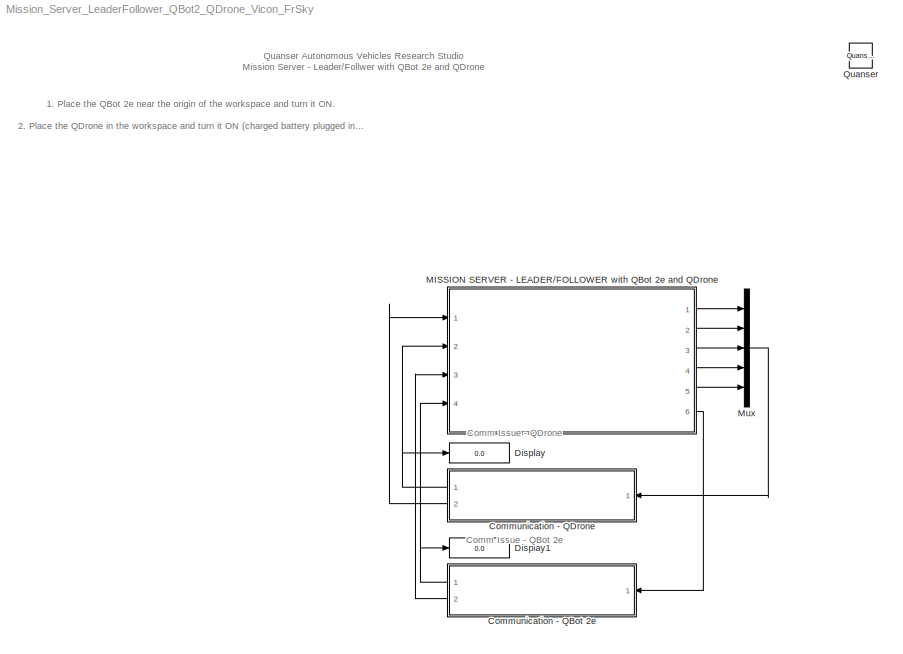
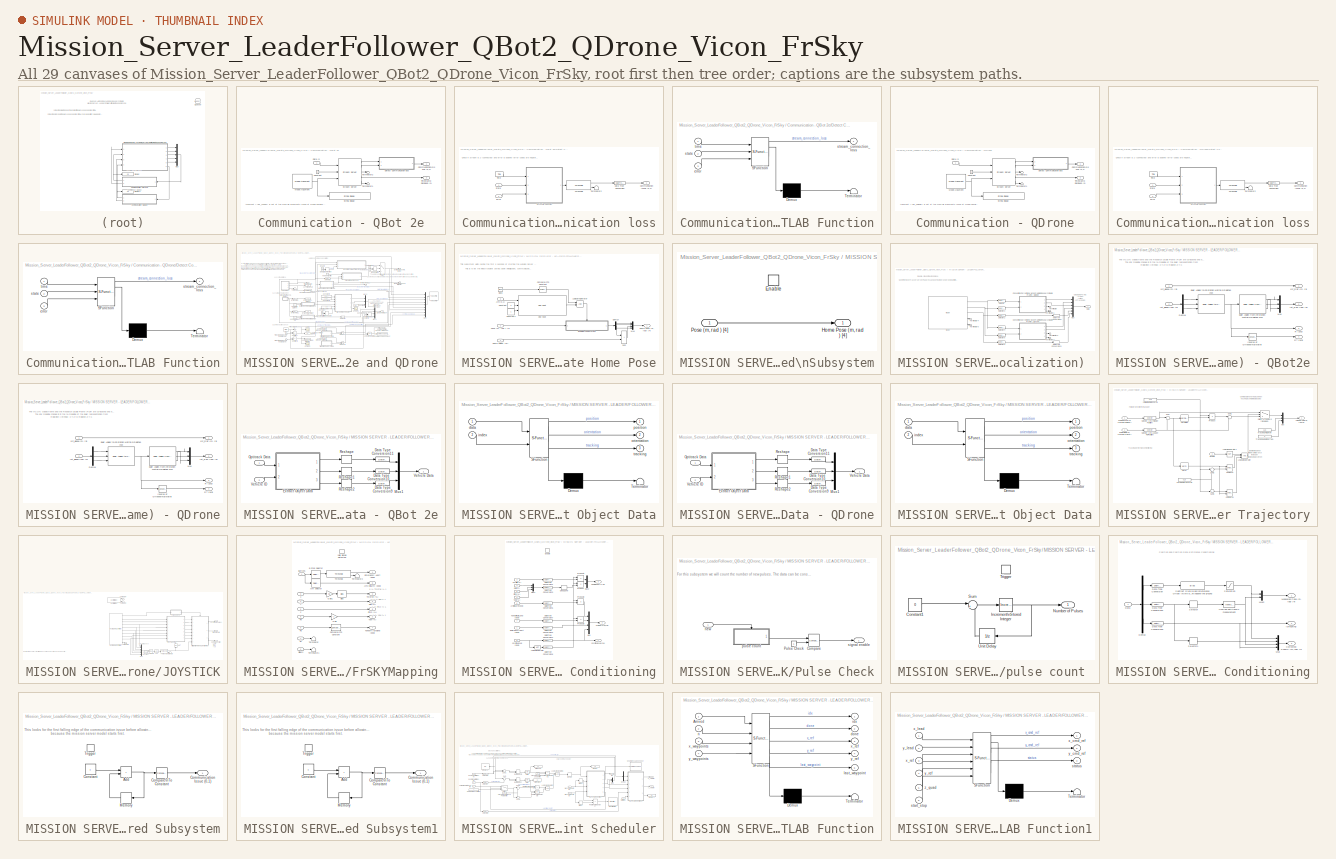
[diagram: thumbnail index - all 29 canvases of the model, root first then tree order]
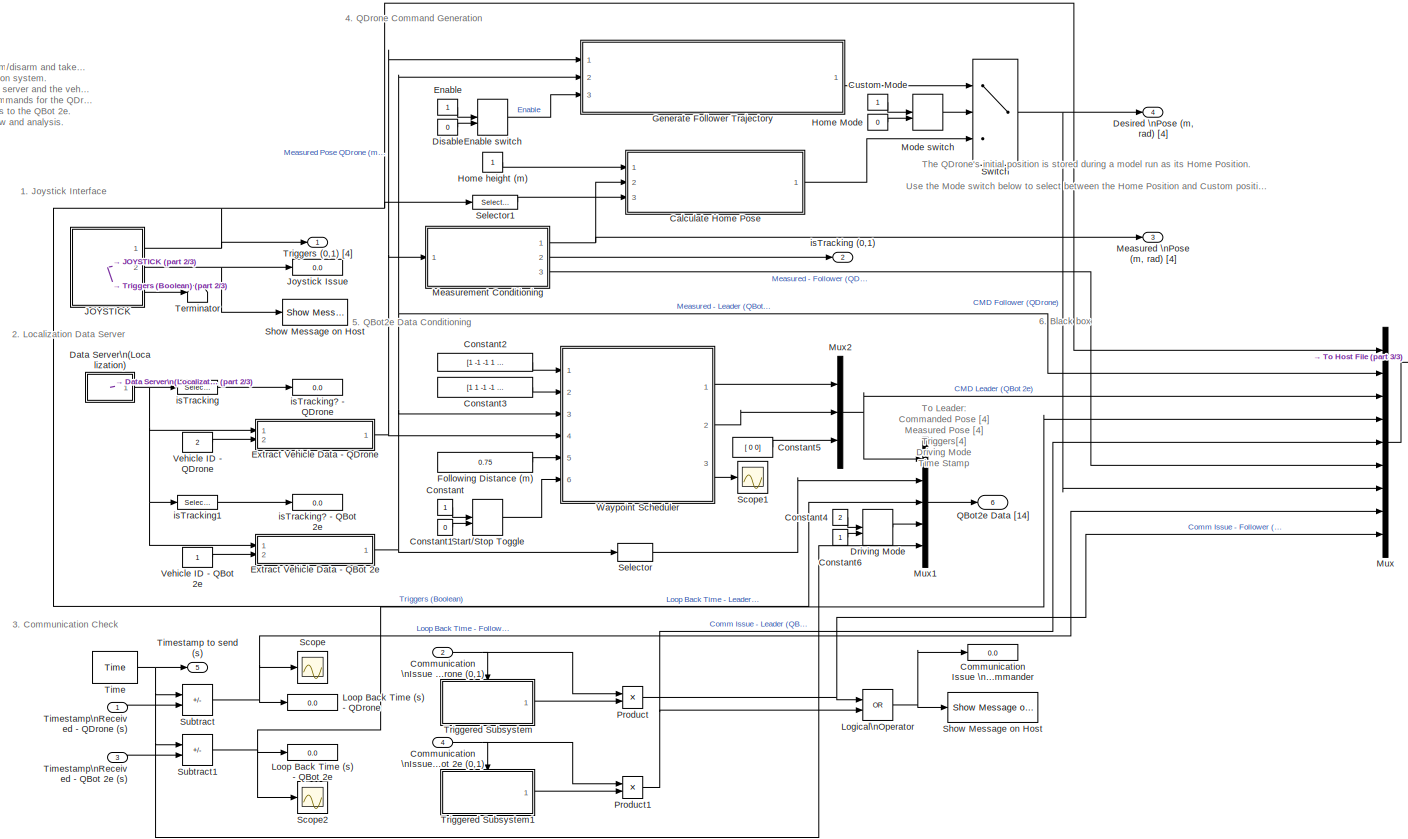
[diagram: MISSION SERVER - LEADER/FOLLOWER with QBot 2e and QDrone - part 1/3, most of the canvas]
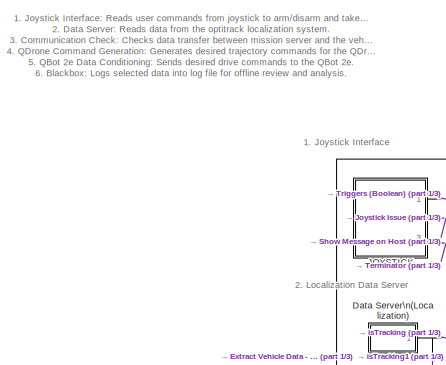
[diagram: MISSION SERVER - LEADER/FOLLOWER with QBot 2e and QDrone - part 2/3, top left region]
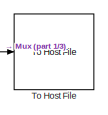
[diagram: MISSION SERVER - LEADER/FOLLOWER with QBot 2e and QDrone - part 3/3, middle right region]
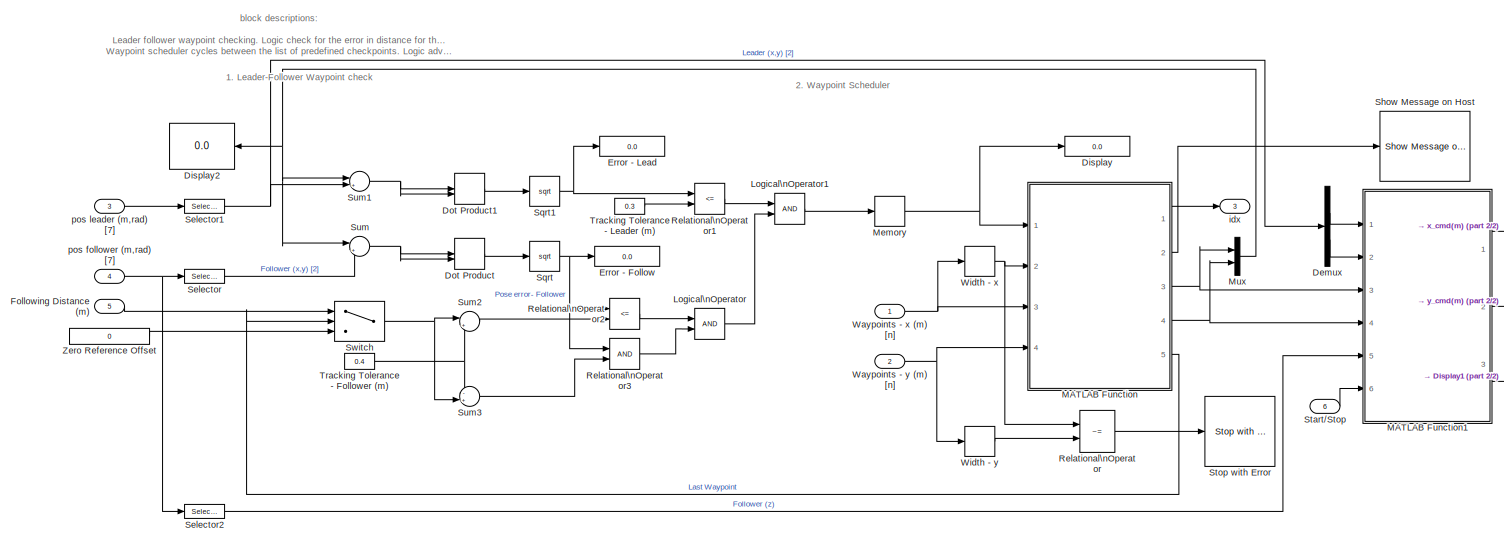
[diagram: MISSION SERVER - LEADER/FOLLOWER with QBot 2e and QDrone/Waypoint Scheduler - part 1/2, most of the canvas]
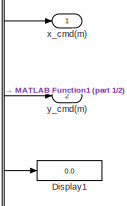
[diagram: MISSION SERVER - LEADER/FOLLOWER with QBot 2e and QDrone/Waypoint Scheduler - part 2/2, middle right region]
MODEL Mission_Server_LeaderFollower_QBot2_QDrone_Vicon_FrSky
KIND model
BLOCK [SubSystem] Communication - QBot 2e
  Ports = [1, 2]
  RequestExecContextInheritance = off
  SID = 5371
BLOCK [Outport] Communication - QBot 2e/Communication\nIssue (0,1)
  SID = 5389
  VectorParamsAs1DForOutWhenUnconnected = off
BLOCK [Constant] Communication - QBot 2e/Constant
  SID = 5373
BLOCK [Inport] Communication - QBot 2e/Data In
  SID = 5372
BLOCK [SubSystem] Communication - QBot 2e/Detect Communication loss
  Ports = [2, 1]
  RequestExecContextInheritance = off
  SID = 5374
BLOCK [Outport] Communication - QBot 2e/Detect Communication loss/Communication Issue (0,1)
  SID = 5382
  VectorParamsAs1DForOutWhenUnconnected = off
BLOCK [DataTypeConversion] Communication - QBot 2e/Detect Communication loss/Data Type Conversion
  RndMeth = Floor
  SID = 5377
  SaturateOnIntegerOverflow = off
BLOCK [Inport] Communication - QBot 2e/Detect Communication loss/Error
  NameLocation = top
  Port = 2
  SID = 5376
BLOCK [SubSystem] Communication - QBot 2e/Detect Communication loss/MATLAB Function
  ErrorFcn = Stateflow.Translate.translate
  PermitHierarchicalResolution = ExplicitOnly
  Ports = [3, 1]
  RequestExecContextInheritance = off
  SFBlockType = MATLAB Function
  SID = 5378
  TreatAsAtomicUnit = on
BLOCK [Demux] Communication - QBot 2e/Detect Communication loss/MATLAB Function/ Demux 
  Outputs = 1
  Ports = [1, 1]
  SID = 5378::104
BLOCK [S-Function] Communication - QBot 2e/Detect Communication loss/MATLAB Function/ SFunction 
  EnableBusSupport = off
  FunctionName = sf_sfun
  PortCounts = [3 2]
  Ports = [3, 2]
  SFcnIsStateOwnerBlock = off
  SFunctionDeploymentMode = off
  SID = 5378::103
  Tag = Stateflow S-Function 4
BLOCK [Terminator] Communication - QBot 2e/Detect Communication loss/MATLAB Function/ Terminator 
  SID = 5378::105
BLOCK [Inport] Communication - QBot 2e/Detect Communication loss/MATLAB Function/error
  Port = 3
  SID = 5378::23
BLOCK [Inport] Communication - QBot 2e/Detect Communication loss/MATLAB Function/state
  Port = 2
  SID = 5378::22
BLOCK [Outport] Communication - QBot 2e/Detect Communication loss/MATLAB Function/stream_connection_loss
  SID = 5378::5
  VectorParamsAs1DForOutWhenUnconnected = off
BLOCK [Inport] Communication - QBot 2e/Detect Communication loss/MATLAB Function/time
  SID = 5378::1
BLOCK [Inport] Communication - QBot 2e/Detect Communication loss/State
  NameLocation = top
  SID = 5375
BLOCK [Terminator] Communication - QBot 2e/Detect Communication loss/Terminator2
  SID = 5379
BLOCK [Reference] Communication - QBot 2e/Detect Communication loss/Threshold  REF=quarc_library/Discontinuities/Threshold
  Ports = [1, 2]
  SID = 5380
  SourceBlock = quarc_library/Discontinuities/Threshold
  SourceProductName = QUARC Targets
  SourceType = Threshold
  duration = 0.1
  operator = >=
  param_src = Specify via dialog
  threshold = 0.5
BLOCK [Reference] Communication - QBot 2e/Detect Communication loss/Time  REF=quarc_library/Sources/Time/Time
  MultiThreadCoSim = auto
  NameLocation = top
  Ports = [0, 1]
  SID = 5381
  SourceBlock = quarc_library/Sources/Time/Time
  SourceProductName = QUARC Targets
  SourceType = Time
  sample_time = qc_get_step_size
  time_source = Wall clock
BLOCK [Reference] Communication - QBot 2e/Model Argument  REF=quarc_library/Sources/Signals/Model Argument
  AttributesFormatString = (-%<argument_name>)
  MultiThreadCoSim = auto
  Ports = [0, 1]
  SID = 5384
  SourceBlock = quarc_library/Sources/Signals/Model Argument
  SourceProductName = QUARC Targets
  SourceType = Model Argument
  argument_name = URI_Leader
  data_type = char
  data_type_mode = Specify via dialog
  default_string = tcpip://localhost:18001
  default_value = 0
  has_value = on
  max_length = 80
  variable_size = off
BLOCK [Reference] Communication - QBot 2e/Stream Server  REF=quarc_library/Communications/Basic/Stream Server
  MultiThreadCoSim = auto
  Ports = [3, 5]
  SID = 5385
  SourceBlock = quarc_library/Communications/Basic/Stream Server
  SourceProductName = QUARC Targets
  SourceType = Stream Server
  active = off
  apply_uri_to_all_configs = off
  byte_order = little endian (Intel - LSB first)
  data_type = Inherited via back propagation
  default_value = [0]
  implementation = Use blocking I/O in a separate thread
  max_dimensions = -1
  optimization = Minimum latency
  receive_buffer_size = 1460
  receive_dimensions = off
  receive_fifo_size = 1000
  receive_options = Receive most recent data
  receive_priority = 0
  sample_time = qc_get_step_size
  send_buffer_size = 1460
  send_dimensions = off
  send_fifo_size = 1000
  send_options = Send most recent data
  send_priority = 0
  type_expr = BusObject
  uri = tcpip://localhost:18877
  uri_source = External input port
BLOCK [Reference] Communication - QBot 2e/String Display   REF=quarc_library/Strings/String Display
  MultiThreadCoSim = auto
  Ports = [1]
  SID = 5386
  SourceBlock = quarc_library/Strings/String Display
  SourceProductName = QUARC Targets
  SourceType = String Display
  alignment = center
  display_mode = Single line
  sample_time = -1
  use_new = off
BLOCK [Terminator] Communication - QBot 2e/Terminator1
  SID = 5387
BLOCK [Terminator] Communication - QBot 2e/Terminator2
  SID = 5388
BLOCK [Outport] Communication - QBot 2e/Timestamp Received (s)
  Port = 2
  SID = 5390
  VectorParamsAs1DForOutWhenUnconnected = off
BLOCK [SubSystem] Communication - QDrone
  Ports = [1, 2]
  RequestExecContextInheritance = off
  SID = 5350
BLOCK [Outport] Communication - QDrone/Communication\nIssue (0,1)
  SID = 5368
  VectorParamsAs1DForOutWhenUnconnected = off
BLOCK [Constant] Communication - QDrone/Constant
  SID = 5352
BLOCK [Inport] Communication - QDrone/Data In
  SID = 5351
BLOCK [SubSystem] Communication - QDrone/Detect Communication loss
  Ports = [2, 1]
  RequestExecContextInheritance = off
  SID = 5353
BLOCK [Outport] Communication - QDrone/Detect Communication loss/Communication Issue (0,1)
  SID = 5361
  VectorParamsAs1DForOutWhenUnconnected = off
BLOCK [DataTypeConversion] Communication - QDrone/Detect Communication loss/Data Type Conversion
  RndMeth = Floor
  SID = 5356
  SaturateOnIntegerOverflow = off
BLOCK [Inport] Communication - QDrone/Detect Communication loss/Error
  NameLocation = top
  Port = 2
  SID = 5355
BLOCK [SubSystem] Communication - QDrone/Detect Communication loss/MATLAB Function
  ErrorFcn = Stateflow.Translate.translate
  PermitHierarchicalResolution = ExplicitOnly
  Ports = [3, 1]
  RequestExecContextInheritance = off
  SFBlockType = MATLAB Function
  SID = 5357
  TreatAsAtomicUnit = on
BLOCK [Demux] Communication - QDrone/Detect Communication loss/MATLAB Function/ Demux 
  Outputs = 1
  Ports = [1, 1]
  SID = 5357::104
BLOCK [S-Function] Communication - QDrone/Detect Communication loss/MATLAB Function/ SFunction 
  EnableBusSupport = off
  FunctionName = sf_sfun
  PortCounts = [3 2]
  Ports = [3, 2]
  SFcnIsStateOwnerBlock = off
  SFunctionDeploymentMode = off
  SID = 5357::103
  Tag = Stateflow S-Function 3
BLOCK [Terminator] Communication - QDrone/Detect Communication loss/MATLAB Function/ Terminator 
  SID = 5357::105
BLOCK [Inport] Communication - QDrone/Detect Communication loss/MATLAB Function/error
  Port = 3
  SID = 5357::23
BLOCK [Inport] Communication - QDrone/Detect Communication loss/MATLAB Function/state
  Port = 2
  SID = 5357::22
BLOCK [Outport] Communication - QDrone/Detect Communication loss/MATLAB Function/stream_connection_loss
  SID = 5357::5
  VectorParamsAs1DForOutWhenUnconnected = off
BLOCK [Inport] Communication - QDrone/Detect Communication loss/MATLAB Function/time
  SID = 5357::1
BLOCK [Inport] Communication - QDrone/Detect Communication loss/State
  NameLocation = top
  SID = 5354
BLOCK [Terminator] Communication - QDrone/Detect Communication loss/Terminator2
  SID = 5358
BLOCK [Reference] Communication - QDrone/Detect Communication loss/Threshold  REF=quarc_library/Discontinuities/Threshold
  Ports = [1, 2]
  SID = 5359
  SourceBlock = quarc_library/Discontinuities/Threshold
  SourceProductName = QUARC Targets
  SourceType = Threshold
  duration = 0.1
  operator = >=
  param_src = Specify via dialog
  threshold = 0.5
BLOCK [Reference] Communication - QDrone/Detect Communication loss/Time  REF=quarc_library/Sources/Time/Time
  MultiThreadCoSim = auto
  NameLocation = top
  Ports = [0, 1]
  SID = 5360
  SourceBlock = quarc_library/Sources/Time/Time
  SourceProductName = QUARC Targets
  SourceType = Time
  sample_time = qc_get_step_size
  time_source = Wall clock
BLOCK [Reference] Communication - QDrone/Model Argument  REF=quarc_library/Sources/Signals/Model Argument
  AttributesFormatString = (-%<argument_name>)
  MultiThreadCoSim = auto
  Ports = [0, 1]
  SID = 5363
  SourceBlock = quarc_library/Sources/Signals/Model Argument
  SourceProductName = QUARC Targets
  SourceType = Model Argument
  argument_name = URI_Follower
  data_type = char
  data_type_mode = Specify via dialog
  default_string = tcpip://localhost:18002
  default_value = 0
  has_value = on
  max_length = 80
  variable_size = off
BLOCK [Reference] Communication - QDrone/Stream Server  REF=quarc_library/Communications/Basic/Stream Server
  MultiThreadCoSim = auto
  Ports = [3, 5]
  SID = 5364
  SourceBlock = quarc_library/Communications/Basic/Stream Server
  SourceProductName = QUARC Targets
  SourceType = Stream Server
  active = off
  apply_uri_to_all_configs = off
  byte_order = little endian (Intel - LSB first)
  data_type = Inherited via back propagation
  default_value = zeros(1,1)
  implementation = Use blocking I/O in a separate thread
  max_dimensions = -1
  optimization = Minimum latency
  receive_buffer_size = 1460
  receive_dimensions = off
  receive_fifo_size = 1000
  receive_options = Receive most recent data
  receive_priority = 0
  sample_time = qc_get_step_size
  send_buffer_size = 1460
  send_dimensions = off
  send_fifo_size = 1000
  send_options = Send most recent data
  send_priority = 0
  type_expr = BusObject
  uri = tcpip://localhost:18877
  uri_source = External input port
BLOCK [Reference] Communication - QDrone/String Display   REF=quarc_library/Strings/String Display
  MultiThreadCoSim = auto
  Ports = [1]
  SID = 5365
  SourceBlock = quarc_library/Strings/String Display
  SourceProductName = QUARC Targets
  SourceType = String Display
  alignment = center
  display_mode = Single line
  sample_time = -1
  use_new = off
BLOCK [Terminator] Communication - QDrone/Terminator1
  SID = 5366
BLOCK [Terminator] Communication - QDrone/Terminator2
  SID = 5367
BLOCK [Outport] Communication - QDrone/Timestamp Received (s)
  Port = 2
  SID = 5369
  VectorParamsAs1DForOutWhenUnconnected = off
BLOCK [Display] Display
  Decimation = 1
  Ports = [1]
  SID = 4490
BLOCK [Display] Display1
  Decimation = 1
  Ports = [1]
  SID = 4815
BLOCK [SubSystem] MISSION SERVER - LEADER//FOLLOWER with QBot 2e and QDrone
  Ports = [4, 6]
  RequestExecContextInheritance = off
  SID = 4279
BLOCK [SubSystem] MISSION SERVER - LEADER//FOLLOWER with QBot 2e and QDrone/Calculate Home Pose
  Ports = [3, 1]
  RequestExecContextInheritance = off
  SID = 5217
BLOCK [Inport] MISSION SERVER - LEADER//FOLLOWER with QBot 2e and QDrone/Calculate Home Pose/Arm(0,1)
  Port = 3
  SID = 5220
BLOCK [Clock] MISSION SERVER - LEADER//FOLLOWER with QBot 2e and QDrone/Calculate Home Pose/Clock
  SID = 5221
BLOCK [Reference] MISSION SERVER - LEADER//FOLLOWER with QBot 2e and QDrone/Calculate Home Pose/Compare\nTo Constant  REF=simulink/Logic and Bit\nOperations/Compare\nTo Constant
  OutDataTypeStr = boolean
  Ports = [1, 1]
  SID = 5222
  SourceBlock = simulink/Logic and Bit\nOperations/Compare\nTo Constant
  SourceProductBaseCode = SL
  SourceType = Compare To Constant
  ZeroCross = on
  const = 5
  relop = >
BLOCK [Constant] MISSION SERVER - LEADER//FOLLOWER with QBot 2e and QDrone/Calculate Home Pose/Constant
  SID = 5223
  Value = 0
BLOCK [Constant] MISSION SERVER - LEADER//FOLLOWER with QBot 2e and QDrone/Calculate Home Pose/Constant1
  SID = 5224
BLOCK [Demux] MISSION SERVER - LEADER//FOLLOWER with QBot 2e and QDrone/Calculate Home Pose/Demux
  Ports = [1, 4]
  SID = 5225
BLOCK [SubSystem] MISSION SERVER - LEADER//FOLLOWER with QBot 2e and QDrone/Calculate Home Pose/Enabled\nSubsystem
  Ports = [1, 1, 1]
  RequestExecContextInheritance = off
  SID = 5226
  TreatAsAtomicUnit = on
BLOCK [EnablePort] MISSION SERVER - LEADER//FOLLOWER with QBot 2e and QDrone/Calculate Home Pose/Enabled\nSubsystem/Enable
  Ports = []
  SID = 5228
BLOCK [Outport] MISSION SERVER - LEADER//FOLLOWER with QBot 2e and QDrone/Calculate Home Pose/Enabled\nSubsystem/Home Pose (m, rad ) [4]
  SID = 5229
  VectorParamsAs1DForOutWhenUnconnected = off
BLOCK [Inport] MISSION SERVER - LEADER//FOLLOWER with QBot 2e and QDrone/Calculate Home Pose/Enabled\nSubsystem/Pose (m, rad ) [4] 
  SID = 5227
BLOCK [Outport] MISSION SERVER - LEADER//FOLLOWER with QBot 2e and QDrone/Calculate Home Pose/Home Pose (m, rad) [4]
  SID = 5234
  VectorParamsAs1DForOutWhenUnconnected = off
BLOCK [Inport] MISSION SERVER - LEADER//FOLLOWER with QBot 2e and QDrone/Calculate Home Pose/Home height (m)
  SID = 5218
BLOCK [Logic] MISSION SERVER - LEADER//FOLLOWER with QBot 2e and QDrone/Calculate Home Pose/Logical\nOperator
  AllPortsSameDT = off
  OutDataTypeStr = boolean
  Ports = [2, 1]
  SID = 5230
BLOCK [Mux] MISSION SERVER - LEADER//FOLLOWER with QBot 2e and QDrone/Calculate Home Pose/Mux
  DisplayOption = bar
  Ports = [4, 1]
  SID = 5231
BLOCK [Reference] MISSION SERVER - LEADER//FOLLOWER with QBot 2e and QDrone/Calculate Home Pose/One Shot  REF=quarc_library/Discontinuities/One Shot
  Ports = [3, 1]
  SID = 5232
  SourceBlock = quarc_library/Discontinuities/One Shot
  SourceProductName = QUARC Targets
  SourceType = One Shot
  pulse_width = 1/qc_get_step_size
  redun_pulse = Ignore extraneous pulse
  trigger_type = Rising edge
  width_source = Specify via dialog
BLOCK [Inport] MISSION SERVER - LEADER//FOLLOWER with QBot 2e and QDrone/Calculate Home Pose/Pose (m, rad ) [4]
  Port = 2
  SID = 5219
BLOCK [Sum] MISSION SERVER - LEADER//FOLLOWER with QBot 2e and QDrone/Calculate Home Pose/Sum
  IconShape = rectangular
  Ports = [2, 1]
  SID = 5233
BLOCK [Display] MISSION SERVER - LEADER//FOLLOWER with QBot 2e and QDrone/Communication Issue \nwith Commander
  Decimation = 1
  Ports = [1]
  SID = 4298
BLOCK [Inport] MISSION SERVER - LEADER//FOLLOWER with QBot 2e and QDrone/Communication \nIssue - QBot 2e (0,1)
  Port = 4
  SID = 4830
BLOCK [Inport] MISSION SERVER - LEADER//FOLLOWER with QBot 2e and QDrone/Communication \nIssue - QDrone (0,1)
  Port = 2
  SID = 4281
BLOCK [Constant] MISSION SERVER - LEADER//FOLLOWER with QBot 2e and QDrone/Constant
  SID = 5098
BLOCK [Constant] MISSION SERVER - LEADER//FOLLOWER with QBot 2e and QDrone/Constant1
  SID = 5099
  Value = 0
BLOCK [Constant] MISSION SERVER - LEADER//FOLLOWER with QBot 2e and QDrone/Constant2
  SID = 4934
  Value = [1 -1 -1 1 0]
BLOCK [Constant] MISSION SERVER - LEADER//FOLLOWER with QBot 2e and QDrone/Constant3
  SID = 4935
  Value = [1 1 -1 -1 0]
BLOCK [Constant] MISSION SERVER - LEADER//FOLLOWER with QBot 2e and QDrone/Constant4
  SID = 5162
  Value = 2
BLOCK [Constant] MISSION SERVER - LEADER//FOLLOWER with QBot 2e and QDrone/Constant5
  SID = 5164
  Value = [ 0 0]
BLOCK [Constant] MISSION SERVER - LEADER//FOLLOWER with QBot 2e and QDrone/Constant6
  SID = 5163
BLOCK [Constant] MISSION SERVER - LEADER//FOLLOWER with QBot 2e and QDrone/Custom Mode
  NameLocation = top
  SID = 4496
BLOCK [SubSystem] MISSION SERVER - LEADER//FOLLOWER with QBot 2e and QDrone/Data Server\n(Localization) 
  Ports = [0, 1]
  RequestExecContextInheritance = off
  SID = 5886
BLOCK [SubSystem] MISSION SERVER - LEADER//FOLLOWER with QBot 2e and QDrone/Data Server\n(Localization) /Convention Correction\n(Vicon Frame to Research Studio Frame) - QBot2e
  NameLocation = top
  Ports = [2, 4]
  RequestExecContextInheritance = off
  SID = 5887
BLOCK [Demux] MISSION SERVER - LEADER//FOLLOWER with QBot 2e and QDrone/Data Server\n(Localization) /Convention Correction\n(Vicon Frame to Research Studio Frame) - QBot2e/Demux
  Outputs = 3
  Ports = [1, 3]
  SID = 5890
BLOCK [Reference] MISSION SERVER - LEADER//FOLLOWER with QBot 2e and QDrone/Data Server\n(Localization) /Convention Correction\n(Vicon Frame to Research Studio Frame) - QBot2e/Euler Angles from\nRotation Matrix\n(Relative ZYX)  REF=quarc_library/Math Operations/Matrices/Euler Angles from\nRotation Matrix
  MultiThreadCoSim = auto
  Ports = [1, 3]
  SID = 5891
  SourceBlock = quarc_library/Math Operations/Matrices/Euler Angles from\nRotation Matrix
  SourceProductName = QUARC Targets
  SourceType = Euler Angles from Rotation Matrix
  menu_order = Relative Z-Y-X
BLOCK [Reference] MISSION SERVER - LEADER//FOLLOWER with QBot 2e and QDrone/Data Server\n(Localization) /Convention Correction\n(Vicon Frame to Research Studio Frame) - QBot2e/Euler Angles to\nRotation Matrix\n(Relative XYZ)  REF=quarc_library/Math Operations/Matrices/Euler Angles to\nRotation Matrix
  MultiThreadCoSim = auto
  Ports = [3, 1]
  SID = 5892
  SourceBlock = quarc_library/Math Operations/Matrices/Euler Angles to\nRotation Matrix
  SourceProductName = QUARC Targets
  SourceType = Euler Angles to Rotation Matrix
  menu_order = Relative X-Y-Z
BLOCK [Math] MISSION SERVER - LEADER//FOLLOWER with QBot 2e and QDrone/Data Server\n(Localization) /Convention Correction\n(Vicon Frame to Research Studio Frame) - QBot2e/Inverse of Orthonormal Matrix
  Operator = transpose
  Ports = [1, 1]
  SID = 5893
  SignedPower = on
BLOCK [Mux] MISSION SERVER - LEADER//FOLLOWER with QBot 2e and QDrone/Data Server\n(Localization) /Convention Correction\n(Vicon Frame to Research Studio Frame) - QBot2e/Mux
  DisplayOption = bar
  Inputs = 3
  Ports = [3, 1]
  SID = 5894
BLOCK [Outport] MISSION SERVER - LEADER//FOLLOWER with QBot 2e and QDrone/Data Server\n(Localization) /Convention Correction\n(Vicon Frame to Research Studio Frame) - QBot2e/R [3x3]
  Port = 3
  SID = 5897
  VectorParamsAs1DForOutWhenUnconnected = off
BLOCK [Outport] MISSION SERVER - LEADER//FOLLOWER with QBot 2e and QDrone/Data Server\n(Localization) /Convention Correction\n(Vicon Frame to Research Studio Frame) - QBot2e/RT [3x3]
  Port = 4
  SID = 5898
  VectorParamsAs1DForOutWhenUnconnected = off
BLOCK [Outport] MISSION SERVER - LEADER//FOLLOWER with QBot 2e and QDrone/Data Server\n(Localization) /Convention Correction\n(Vicon Frame to Research Studio Frame) - QBot2e/rot_RSF (rad) [3]
  Port = 2
  SID = 5896
  VectorParamsAs1DForOutWhenUnconnected = off
BLOCK [Inport] MISSION SERVER - LEADER//FOLLOWER with QBot 2e and QDrone/Data Server\n(Localization) /Convention Correction\n(Vicon Frame to Research Studio Frame) - QBot2e/rot_global (rad) [3]
  Port = 2
  SID = 5889
BLOCK [Outport] MISSION SERVER - LEADER//FOLLOWER with QBot 2e and QDrone/Data Server\n(Localization) /Convention Correction\n(Vicon Frame to Research Studio Frame) - QBot2e/xyz_RSF (m) [3]
  SID = 5895
  VectorParamsAs1DForOutWhenUnconnected = off
BLOCK [Inport] MISSION SERVER - LEADER//FOLLOWER with QBot 2e and QDrone/Data Server\n(Localization) /Convention Correction\n(Vicon Frame to Research Studio Frame) - QBot2e/xyz_global (m) [3]
  SID = 5888
BLOCK [SubSystem] MISSION SERVER - LEADER//FOLLOWER with QBot 2e and QDrone/Data Server\n(Localization) /Convention Correction\n(Vicon Frame to Research Studio Frame) - QDrone
  NameLocation = top
  Ports = [2, 4]
  RequestExecContextInheritance = off
  SID = 5900
BLOCK [Demux] MISSION SERVER - LEADER//FOLLOWER with QBot 2e and QDrone/Data Server\n(Localization) /Convention Correction\n(Vicon Frame to Research Studio Frame) - QDrone/Demux
  Outputs = 3
  Ports = [1, 3]
  SID = 5903
BLOCK [Reference] MISSION SERVER - LEADER//FOLLOWER with QBot 2e and QDrone/Data Server\n(Localization) /Convention Correction\n(Vicon Frame to Research Studio Frame) - QDrone/Euler Angles from\nRotation Matrix\n(Relative ZYX)  REF=quarc_library/Math Operations/Matrices/Euler Angles from\nRotation Matrix
  MultiThreadCoSim = auto
  Ports = [1, 3]
  SID = 5904
  SourceBlock = quarc_library/Math Operations/Matrices/Euler Angles from\nRotation Matrix
  SourceProductName = QUARC Targets
  SourceType = Euler Angles from Rotation Matrix
  menu_order = Relative Z-Y-X
BLOCK [Reference] MISSION SERVER - LEADER//FOLLOWER with QBot 2e and QDrone/Data Server\n(Localization) /Convention Correction\n(Vicon Frame to Research Studio Frame) - QDrone/Euler Angles to\nRotation Matrix\n(Relative XYZ)  REF=quarc_library/Math Operations/Matrices/Euler Angles to\nRotation Matrix
  MultiThreadCoSim = auto
  Ports = [3, 1]
  SID = 5905
  SourceBlock = quarc_library/Math Operations/Matrices/Euler Angles to\nRotation Matrix
  SourceProductName = QUARC Targets
  SourceType = Euler Angles to Rotation Matrix
  menu_order = Relative X-Y-Z
BLOCK [Math] MISSION SERVER - LEADER//FOLLOWER with QBot 2e and QDrone/Data Server\n(Localization) /Convention Correction\n(Vicon Frame to Research Studio Frame) - QDrone/Inverse of Orthonormal Matrix
  Operator = transpose
  Ports = [1, 1]
  SID = 5906
  SignedPower = on
BLOCK [Mux] MISSION SERVER - LEADER//FOLLOWER with QBot 2e and QDrone/Data Server\n(Localization) /Convention Correction\n(Vicon Frame to Research Studio Frame) - QDrone/Mux
  DisplayOption = bar
  Inputs = 3
  Ports = [3, 1]
  SID = 5907
BLOCK [Outport] MISSION SERVER - LEADER//FOLLOWER with QBot 2e and QDrone/Data Server\n(Localization) /Convention Correction\n(Vicon Frame to Research Studio Frame) - QDrone/R [3x3]
  Port = 3
  SID = 5910
  VectorParamsAs1DForOutWhenUnconnected = off
BLOCK [Outport] MISSION SERVER - LEADER//FOLLOWER with QBot 2e and QDrone/Data Server\n(Localization) /Convention Correction\n(Vicon Frame to Research Studio Frame) - QDrone/RT [3x3]
  Port = 4
  SID = 5911
  VectorParamsAs1DForOutWhenUnconnected = off
BLOCK [Outport] MISSION SERVER - LEADER//FOLLOWER with QBot 2e and QDrone/Data Server\n(Localization) /Convention Correction\n(Vicon Frame to Research Studio Frame) - QDrone/rot_RSF (rad) [3]
  Port = 2
  SID = 5909
  VectorParamsAs1DForOutWhenUnconnected = off
BLOCK [Inport] MISSION SERVER - LEADER//FOLLOWER with QBot 2e and QDrone/Data Server\n(Localization) /Convention Correction\n(Vicon Frame to Research Studio Frame) - QDrone/rot_global (rad) [3]
  Port = 2
  SID = 5902
BLOCK [Outport] MISSION SERVER - LEADER//FOLLOWER with QBot 2e and QDrone/Data Server\n(Localization) /Convention Correction\n(Vicon Frame to Research Studio Frame) - QDrone/xyz_RSF (m) [3]
  SID = 5908
  VectorParamsAs1DForOutWhenUnconnected = off
BLOCK [Inport] MISSION SERVER - LEADER//FOLLOWER with QBot 2e and QDrone/Data Server\n(Localization) /Convention Correction\n(Vicon Frame to Research Studio Frame) - QDrone/xyz_global (m) [3]
  SID = 5901
BLOCK [Outport] MISSION SERVER - LEADER//FOLLOWER with QBot 2e and QDrone/Data Server\n(Localization) /Data
  SID = 5929
  VectorParamsAs1DForOutWhenUnconnected = off
BLOCK [DataTypeConversion] MISSION SERVER - LEADER//FOLLOWER with QBot 2e and QDrone/Data Server\n(Localization) /Data Type Conversion2
  RndMeth = Floor
  SID = 5913
  SaturateOnIntegerOverflow = off
BLOCK [DataTypeConversion] MISSION SERVER - LEADER//FOLLOWER with QBot 2e and QDrone/Data Server\n(Localization) /Data Type Conversion3
  RndMeth = Floor
  SID = 5914
  SaturateOnIntegerOverflow = off
BLOCK [Mux] MISSION SERVER - LEADER//FOLLOWER with QBot 2e and QDrone/Data Server\n(Localization) /Mux
  DisplayOption = bar
  Inputs = 6
  Ports = [6, 1]
  SID = 5915
BLOCK [Selector] MISSION SERVER - LEADER//FOLLOWER with QBot 2e and QDrone/Data Server\n(Localization) /Selector
  IndexOptions = Index vector (dialog)
  Indices = [1:3]
  InputPortWidth = 6
  OutputSizes = 1
  Ports = [1, 1]
  SID = 5916
BLOCK [Selector] MISSION SERVER - LEADER//FOLLOWER with QBot 2e and QDrone/Data Server\n(Localization) /Selector1
  IndexOptions = Index vector (dialog)
  Indices = [1:3]
  InputPortWidth = 6
  OutputSizes = 1
  Ports = [1, 1]
  SID = 5917
BLOCK [Selector] MISSION SERVER - LEADER//FOLLOWER with QBot 2e and QDrone/Data Server\n(Localization) /Selector2
  IndexOptions = Index vector (dialog)
  Indices = [1]
  InputPortWidth = 2
  OutputSizes = 1
  Ports = [1, 1]
  SID = 5918
BLOCK [Selector] MISSION SERVER - LEADER//FOLLOWER with QBot 2e and QDrone/Data Server\n(Localization) /Selector3
  IndexOptions = Index vector (dialog)
  Indices = [2]
  InputPortWidth = 2
  OutputSizes = 1
  Ports = [1, 1]
  SID = 5919
BLOCK [Selector] MISSION SERVER - LEADER//FOLLOWER with QBot 2e and QDrone/Data Server\n(Localization) /Selector4
  IndexOptions = Index vector (dialog)
  Indices = [4:6]
  InputPortWidth = 6
  OutputSizes = 1
  Ports = [1, 1]
  SID = 5920
BLOCK [Selector] MISSION SERVER - LEADER//FOLLOWER with QBot 2e and QDrone/Data Server\n(Localization) /Selector5
  IndexOptions = Index vector (dialog)
  Indices = [4:6]
  InputPortWidth = 6
  OutputSizes = 1
  Ports = [1, 1]
  SID = 5921
BLOCK [Terminator] MISSION SERVER - LEADER//FOLLOWER with QBot 2e and QDrone/Data Server\n(Localization) /Terminator
  SID = 5922
BLOCK [Terminator] MISSION SERVER - LEADER//FOLLOWER with QBot 2e and QDrone/Data Server\n(Localization) /Terminator1
  SID = 5923
BLOCK [Terminator] MISSION SERVER - LEADER//FOLLOWER with QBot 2e and QDrone/Data Server\n(Localization) /Terminator2
  SID = 5924
BLOCK [Terminator] MISSION SERVER - LEADER//FOLLOWER with QBot 2e and QDrone/Data Server\n(Localization) /Terminator3
  SID = 5925
BLOCK [Terminator] MISSION SERVER - LEADER//FOLLOWER with QBot 2e and QDrone/Data Server\n(Localization) /Terminator4
  SID = 5926
BLOCK [Terminator] MISSION SERVER - LEADER//FOLLOWER with QBot 2e and QDrone/Data Server\n(Localization) /Terminator5
  SID = 5927
BLOCK [Reference] MISSION SERVER - LEADER//FOLLOWER with QBot 2e and QDrone/Data Server\n(Localization) /Vicon  REF=quarc_library/Devices/Third-Party/Vicon/Vicon
  MultiThreadCoSim = auto
  Ports = [0, 5]
  SID = 5928
  SourceBlock = quarc_library/Devices/Third-Party/Vicon/Vicon
  SourceProductName = QUARC Targets
  SourceType = Vicon
  active = on
  hostname = localhost:801
  marker_list = \\0
  num_markers = 0
  num_segments = 2
  sample_time = qc_get_step_size
  segment_list = ObjectName.ObjectName<path>
  stream_mode = 2
  unlabeled_markers = []
BLOCK [Outport] MISSION SERVER - LEADER//FOLLOWER with QBot 2e and QDrone/Desired \nPose (m, rad) [4]
  NameLocation = top
  Port = 4
  SID = 4480
  VectorParamsAs1DForOutWhenUnconnected = off
BLOCK [Constant] MISSION SERVER - LEADER//FOLLOWER with QBot 2e and QDrone/Disable
  SID = 4675
  Value = 0
BLOCK [ManualSwitch] MISSION SERVER - LEADER//FOLLOWER with QBot 2e and QDrone/Driving Mode
  CurrentSetting = 0
  SID = 5161
BLOCK [Constant] MISSION SERVER - LEADER//FOLLOWER with QBot 2e and QDrone/Enable
  NameLocation = top
  SID = 4676
BLOCK [ManualSwitch] MISSION SERVER - LEADER//FOLLOWER with QBot 2e and QDrone/Enable switch
  CurrentSetting = 0
  NameLocation = top
  SID = 4677
BLOCK [SubSystem] MISSION SERVER - LEADER//FOLLOWER with QBot 2e and QDrone/Extract Vehicle Data - QBot 2e
  Ports = [2, 1]
  RequestExecContextInheritance = off
  SID = 4744
BLOCK [DataTypeConversion] MISSION SERVER - LEADER//FOLLOWER with QBot 2e and QDrone/Extract Vehicle Data - QBot 2e/Data Type Conversion10
  RndMeth = Floor
  SID = 4747
  SaturateOnIntegerOverflow = off
BLOCK [DataTypeConversion] MISSION SERVER - LEADER//FOLLOWER with QBot 2e and QDrone/Extract Vehicle Data - QBot 2e/Data Type Conversion11
  RndMeth = Floor
  SID = 4748
  SaturateOnIntegerOverflow = off
BLOCK [DataTypeConversion] MISSION SERVER - LEADER//FOLLOWER with QBot 2e and QDrone/Extract Vehicle Data - QBot 2e/Data Type Conversion9
  RndMeth = Floor
  SID = 4749
  SaturateOnIntegerOverflow = off
BLOCK [SubSystem] MISSION SERVER - LEADER//FOLLOWER with QBot 2e and QDrone/Extract Vehicle Data - QBot 2e/Extract Object Data
  ErrorFcn = Stateflow.Translate.translate
  PermitHierarchicalResolution = ExplicitOnly
  Ports = [2, 3]
  RequestExecContextInheritance = off
  SFBlockType = MATLAB Function
  SID = 4750
  TreatAsAtomicUnit = on
BLOCK [Demux] MISSION SERVER - LEADER//FOLLOWER with QBot 2e and QDrone/Extract Vehicle Data - QBot 2e/Extract Object Data/ Demux 
  Outputs = 1
  Ports = [1, 1]
  SID = 4750::80
BLOCK [S-Function] MISSION SERVER - LEADER//FOLLOWER with QBot 2e and QDrone/Extract Vehicle Data - QBot 2e/Extract Object Data/ SFunction 
  EnableBusSupport = off
  FunctionName = sf_sfun
  PortCounts = [2 4]
  Ports = [2, 4]
  SFcnIsStateOwnerBlock = off
  SFunctionDeploymentMode = off
  SID = 4750::79
  Tag = Stateflow S-Function 1
BLOCK [Terminator] MISSION SERVER - LEADER//FOLLOWER with QBot 2e and QDrone/Extract Vehicle Data - QBot 2e/Extract Object Data/ Terminator 
  SID = 4750::81
BLOCK [Inport] MISSION SERVER - LEADER//FOLLOWER with QBot 2e and QDrone/Extract Vehicle Data - QBot 2e/Extract Object Data/data
  SID = 4750::1
BLOCK [Inport] MISSION SERVER - LEADER//FOLLOWER with QBot 2e and QDrone/Extract Vehicle Data - QBot 2e/Extract Object Data/index
  Port = 2
  SID = 4750::19
BLOCK [Outport] MISSION SERVER - LEADER//FOLLOWER with QBot 2e and QDrone/Extract Vehicle Data - QBot 2e/Extract Object Data/orientation
  Port = 2
  SID = 4750::21
  VectorParamsAs1DForOutWhenUnconnected = off
BLOCK [Outport] MISSION SERVER - LEADER//FOLLOWER with QBot 2e and QDrone/Extract Vehicle Data - QBot 2e/Extract Object Data/position
  SID = 4750::5
  VectorParamsAs1DForOutWhenUnconnected = off
BLOCK [Outport] MISSION SERVER - LEADER//FOLLOWER with QBot 2e and QDrone/Extract Vehicle Data - QBot 2e/Extract Object Data/tracking
  Port = 3
  SID = 4750::20
  VectorParamsAs1DForOutWhenUnconnected = off
BLOCK [Mux] MISSION SERVER - LEADER//FOLLOWER with QBot 2e and QDrone/Extract Vehicle Data - QBot 2e/Mux1
  DisplayOption = bar
  Inputs = 3
  Ports = [3, 1]
  SID = 4751
BLOCK [Inport] MISSION SERVER - LEADER//FOLLOWER with QBot 2e and QDrone/Extract Vehicle Data - QBot 2e/Optitrack Data
  SID = 4745
BLOCK [Reshape] MISSION SERVER - LEADER//FOLLOWER with QBot 2e and QDrone/Extract Vehicle Data - QBot 2e/Reshape
  Ports = [1, 1]
  SID = 4752
BLOCK [Reshape] MISSION SERVER - LEADER//FOLLOWER with QBot 2e and QDrone/Extract Vehicle Data - QBot 2e/Reshape1
  Ports = [1, 1]
  SID = 4753
BLOCK [Reshape] MISSION SERVER - LEADER//FOLLOWER with QBot 2e and QDrone/Extract Vehicle Data - QBot 2e/Reshape2
  Ports = [1, 1]
  SID = 4754
BLOCK [Outport] MISSION SERVER - LEADER//FOLLOWER with QBot 2e and QDrone/Extract Vehicle Data - QBot 2e/Vehicle Data
  SID = 4755
  VectorParamsAs1DForOutWhenUnconnected = off
BLOCK [Inport] MISSION SERVER - LEADER//FOLLOWER with QBot 2e and QDrone/Extract Vehicle Data - QBot 2e/Vehicle ID
  Port = 2
  SID = 4746
BLOCK [SubSystem] MISSION SERVER - LEADER//FOLLOWER with QBot 2e and QDrone/Extract Vehicle Data - QDrone
  Ports = [2, 1]
  RequestExecContextInheritance = off
  SID = 5176
BLOCK [DataTypeConversion] MISSION SERVER - LEADER//FOLLOWER with QBot 2e and QDrone/Extract Vehicle Data - QDrone/Data Type Conversion10
  RndMeth = Floor
  SID = 5179
  SaturateOnIntegerOverflow = off
BLOCK [DataTypeConversion] MISSION SERVER - LEADER//FOLLOWER with QBot 2e and QDrone/Extract Vehicle Data - QDrone/Data Type Conversion11
  RndMeth = Floor
  SID = 5180
  SaturateOnIntegerOverflow = off
BLOCK [DataTypeConversion] MISSION SERVER - LEADER//FOLLOWER with QBot 2e and QDrone/Extract Vehicle Data - QDrone/Data Type Conversion9
  RndMeth = Floor
  SID = 5181
  SaturateOnIntegerOverflow = off
BLOCK [SubSystem] MISSION SERVER - LEADER//FOLLOWER with QBot 2e and QDrone/Extract Vehicle Data - QDrone/Extract Object Data
  ErrorFcn = Stateflow.Translate.translate
  PermitHierarchicalResolution = ExplicitOnly
  Ports = [2, 3]
  RequestExecContextInheritance = off
  SFBlockType = MATLAB Function
  SID = 5182
  TreatAsAtomicUnit = on
BLOCK [Demux] MISSION SERVER - LEADER//FOLLOWER with QBot 2e and QDrone/Extract Vehicle Data - QDrone/Extract Object Data/ Demux 
  Outputs = 1
  Ports = [1, 1]
  SID = 5182::80
BLOCK [S-Function] MISSION SERVER - LEADER//FOLLOWER with QBot 2e and QDrone/Extract Vehicle Data - QDrone/Extract Object Data/ SFunction 
  EnableBusSupport = off
  FunctionName = sf_sfun
  PortCounts = [2 4]
  Ports = [2, 4]
  SFcnIsStateOwnerBlock = off
  SFunctionDeploymentMode = off
  SID = 5182::79
  Tag = Stateflow S-Function 2
BLOCK [Terminator] MISSION SERVER - LEADER//FOLLOWER with QBot 2e and QDrone/Extract Vehicle Data - QDrone/Extract Object Data/ Terminator 
  SID = 5182::81
BLOCK [Inport] MISSION SERVER - LEADER//FOLLOWER with QBot 2e and QDrone/Extract Vehicle Data - QDrone/Extract Object Data/data
  SID = 5182::1
BLOCK [Inport] MISSION SERVER - LEADER//FOLLOWER with QBot 2e and QDrone/Extract Vehicle Data - QDrone/Extract Object Data/index
  Port = 2
  SID = 5182::19
BLOCK [Outport] MISSION SERVER - LEADER//FOLLOWER with QBot 2e and QDrone/Extract Vehicle Data - QDrone/Extract Object Data/orientation
  Port = 2
  SID = 5182::21
  VectorParamsAs1DForOutWhenUnconnected = off
BLOCK [Outport] MISSION SERVER - LEADER//FOLLOWER with QBot 2e and QDrone/Extract Vehicle Data - QDrone/Extract Object Data/position
  SID = 5182::5
  VectorParamsAs1DForOutWhenUnconnected = off
BLOCK [Outport] MISSION SERVER - LEADER//FOLLOWER with QBot 2e and QDrone/Extract Vehicle Data - QDrone/Extract Object Data/tracking
  Port = 3
  SID = 5182::20
  VectorParamsAs1DForOutWhenUnconnected = off
BLOCK [Mux] MISSION SERVER - LEADER//FOLLOWER with QBot 2e and QDrone/Extract Vehicle Data - QDrone/Mux1
  DisplayOption = bar
  Inputs = 3
  Ports = [3, 1]
  SID = 5183
BLOCK [Inport] MISSION SERVER - LEADER//FOLLOWER with QBot 2e and QDrone/Extract Vehicle Data - QDrone/Optitrack Data
  SID = 5177
BLOCK [Reshape] MISSION SERVER - LEADER//FOLLOWER with QBot 2e and QDrone/Extract Vehicle Data - QDrone/Reshape
  Ports = [1, 1]
  SID = 5184
BLOCK [Reshape] MISSION SERVER - LEADER//FOLLOWER with QBot 2e and QDrone/Extract Vehicle Data - QDrone/Reshape1
  Ports = [1, 1]
  SID = 5185
BLOCK [Reshape] MISSION SERVER - LEADER//FOLLOWER with QBot 2e and QDrone/Extract Vehicle Data - QDrone/Reshape2
  Ports = [1, 1]
  SID = 5186
BLOCK [Outport] MISSION SERVER - LEADER//FOLLOWER with QBot 2e and QDrone/Extract Vehicle Data - QDrone/Vehicle Data
  SID = 5187
  VectorParamsAs1DForOutWhenUnconnected = off
BLOCK [Inport] MISSION SERVER - LEADER//FOLLOWER with QBot 2e and QDrone/Extract Vehicle Data - QDrone/Vehicle ID
  Port = 2
  SID = 5178
BLOCK [Constant] MISSION SERVER - LEADER//FOLLOWER with QBot 2e and QDrone/Following Distance (m)
  SID = 4937
  Value = 0.75
BLOCK [SubSystem] MISSION SERVER - LEADER//FOLLOWER with QBot 2e and QDrone/Generate Follower Trajectory
  Ports = [3, 1]
  RequestExecContextInheritance = off
  SID = 4785
BLOCK [Reference] MISSION SERVER - LEADER//FOLLOWER with QBot 2e and QDrone/Generate Follower Trajectory/Compare  REF=quarc_library/Logic Operations/Compare
  MultiThreadCoSim = auto
  Ports = [2, 1]
  SID = 4804
  SourceBlock = quarc_library/Logic Operations/Compare
  SourceProductName = QUARC Targets
  SourceType = Compare
  operator = <=
  output_data_type = boolean
BLOCK [Reference] MISSION SERVER - LEADER//FOLLOWER with QBot 2e and QDrone/Generate Follower Trajectory/Compare1  REF=quarc_library/Logic Operations/Compare
  MultiThreadCoSim = auto
  Ports = [2, 1]
  SID = 4805
  SourceBlock = quarc_library/Logic Operations/Compare
  SourceProductName = QUARC Targets
  SourceType = Compare
  operator = >=
  output_data_type = boolean
BLOCK [Inport] MISSION SERVER - LEADER//FOLLOWER with QBot 2e and QDrone/Generate Follower Trajectory/Enable
  Port = 3
  SID = 4797
BLOCK [Outport] MISSION SERVER - LEADER//FOLLOWER with QBot 2e and QDrone/Generate Follower Trajectory/Follower CMD (m, rad) [4]
  SID = 4787
  VectorParamsAs1DForOutWhenUnconnected = off
BLOCK [Constant] MISSION SERVER - LEADER//FOLLOWER with QBot 2e and QDrone/Generate Follower Trajectory/Following Distance (m)
  NameLocation = top
  SID = 4796
  Value = 0.15
BLOCK [Logic] MISSION SERVER - LEADER//FOLLOWER with QBot 2e and QDrone/Generate Follower Trajectory/Logical\nOperator
  AllPortsSameDT = off
  Inputs = 3
  OutDataTypeStr = boolean
  Ports = [3, 1]
  SID = 4809
BLOCK [Logic] MISSION SERVER - LEADER//FOLLOWER with QBot 2e and QDrone/Generate Follower Trajectory/Logical\nOperator1
  AllPortsSameDT = off
  Inputs = 1
  Operator = NOT
  OutDataTypeStr = boolean
  Ports = [1, 1]
  SID = 4810
BLOCK [Mux] MISSION SERVER - LEADER//FOLLOWER with QBot 2e and QDrone/Generate Follower Trajectory/Mux
  DisplayOption = bar
  Inputs = 3
  Ports = [3, 1]
  SID = 4800
BLOCK [Reference] MISSION SERVER - LEADER//FOLLOWER with QBot 2e and QDrone/Generate Follower Trajectory/Norm  REF=quarc_library/Math Operations/Vectors/Norm
  Ports = [1, 1]
  SID = 4803
  SourceBlock = quarc_library/Math Operations/Vectors/Norm
  SourceProductName = QUARC Targets
  SourceType = Norm
BLOCK [Reference] MISSION SERVER - LEADER//FOLLOWER with QBot 2e and QDrone/Generate Follower Trajectory/Normalize  REF=quarc_library/Math Operations/Vectors/Normalize
  Ports = [1, 1]
  SID = 4789
  SourceBlock = quarc_library/Math Operations/Vectors/Normalize
  SourceProductName = QUARC Targets
  SourceType = Normalize
BLOCK [Inport] MISSION SERVER - LEADER//FOLLOWER with QBot 2e and QDrone/Generate Follower Trajectory/POSE QBot 2 (m, rad) [7]\n(Leader)
  Port = 2
  SID = 4788
BLOCK [Inport] MISSION SERVER - LEADER//FOLLOWER with QBot 2e and QDrone/Generate Follower Trajectory/POSE QDrone (m, rad) [7]\n(Follower)
  SID = 4786
BLOCK [Product] MISSION SERVER - LEADER//FOLLOWER with QBot 2e and QDrone/Generate Follower Trajectory/Product
  Ports = [2, 1]
  SID = 4794
BLOCK [Selector] MISSION SERVER - LEADER//FOLLOWER with QBot 2e and QDrone/Generate Follower Trajectory/Selector - xy\n(Follower Position)
  IndexOptions = Index vector (dialog)
  Indices = [1 2]
  InputPortWidth = 7
  OutputSizes = 1
  Ports = [1, 1]
  SID = 4791
BLOCK [Selector] MISSION SERVER - LEADER//FOLLOWER with QBot 2e and QDrone/Generate Follower Trajectory/Selector - xy\n(Leader Ref Position)
  IndexOptions = Index vector (dialog)
  Indices = [1 2]
  InputPortWidth = 7
  OutputSizes = 1
  Ports = [1, 1]
  SID = 4792
BLOCK [Sum] MISSION SERVER - LEADER//FOLLOWER with QBot 2e and QDrone/Generate Follower Trajectory/Sum
  Inputs = |+-
  Ports = [2, 1]
  SID = 4790
BLOCK [Sum] MISSION SERVER - LEADER//FOLLOWER with QBot 2e and QDrone/Generate Follower Trajectory/Sum1
  Inputs = |++
  Ports = [2, 1]
  SID = 4799
BLOCK [Sum] MISSION SERVER - LEADER//FOLLOWER with QBot 2e and QDrone/Generate Follower Trajectory/Sum2
  Inputs = |++
  Ports = [2, 1]
  SID = 4806
BLOCK [Sum] MISSION SERVER - LEADER//FOLLOWER with QBot 2e and QDrone/Generate Follower Trajectory/Sum3
  Inputs = -+|
  Ports = [2, 1]
  SID = 4807
BLOCK [Switch] MISSION SERVER - LEADER//FOLLOWER with QBot 2e and QDrone/Generate Follower Trajectory/Switch - Arrived\n(or disabled)
  Criteria = u2 > Threshold
  InputSameDT = off
  SID = 4802
  SaturateOnIntegerOverflow = off
  Threshold = 0.5
BLOCK [Constant] MISSION SERVER - LEADER//FOLLOWER with QBot 2e and QDrone/Generate Follower Trajectory/Target Tolerance (m)
  NameLocation = top
  SID = 4808
  Value = 0.15
BLOCK [Constant] MISSION SERVER - LEADER//FOLLOWER with QBot 2e and QDrone/Generate Follower Trajectory/Tracking Heading (rad)
  NameLocation = top
  SID = 4801
  Value = 0
BLOCK [Constant] MISSION SERVER - LEADER//FOLLOWER with QBot 2e and QDrone/Generate Follower Trajectory/Tracking Height (m)
  NameLocation = top
  SID = 4798
  Value = 1.25
BLOCK [Constant] MISSION SERVER - LEADER//FOLLOWER with QBot 2e and QDrone/Home Mode
  SID = 4345
  Value = 0
BLOCK [Constant] MISSION SERVER - LEADER//FOLLOWER with QBot 2e and QDrone/Home height (m)
  SID = 4346
BLOCK [SubSystem] MISSION SERVER - LEADER//FOLLOWER with QBot 2e and QDrone/JOYSTICK
  Ports = [0, 3]
  RequestExecContextInheritance = off
  SID = 5793
BLOCK [Logic] MISSION SERVER - LEADER//FOLLOWER with QBot 2e and QDrone/JOYSTICK/AND
  AllPortsSameDT = off
  Inputs = 1
  OutDataTypeStr = boolean
  Ports = [1, 1]
  SID = 5794
BLOCK [Outport] MISSION SERVER - LEADER//FOLLOWER with QBot 2e and QDrone/JOYSTICK/Commands (%) [4]
  Port = 3
  SID = 5881
  VectorParamsAs1DForOutWhenUnconnected = off
BLOCK [Reference] MISSION SERVER - LEADER//FOLLOWER with QBot 2e and QDrone/JOYSTICK/Compare  REF=quarc_library/Logic Operations/Compare
  MultiThreadCoSim = auto
  Ports = [2, 1]
  SID = 5795
  SourceBlock = quarc_library/Logic Operations/Compare
  SourceProductName = QUARC Targets
  SourceType = Compare
  operator = ==
  output_data_type = boolean
BLOCK [Constant] MISSION SERVER - LEADER//FOLLOWER with QBot 2e and QDrone/JOYSTICK/Constant
  SID = 5796
  Value = -1*ones(1,6)
BLOCK [SubSystem] MISSION SERVER - LEADER//FOLLOWER with QBot 2e and QDrone/JOYSTICK/FrSKYMapping
  NameLocation = top
  Ports = [8, 7, 1]
  RequestExecContextInheritance = off
  SID = 5797
BLOCK [Selector] MISSION SERVER - LEADER//FOLLOWER with QBot 2e and QDrone/JOYSTICK/FrSKYMapping/Arm selector
  IndexOptions = Index vector (dialog)
  Indices = [2]
  InputPortWidth = 32
  OutputSizes = 1
  Ports = [1, 1]
  SID = 5807
BLOCK [Outport] MISSION SERVER - LEADER//FOLLOWER with QBot 2e and QDrone/JOYSTICK/FrSKYMapping/Arm//Disarm (bool) 
  Port = 6
  SID = 5822
  VectorParamsAs1DForOutWhenUnconnected = off
BLOCK [Bias] MISSION SERVER - LEADER//FOLLOWER with QBot 2e and QDrone/JOYSTICK/FrSKYMapping/Bias
  Bias = 0.5
  SID = 5808
  SaturateOnIntegerOverflow = off
BLOCK [Inport] MISSION SERVER - LEADER//FOLLOWER with QBot 2e and QDrone/JOYSTICK/FrSKYMapping/Buttons
  SID = 5798
BLOCK [Reference] MISSION SERVER - LEADER//FOLLOWER with QBot 2e and QDrone/JOYSTICK/FrSKYMapping/Compare\nTo Constant  REF=simulink/Logic and Bit\nOperations/Compare\nTo Constant
  OutDataTypeStr = boolean
  Ports = [1, 1]
  SID = 5809
  SourceBlock = simulink/Logic and Bit\nOperations/Compare\nTo Constant
  SourceProductBaseCode = SL
  SourceType = Compare To Constant
  ZeroCross = on
  const = -0.5
  relop = >=
BLOCK [Selector] MISSION SERVER - LEADER//FOLLOWER with QBot 2e and QDrone/JOYSTICK/FrSKYMapping/E-Stop Selector
  IndexOptions = Index vector (dialog)
  Indices = [1]
  InputPortWidth = 32
  NameLocation = top
  OutputSizes = 1
  Ports = [1, 1]
  SID = 5810
BLOCK [Outport] MISSION SERVER - LEADER//FOLLOWER with QBot 2e and QDrone/JOYSTICK/FrSKYMapping/Emergency Abort (bool)
  SID = 5817
  VectorParamsAs1DForOutWhenUnconnected = off
BLOCK [Gain] MISSION SERVER - LEADER//FOLLOWER with QBot 2e and QDrone/JOYSTICK/FrSKYMapping/Gain
  Gain = -1
  SID = 5811
BLOCK [Gain] MISSION SERVER - LEADER//FOLLOWER with QBot 2e and QDrone/JOYSTICK/FrSKYMapping/Gain1
  Gain = 0.5
  SID = 5812
BLOCK [Outport] MISSION SERVER - LEADER//FOLLOWER with QBot 2e and QDrone/JOYSTICK/FrSKYMapping/Pitch (%)
  Port = 5
  SID = 5821
  VectorParamsAs1DForOutWhenUnconnected = off
BLOCK [Outport] MISSION SERVER - LEADER//FOLLOWER with QBot 2e and QDrone/JOYSTICK/FrSKYMapping/Roll (%)
  Port = 4
  SID = 5820
  VectorParamsAs1DForOutWhenUnconnected = off
BLOCK [Inport] MISSION SERVER - LEADER//FOLLOWER with QBot 2e and QDrone/JOYSTICK/FrSKYMapping/Rx
  Port = 6
  SID = 5803
BLOCK [Inport] MISSION SERVER - LEADER//FOLLOWER with QBot 2e and QDrone/JOYSTICK/FrSKYMapping/Ry
  Port = 7
  SID = 5804
BLOCK [Inport] MISSION SERVER - LEADER//FOLLOWER with QBot 2e and QDrone/JOYSTICK/FrSKYMapping/Rz
  Port = 8
  SID = 5805
BLOCK [Inport] MISSION SERVER - LEADER//FOLLOWER with QBot 2e and QDrone/JOYSTICK/FrSKYMapping/Sliders
  Port = 2
  SID = 5799
BLOCK [Outport] MISSION SERVER - LEADER//FOLLOWER with QBot 2e and QDrone/JOYSTICK/FrSKYMapping/Takeoff//Autoland (bool)
  Port = 7
  SID = 5823
  VectorParamsAs1DForOutWhenUnconnected = off
BLOCK [Terminator] MISSION SERVER - LEADER//FOLLOWER with QBot 2e and QDrone/JOYSTICK/FrSKYMapping/Terminator
  SID = 5813
BLOCK [Terminator] MISSION SERVER - LEADER//FOLLOWER with QBot 2e and QDrone/JOYSTICK/FrSKYMapping/Terminator1
  SID = 5814
BLOCK [Terminator] MISSION SERVER - LEADER//FOLLOWER with QBot 2e and QDrone/JOYSTICK/FrSKYMapping/Terminator2
  SID = 5815
BLOCK [Reference] MISSION SERVER - LEADER//FOLLOWER with QBot 2e and QDrone/JOYSTICK/FrSKYMapping/Threshold  REF=quarc_library/Discontinuities/Threshold
  Ports = [1, 2]
  SID = 5816
  SourceBlock = quarc_library/Discontinuities/Threshold
  SourceProductName = QUARC Targets
  SourceType = Threshold
  duration = 0.2
  operator = >=
  param_src = Specify via dialog
  threshold = 0.5
BLOCK [Outport] MISSION SERVER - LEADER//FOLLOWER with QBot 2e and QDrone/JOYSTICK/FrSKYMapping/Throttle (%)
  Port = 3
  SID = 5819
  VectorParamsAs1DForOutWhenUnconnected = off
BLOCK [EnablePort] MISSION SERVER - LEADER//FOLLOWER with QBot 2e and QDrone/JOYSTICK/FrSKYMapping/Valid Signals Detected
  Ports = []
  SID = 5806
BLOCK [Outport] MISSION SERVER - LEADER//FOLLOWER with QBot 2e and QDrone/JOYSTICK/FrSKYMapping/Yaw (%)
  Port = 2
  SID = 5818
  VectorParamsAs1DForOutWhenUnconnected = off
BLOCK [Inport] MISSION SERVER - LEADER//FOLLOWER with QBot 2e and QDrone/JOYSTICK/FrSKYMapping/x
  Port = 3
  SID = 5800
BLOCK [Inport] MISSION SERVER - LEADER//FOLLOWER with QBot 2e and QDrone/JOYSTICK/FrSKYMapping/y
  Port = 4
  SID = 5801
BLOCK [Inport] MISSION SERVER - LEADER//FOLLOWER with QBot 2e and QDrone/JOYSTICK/FrSKYMapping/z
  Port = 5
  SID = 5802
BLOCK [Reference] MISSION SERVER - LEADER//FOLLOWER with QBot 2e and QDrone/JOYSTICK/Host Game Controller  REF=quarc_library/Devices/Peripherals/Host/Host Game Controller
  MultiThreadCoSim = auto
  Ports = [0, 10]
  SID = 5828
  SourceBlock = quarc_library/Devices/Peripherals/Host/Host Game Controller
  SourceProductName = QUARC Targets
  SourceType = Host Game Controller
  auto_center = off
  buffer_size = 20
  controller = 1
  deadzone = []
  debug_mode = off
  enabled = on
  object_name = Host-1
  sample_time = qc_get_step_size
  saturation = []
BLOCK [Reference] MISSION SERVER - LEADER//FOLLOWER with QBot 2e and QDrone/JOYSTICK/Host Initialize  REF=quarc_library/Devices/Peripherals/Host/Host Initialize
  MultiThreadCoSim = auto
  Ports = [0, 2]
  SID = 5829
  SourceBlock = quarc_library/Devices/Peripherals/Host/Host Initialize
  SourceProductName = QUARC Targets
  SourceType = Host Initialize
  active = on
  apply_uri_to_all_configs = on
  object_name = Host-1
  receive_buffer_size = 1000
  run_client = on
  sample_time = qc_get_step_size
  send_buffer_size = 1000
  thread_priority = 0
  uri = tcpip://localhost:18001
  uri_source = Use external mode communications
  use_window = off
  window_position = []
BLOCK [SubSystem] MISSION SERVER - LEADER//FOLLOWER with QBot 2e and QDrone/JOYSTICK/Initialization\nand Conditioning
  Ports = [8, 3, 1]
  RequestExecContextInheritance = off
  SID = 5830
  TreatAsAtomicUnit = on
BLOCK [Inport] MISSION SERVER - LEADER//FOLLOWER with QBot 2e and QDrone/JOYSTICK/Initialization\nand Conditioning/Arm//Disarm (bool)
  Port = 6
  SID = 5836
BLOCK [Outport] MISSION SERVER - LEADER//FOLLOWER with QBot 2e and QDrone/JOYSTICK/Initialization\nand Conditioning/Commands (%) [4]
  InitialOutput = 0
  NameLocation = top
  Port = 3
  SID = 5858
  VectorParamsAs1DForOutWhenUnconnected = off
BLOCK [DataTypeConversion] MISSION SERVER - LEADER//FOLLOWER with QBot 2e and QDrone/JOYSTICK/Initialization\nand Conditioning/Data Type Conversion1
  RndMeth = Floor
  SID = 5840
  SaturateOnIntegerOverflow = off
BLOCK [DataTypeConversion] MISSION SERVER - LEADER//FOLLOWER with QBot 2e and QDrone/JOYSTICK/Initialization\nand Conditioning/Data Type Conversion2
  RndMeth = Floor
  SID = 5841
  SaturateOnIntegerOverflow = off
BLOCK [DataTypeConversion] MISSION SERVER - LEADER//FOLLOWER with QBot 2e and QDrone/JOYSTICK/Initialization\nand Conditioning/Data Type Conversion3
  RndMeth = Floor
  SID = 5842
  SaturateOnIntegerOverflow = off
BLOCK [DataTypeConversion] MISSION SERVER - LEADER//FOLLOWER with QBot 2e and QDrone/JOYSTICK/Initialization\nand Conditioning/Data Type Conversion4
  RndMeth = Floor
  SID = 5843
  SaturateOnIntegerOverflow = off
BLOCK [DataTypeConversion] MISSION SERVER - LEADER//FOLLOWER with QBot 2e and QDrone/JOYSTICK/Initialization\nand Conditioning/Data Type Conversion5
  RndMeth = Floor
  SID = 5844
  SaturateOnIntegerOverflow = off
BLOCK [DataTypeConversion] MISSION SERVER - LEADER//FOLLOWER with QBot 2e and QDrone/JOYSTICK/Initialization\nand Conditioning/Data Type Conversion6
  RndMeth = Floor
  SID = 5845
  SaturateOnIntegerOverflow = off
BLOCK [DataTypeConversion] MISSION SERVER - LEADER//FOLLOWER with QBot 2e and QDrone/JOYSTICK/Initialization\nand Conditioning/Data Type Conversion7
  RndMeth = Floor
  SID = 5846
  SaturateOnIntegerOverflow = off
BLOCK [DeadZone] MISSION SERVER - LEADER//FOLLOWER with QBot 2e and QDrone/JOYSTICK/Initialization\nand Conditioning/Dead Zone
  LowerValue = -0.01
  SID = 5847
  UpperValue = 0.01
BLOCK [Inport] MISSION SERVER - LEADER//FOLLOWER with QBot 2e and QDrone/JOYSTICK/Initialization\nand Conditioning/Emergency Abort (bool)
  SID = 5831
BLOCK [EnablePort] MISSION SERVER - LEADER//FOLLOWER with QBot 2e and QDrone/JOYSTICK/Initialization\nand Conditioning/Enable
  Ports = []
  SID = 5839
  StatesWhenEnabling = reset
BLOCK [Outport] MISSION SERVER - LEADER//FOLLOWER with QBot 2e and QDrone/JOYSTICK/Initialization\nand Conditioning/Joystick Issue (0,1)
  InitialOutput = 0
  NameLocation = top
  SID = 5856
  VectorParamsAs1DForOutWhenUnconnected = off
BLOCK [Inport] MISSION SERVER - LEADER//FOLLOWER with QBot 2e and QDrone/JOYSTICK/Initialization\nand Conditioning/Joystick Issue (bool)
  Port = 8
  SID = 5838
BLOCK [Logic] MISSION SERVER - LEADER//FOLLOWER with QBot 2e and QDrone/JOYSTICK/Initialization\nand Conditioning/Logical\nOperator
  AllPortsSameDT = off
  Operator = NOT
  OutDataTypeStr = boolean
  Ports = [1, 1]
  SID = 5848
BLOCK [Mux] MISSION SERVER - LEADER//FOLLOWER with QBot 2e and QDrone/JOYSTICK/Initialization\nand Conditioning/Mux
  DisplayOption = bar
  Ports = [4, 1]
  SID = 5849
BLOCK [Mux] MISSION SERVER - LEADER//FOLLOWER with QBot 2e and QDrone/JOYSTICK/Initialization\nand Conditioning/Mux1
  DisplayOption = bar
  Inputs = 3
  Ports = [3, 1]
  SID = 5850
BLOCK [Mux] MISSION SERVER - LEADER//FOLLOWER with QBot 2e and QDrone/JOYSTICK/Initialization\nand Conditioning/Mux2
  DisplayOption = bar
  Inputs = 2
  Ports = [2, 1]
  SID = 5851
BLOCK [Inport] MISSION SERVER - LEADER//FOLLOWER with QBot 2e and QDrone/JOYSTICK/Initialization\nand Conditioning/Pitch (%)
  Port = 5
  SID = 5835
BLOCK [Product] MISSION SERVER - LEADER//FOLLOWER with QBot 2e and QDrone/JOYSTICK/Initialization\nand Conditioning/Product
  Ports = [2, 1]
  SID = 5852
BLOCK [Product] MISSION SERVER - LEADER//FOLLOWER with QBot 2e and QDrone/JOYSTICK/Initialization\nand Conditioning/Product1
  Ports = [2, 1]
  SID = 5853
BLOCK [Product] MISSION SERVER - LEADER//FOLLOWER with QBot 2e and QDrone/JOYSTICK/Initialization\nand Conditioning/Product2
  Ports = [2, 1]
  SID = 5854
BLOCK [Product] MISSION SERVER - LEADER//FOLLOWER with QBot 2e and QDrone/JOYSTICK/Initialization\nand Conditioning/Product3
  Ports = [2, 1]
  SID = 5855
BLOCK [Inport] MISSION SERVER - LEADER//FOLLOWER with QBot 2e and QDrone/JOYSTICK/Initialization\nand Conditioning/Roll (%)
  Port = 4
  SID = 5834
BLOCK [Inport] MISSION SERVER - LEADER//FOLLOWER with QBot 2e and QDrone/JOYSTICK/Initialization\nand Conditioning/Takeoff//AutoLand (bool)
  Port = 7
  SID = 5837
BLOCK [Inport] MISSION SERVER - LEADER//FOLLOWER with QBot 2e and QDrone/JOYSTICK/Initialization\nand Conditioning/Throttle (%)
  Port = 3
  SID = 5833
BLOCK [Outport] MISSION SERVER - LEADER//FOLLOWER with QBot 2e and QDrone/JOYSTICK/Initialization\nand Conditioning/Triggers (0,1) [4]
  InitialOutput = 0
  NameLocation = top
  Port = 2
  SID = 5857
  VectorParamsAs1DForOutWhenUnconnected = off
BLOCK [Inport] MISSION SERVER - LEADER//FOLLOWER with QBot 2e and QDrone/JOYSTICK/Initialization\nand Conditioning/Yaw (%)
  Port = 2
  SID = 5832
BLOCK [Outport] MISSION SERVER - LEADER//FOLLOWER with QBot 2e and QDrone/JOYSTICK/Joystick Issue (0,1)
  Port = 2
  SID = 5880
  VectorParamsAs1DForOutWhenUnconnected = off
BLOCK [Mux] MISSION SERVER - LEADER//FOLLOWER with QBot 2e and QDrone/JOYSTICK/Mux
  DisplayOption = bar
  Inputs = 6
  Ports = [6, 1]
  SID = 5859
BLOCK [Logic] MISSION SERVER - LEADER//FOLLOWER with QBot 2e and QDrone/JOYSTICK/NOT
  AllPortsSameDT = off
  IconShape = distinctive
  NameLocation = right
  Operator = NOT
  OutDataTypeStr = boolean
  Ports = [1, 1]
  SID = 5860
BLOCK [SubSystem] MISSION SERVER - LEADER//FOLLOWER with QBot 2e and QDrone/JOYSTICK/Pulse Check
  NameLocation = top
  Ports = [1, 1]
  RequestExecContextInheritance = off
  SID = 5861
  TreatAsAtomicUnit = on
BLOCK [Reference] MISSION SERVER - LEADER//FOLLOWER with QBot 2e and QDrone/JOYSTICK/Pulse Check/Compare  REF=quarc_library/Logic Operations/Compare
  MultiThreadCoSim = auto
  Ports = [2, 1]
  SID = 5863
  SourceBlock = quarc_library/Logic Operations/Compare
  SourceProductName = QUARC Targets
  SourceType = Compare
  operator = >=
  output_data_type = boolean
BLOCK [Constant] MISSION SERVER - LEADER//FOLLOWER with QBot 2e and QDrone/JOYSTICK/Pulse Check/Pulse Check
  SID = 5864
BLOCK [Inport] MISSION SERVER - LEADER//FOLLOWER with QBot 2e and QDrone/JOYSTICK/Pulse Check/new
  SID = 5862
BLOCK [SubSystem] MISSION SERVER - LEADER//FOLLOWER with QBot 2e and QDrone/JOYSTICK/Pulse Check/pulse count 
  Ports = [0, 1, 0, 1]
  RequestExecContextInheritance = off
  SID = 5865
  TreatAsAtomicUnit = on
BLOCK [Constant] MISSION SERVER - LEADER//FOLLOWER with QBot 2e and QDrone/JOYSTICK/Pulse Check/pulse count /Constant1
  SID = 5867
  Value = 0
BLOCK [Reference] MISSION SERVER - LEADER//FOLLOWER with QBot 2e and QDrone/JOYSTICK/Pulse Check/pulse count /Increment\nStored Integer  REF=simulink/Additional Math\n& Discrete/Additional Math:\nIncrement - Decrement/Increment\nStored Integer
  Ports = [1, 1]
  SID = 5868
  SourceBlock = simulink/Additional Math\n& Discrete/Additional Math:\nIncrement - Decrement/Increment\nStored Integer
  SourceProductBaseCode = SL
  SourceType = Stored Integer Value Increment
BLOCK [Outport] MISSION SERVER - LEADER//FOLLOWER with QBot 2e and QDrone/JOYSTICK/Pulse Check/pulse count /Number of Pulses
  SID = 5871
  VectorParamsAs1DForOutWhenUnconnected = off
BLOCK [Sum] MISSION SERVER - LEADER//FOLLOWER with QBot 2e and QDrone/JOYSTICK/Pulse Check/pulse count /Sum
  Inputs = |++
  Ports = [2, 1]
  SID = 5869
BLOCK [TriggerPort] MISSION SERVER - LEADER//FOLLOWER with QBot 2e and QDrone/JOYSTICK/Pulse Check/pulse count /Trigger
  Ports = []
  SID = 5866
  StatesWhenEnabling = held
  TriggerType = either
  VariantControl = Variant
BLOCK [UnitDelay] MISSION SERVER - LEADER//FOLLOWER with QBot 2e and QDrone/JOYSTICK/Pulse Check/pulse count /Unit Delay
  HasFrameUpgradeWarning = on
  NameLocation = top
  SID = 5870
  SampleTime = -1
BLOCK [Outport] MISSION SERVER - LEADER//FOLLOWER with QBot 2e and QDrone/JOYSTICK/Pulse Check/signal enable
  InitialOutput = 0
  SID = 5872
  VectorParamsAs1DForOutWhenUnconnected = off
BLOCK [Terminator] MISSION SERVER - LEADER//FOLLOWER with QBot 2e and QDrone/JOYSTICK/Terminator
  SID = 5874
BLOCK [Terminator] MISSION SERVER - LEADER//FOLLOWER with QBot 2e and QDrone/JOYSTICK/Terminator1
  SID = 5875
BLOCK [Terminator] MISSION SERVER - LEADER//FOLLOWER with QBot 2e and QDrone/JOYSTICK/Terminator2
  SID = 5876
BLOCK [Terminator] MISSION SERVER - LEADER//FOLLOWER with QBot 2e and QDrone/JOYSTICK/Terminator4
  SID = 5877
BLOCK [Reference] MISSION SERVER - LEADER//FOLLOWER with QBot 2e and QDrone/JOYSTICK/Threshold  REF=quarc_library/Discontinuities/Threshold
  Ports = [1, 2]
  SID = 5878
  SourceBlock = quarc_library/Discontinuities/Threshold
  SourceProductName = QUARC Targets
  SourceType = Threshold
  duration = 0.2
  operator = >=
  param_src = Specify via dialog
  threshold = 0.5
BLOCK [Outport] MISSION SERVER - LEADER//FOLLOWER with QBot 2e and QDrone/JOYSTICK/Triggers (0,1) [4]
  SID = 5879
  VectorParamsAs1DForOutWhenUnconnected = off
BLOCK [Display] MISSION SERVER - LEADER//FOLLOWER with QBot 2e and QDrone/Joystick Issue
  Decimation = 1
  Ports = [1]
  SID = 4437
BLOCK [Logic] MISSION SERVER - LEADER//FOLLOWER with QBot 2e and QDrone/Logical\nOperator
  AllPortsSameDT = off
  Operator = OR
  OutDataTypeStr = boolean
  Ports = [2, 1]
  SID = 4820
BLOCK [Display] MISSION SERVER - LEADER//FOLLOWER with QBot 2e and QDrone/Loop Back Time (s) - QBot 2e
  Decimation = 1
  Ports = [1]
  SID = 4819
BLOCK [Display] MISSION SERVER - LEADER//FOLLOWER with QBot 2e and QDrone/Loop Back Time (s) - QDrone
  Decimation = 1
  Ports = [1]
  SID = 4438
BLOCK [Outport] MISSION SERVER - LEADER//FOLLOWER with QBot 2e and QDrone/Measured \nPose (m, rad) [4]
  NameLocation = top
  Port = 3
  SID = 4477
  VectorParamsAs1DForOutWhenUnconnected = off
BLOCK [SubSystem] MISSION SERVER - LEADER//FOLLOWER with QBot 2e and QDrone/Measurement Conditioning
  Ports = [1, 3]
  RequestExecContextInheritance = off
  SID = 5776
BLOCK [Outport] MISSION SERVER - LEADER//FOLLOWER with QBot 2e and QDrone/Measurement Conditioning/Corrected Pose\nData (m,rad) [7]
  Port = 3
  SID = 5790
  VectorParamsAs1DForOutWhenUnconnected = off
BLOCK [Inport] MISSION SERVER - LEADER//FOLLOWER with QBot 2e and QDrone/Measurement Conditioning/Data
  SID = 5777
BLOCK [DataTypeConversion] MISSION SERVER - LEADER//FOLLOWER with QBot 2e and QDrone/Measurement Conditioning/Data Type Conversion
  RndMeth = Floor
  SID = 5778
  SaturateOnIntegerOverflow = off
BLOCK [DataTypeConversion] MISSION SERVER - LEADER//FOLLOWER with QBot 2e and QDrone/Measurement Conditioning/Data Type Conversion1
  RndMeth = Floor
  SID = 5779
  SaturateOnIntegerOverflow = off
BLOCK [DataTypeConversion] MISSION SERVER - LEADER//FOLLOWER with QBot 2e and QDrone/Measurement Conditioning/Data Type Conversion2
  RndMeth = Floor
  SID = 5780
  SaturateOnIntegerOverflow = off
BLOCK [Demux] MISSION SERVER - LEADER//FOLLOWER with QBot 2e and QDrone/Measurement Conditioning/Demux
  Outputs = [3 3 1]
  Ports = [1, 3]
  SID = 5781
BLOCK [Outport] MISSION SERVER - LEADER//FOLLOWER with QBot 2e and QDrone/Measurement Conditioning/Measured Pose (m, rad) [4]
  SID = 5788
  VectorParamsAs1DForOutWhenUnconnected = off
BLOCK [Mux] MISSION SERVER - LEADER//FOLLOWER with QBot 2e and QDrone/Measurement Conditioning/Mux
  DisplayOption = bar
  Ports = [4, 1]
  SID = 5782
BLOCK [Mux] MISSION SERVER - LEADER//FOLLOWER with QBot 2e and QDrone/Measurement Conditioning/Mux2
  DisplayOption = bar
  Inputs = [3 1]
  Ports = [2, 1]
  SID = 5783
BLOCK [Saturate] MISSION SERVER - LEADER//FOLLOWER with QBot 2e and QDrone/Measurement Conditioning/Saturation
  LowerLimit = [-2 -2 0]
  SID = 5784
  UpperLimit = [2 2 5]
BLOCK [Selector] MISSION SERVER - LEADER//FOLLOWER with QBot 2e and QDrone/Measurement Conditioning/Selector
  IndexOptions = Index vector (dialog)
  Indices = [3]
  InputPortWidth = 3
  OutputSizes = 1
  Ports = [1, 1]
  SID = 5785
BLOCK [Selector] MISSION SERVER - LEADER//FOLLOWER with QBot 2e and QDrone/Measurement Conditioning/Selector1
  IndexOptions = Index vector (dialog)
  Indices = [1,2]
  InputPortWidth = 3
  OutputSizes = 1
  Ports = [1, 1]
  SID = 5792
BLOCK [Bias] MISSION SERVER - LEADER//FOLLOWER with QBot 2e and QDrone/Measurement Conditioning/Subtract Rigid Body\nReference Offset \n(Initial Height) \nto get height\nabove the ground
  Bias = [0 0 -0.07]
  NameLocation = top
  SID = 5786
  SaturateOnIntegerOverflow = off
BLOCK [Reference] MISSION SERVER - LEADER//FOLLOWER with QBot 2e and QDrone/Measurement Conditioning/Unwrap optitrack\nmeasurement  REF=quarc_library/Discontinuities/Inverse\nModulus
  MultiThreadCoSim = auto
  Ports = [1, 1]
  SID = 5787
  SourceBlock = quarc_library/Discontinuities/Inverse\nModulus
  SourceProductName = QUARC Targets
  SourceType = Inverse Modulus
  max_x = Inf
  min_x = -Inf
  modulus = 2*pi
  output_derivative = off
  output_revolutions = off
BLOCK [Outport] MISSION SERVER - LEADER//FOLLOWER with QBot 2e and QDrone/Measurement Conditioning/isTracking
  Port = 2
  SID = 5789
  VectorParamsAs1DForOutWhenUnconnected = off
BLOCK [ManualSwitch] MISSION SERVER - LEADER//FOLLOWER with QBot 2e and QDrone/Mode switch
  CurrentSetting = 0
  SID = 4497
BLOCK [Mux] MISSION SERVER - LEADER//FOLLOWER with QBot 2e and QDrone/Mux
  DisplayOption = bar
  Inputs = 9
  Ports = [9, 1]
  SID = 4456
BLOCK [Mux] MISSION SERVER - LEADER//FOLLOWER with QBot 2e and QDrone/Mux1
  DisplayOption = bar
  Inputs = 5
  Ports = [5, 1]
  SID = 5160
BLOCK [Mux] MISSION SERVER - LEADER//FOLLOWER with QBot 2e and QDrone/Mux2
  DisplayOption = bar
  Inputs = 3
  Ports = [3, 1]
  SID = 5092
BLOCK [Product] MISSION SERVER - LEADER//FOLLOWER with QBot 2e and QDrone/Product
  Ports = [2, 1]
  SID = 4457
BLOCK [Product] MISSION SERVER - LEADER//FOLLOWER with QBot 2e and QDrone/Product1
  Ports = [2, 1]
  SID = 4821
BLOCK [Outport] MISSION SERVER - LEADER//FOLLOWER with QBot 2e and QDrone/QBot2e Data [14]
  Port = 6
  SID = 5159
  VectorParamsAs1DForOutWhenUnconnected = off
BLOCK [Scope] MISSION SERVER - LEADER//FOLLOWER with QBot 2e and QDrone/Scope
  Floating = off
  NumInputPorts = 1
  Ports = [1]
  SID = 5202
  ScopeSpecificationString = Simulink.scopes.TimeScopeBlockCfg('CurrentConfiguration', extmgr.ConfigurationSet(extmgr.Configuration('Core','General UI',true),extmgr.Configuration('Core','Source UI',true),extmgr.Configuration('Sources','WiredSimulink',true,'DataLoggingVariableName','ScopeData1'),extmgr.Configuration('Visuals','Time Domain',true,'SerializedDisplays',{struct('MinYLimReal','-34.21718','MaxYLimReal','307.97365','Y...<+1448ch>
BLOCK [Scope] MISSION SERVER - LEADER//FOLLOWER with QBot 2e and QDrone/Scope1
  Floating = off
  NumInputPorts = 1
  Ports = [1]
  SID = 5198
  ScopeSpecificationString = Simulink.scopes.TimeScopeBlockCfg('CurrentConfiguration', extmgr.ConfigurationSet(extmgr.Configuration('Core','General UI',true),extmgr.Configuration('Core','Source UI',true),extmgr.Configuration('Sources','WiredSimulink',true,'DataLoggingVariableName','ScopeData1'),extmgr.Configuration('Visuals','Time Domain',true,'SerializedDisplays',{struct('MinYLimReal','0.9','MaxYLimReal','1.1','YLabelReal','...<+1402ch>
BLOCK [Scope] MISSION SERVER - LEADER//FOLLOWER with QBot 2e and QDrone/Scope2
  Floating = off
  NumInputPorts = 1
  Ports = [1]
  SID = 5203
  ScopeSpecificationString = Simulink.scopes.TimeScopeBlockCfg('CurrentConfiguration', extmgr.ConfigurationSet(extmgr.Configuration('Core','General UI',true),extmgr.Configuration('Core','Source UI',true),extmgr.Configuration('Sources','WiredSimulink',true,'DataLoggingVariableName','ScopeData2'),extmgr.Configuration('Visuals','Time Domain',true,'SerializedDisplays',{struct('MinYLimReal','-0.05228','MaxYLimReal','0.16569','YLab...<+1439ch>
BLOCK [Selector] MISSION SERVER - LEADER//FOLLOWER with QBot 2e and QDrone/Selector
  IndexOptions = Index vector (dialog)
  Indices = [1:3 6]
  InputPortWidth = 7
  OutputSizes = 1
  Ports = [1, 1]
  SID = 5188
BLOCK [Selector] MISSION SERVER - LEADER//FOLLOWER with QBot 2e and QDrone/Selector1
  IndexOptions = Index vector (dialog)
  Indices = [1]
  InputPortWidth = 4
  OutputSizes = 1
  Ports = [1, 1]
  SID = 5236
BLOCK [Reference] MISSION SERVER - LEADER//FOLLOWER with QBot 2e and QDrone/Show Message on Host  REF=quarc_library/Sinks/Error Handling/Show Message on Host
  AttributesFormatString = \"%<message>\"
  MultiThreadCoSim = auto
  Ports = [1]
  SID = 4459
  SourceBlock = quarc_library/Sinks/Error Handling/Show Message on Host
  SourceProductName = QUARC Targets
  SourceType = Host Show Message
  message = Mission Server: Communication Issue with QDrone or QBot 2e
  message_icon = Warning
  message_type = Fixed error message
BLOCK [Reference] MISSION SERVER - LEADER//FOLLOWER with QBot 2e and QDrone/Show Message on Host   REF=quarc_library/Sinks/Error Handling/Show Message on Host
  AttributesFormatString = \"%<message>\"
  MultiThreadCoSim = auto
  NameLocation = top
  Ports = [1]
  SID = 4460
  SourceBlock = quarc_library/Sinks/Error Handling/Show Message on Host
  SourceProductName = QUARC Targets
  SourceType = Host Show Message
  message = Mission Server: Joystick Disconnected
  message_icon = Warning
  message_type = Fixed error message
BLOCK [ManualSwitch] MISSION SERVER - LEADER//FOLLOWER with QBot 2e and QDrone/Start//Stop Toggle
  CurrentSetting = 0
  SID = 5097
BLOCK [Sum] MISSION SERVER - LEADER//FOLLOWER with QBot 2e and QDrone/Subtract
  IconShape = rectangular
  Inputs = +-
  Ports = [2, 1]
  SID = 4461
BLOCK [Sum] MISSION SERVER - LEADER//FOLLOWER with QBot 2e and QDrone/Subtract1
  IconShape = rectangular
  Inputs = +-
  Ports = [2, 1]
  SID = 4818
BLOCK [Switch] MISSION SERVER - LEADER//FOLLOWER with QBot 2e and QDrone/Switch
  Criteria = u2 > Threshold
  InputSameDT = off
  SID = 4462
  SaturateOnIntegerOverflow = off
BLOCK [Terminator] MISSION SERVER - LEADER//FOLLOWER with QBot 2e and QDrone/Terminator
  SID = 4463
BLOCK [Reference] MISSION SERVER - LEADER//FOLLOWER with QBot 2e and QDrone/Time  REF=quarc_library/Sources/Time/Time
  MultiThreadCoSim = auto
  Ports = [0, 1]
  SID = 4464
  SourceBlock = quarc_library/Sources/Time/Time
  SourceProductName = QUARC Targets
  SourceType = Time
  sample_time = qc_get_step_size
  time_source = Wall clock
BLOCK [Outport] MISSION SERVER - LEADER//FOLLOWER with QBot 2e and QDrone/Timestamp to send (s)
  NameLocation = top
  Port = 5
  SID = 4481
  VectorParamsAs1DForOutWhenUnconnected = off
BLOCK [Inport] MISSION SERVER - LEADER//FOLLOWER with QBot 2e and QDrone/Timestamp\nReceived - QBot 2e (s)
  Port = 3
  SID = 4817
BLOCK [Inport] MISSION SERVER - LEADER//FOLLOWER with QBot 2e and QDrone/Timestamp\nReceived - QDrone (s)
  SID = 4280
BLOCK [Reference] MISSION SERVER - LEADER//FOLLOWER with QBot 2e and QDrone/To Host File  REF=quarc_library/Sinks/To Host/To Host File
  AttributesFormatString = %<final_file_name>
  MultiThreadCoSim = auto
  NameLocation = top
  Ports = [1]
  SID = 4488
  SourceBlock = quarc_library/Sinks/To Host/To Host File
  SourceProductName = QUARC Targets
  SourceType = To Host File
  append = off
  bitrate = 2000000
  decimation = 1
  file_format = MAT-file v.5
  file_name = saved_data/%m/Mission_Server_%{char(datetime)}.mat
  final_file_name = saved_data/Mission_Server_LeaderFollower_QBot2_QDrone_Vicon_FrSky/Mission_Server_2022-03-09 17-50-11.mat
  options = No header or footer
  sample_time = -1
  variable_name = mission_server_data
BLOCK [SubSystem] MISSION SERVER - LEADER//FOLLOWER with QBot 2e and QDrone/Triggered Subsystem
  Ports = [0, 1, 0, 1]
  RequestExecContextInheritance = off
  SID = 4466
  TreatAsAtomicUnit = on
BLOCK [Sum] MISSION SERVER - LEADER//FOLLOWER with QBot 2e and QDrone/Triggered Subsystem/Add
  IconShape = rectangular
  Ports = [2, 1]
  SID = 4468
BLOCK [Outport] MISSION SERVER - LEADER//FOLLOWER with QBot 2e and QDrone/Triggered Subsystem/Communication Issue (0,1)
  InitialOutput = 0
  SID = 4472
  VectorParamsAs1DForOutWhenUnconnected = off
BLOCK [Reference] MISSION SERVER - LEADER//FOLLOWER with QBot 2e and QDrone/Triggered Subsystem/Compare\nTo Constant  REF=simulink/Logic and Bit\nOperations/Compare\nTo Constant
  OutDataTypeStr = boolean
  Ports = [1, 1]
  SID = 4469
  SourceBlock = simulink/Logic and Bit\nOperations/Compare\nTo Constant
  SourceProductBaseCode = SL
  SourceType = Compare To Constant
  ZeroCross = on
  const = 1
  relop = >=
BLOCK [Constant] MISSION SERVER - LEADER//FOLLOWER with QBot 2e and QDrone/Triggered Subsystem/Constant
  SID = 4470
BLOCK [Memory] MISSION SERVER - LEADER//FOLLOWER with QBot 2e and QDrone/Triggered Subsystem/Memory
  InheritSampleTime = on
  SID = 4471
BLOCK [TriggerPort] MISSION SERVER - LEADER//FOLLOWER with QBot 2e and QDrone/Triggered Subsystem/Trigger
  Ports = []
  SID = 4467
  StatesWhenEnabling = held
  TriggerType = falling
  VariantControl = Variant
BLOCK [SubSystem] MISSION SERVER - LEADER//FOLLOWER with QBot 2e and QDrone/Triggered Subsystem1
  Ports = [0, 1, 0, 1]
  RequestExecContextInheritance = off
  SID = 4822
  TreatAsAtomicUnit = on
BLOCK [Sum] MISSION SERVER - LEADER//FOLLOWER with QBot 2e and QDrone/Triggered Subsystem1/Add
  IconShape = rectangular
  Ports = [2, 1]
  SID = 4824
BLOCK [Outport] MISSION SERVER - LEADER//FOLLOWER with QBot 2e and QDrone/Triggered Subsystem1/Communication Issue (0,1)
  InitialOutput = 0
  SID = 4828
  VectorParamsAs1DForOutWhenUnconnected = off
BLOCK [Reference] MISSION SERVER - LEADER//FOLLOWER with QBot 2e and QDrone/Triggered Subsystem1/Compare\nTo Constant  REF=simulink/Logic and Bit\nOperations/Compare\nTo Constant
  OutDataTypeStr = boolean
  Ports = [1, 1]
  SID = 4825
  SourceBlock = simulink/Logic and Bit\nOperations/Compare\nTo Constant
  SourceProductBaseCode = SL
  SourceType = Compare To Constant
  ZeroCross = on
  const = 1
  relop = >=
BLOCK [Constant] MISSION SERVER - LEADER//FOLLOWER with QBot 2e and QDrone/Triggered Subsystem1/Constant
  SID = 4826
BLOCK [Memory] MISSION SERVER - LEADER//FOLLOWER with QBot 2e and QDrone/Triggered Subsystem1/Memory
  InheritSampleTime = on
  SID = 4827
BLOCK [TriggerPort] MISSION SERVER - LEADER//FOLLOWER with QBot 2e and QDrone/Triggered Subsystem1/Trigger
  Ports = []
  SID = 4823
  StatesWhenEnabling = held
  TriggerType = falling
  VariantControl = Variant
BLOCK [Outport] MISSION SERVER - LEADER//FOLLOWER with QBot 2e and QDrone/Triggers (0,1) [4]
  NameLocation = top
  SID = 4479
  VectorParamsAs1DForOutWhenUnconnected = off
BLOCK [Constant] MISSION SERVER - LEADER//FOLLOWER with QBot 2e and QDrone/Vehicle ID - QBot 2e
  SID = 4756
BLOCK [Constant] MISSION SERVER - LEADER//FOLLOWER with QBot 2e and QDrone/Vehicle ID - QDrone
  SID = 4474
  Value = 2
BLOCK [SubSystem] MISSION SERVER - LEADER//FOLLOWER with QBot 2e and QDrone/Waypoint Scheduler
  Ports = [6, 3]
  RequestExecContextInheritance = off
  SID = 4942
BLOCK [Demux] MISSION SERVER - LEADER//FOLLOWER with QBot 2e and QDrone/Waypoint Scheduler/Demux
  Outputs = 2
  Ports = [1, 2]
  SID = 5171
BLOCK [Display] MISSION SERVER - LEADER//FOLLOWER with QBot 2e and QDrone/Waypoint Scheduler/Display
  Decimation = 1
  Ports = [1]
  SID = 5190
BLOCK [Display] MISSION SERVER - LEADER//FOLLOWER with QBot 2e and QDrone/Waypoint Scheduler/Display1
  Decimation = 1
  Ports = [1]
  SID = 5191
BLOCK [Display] MISSION SERVER - LEADER//FOLLOWER with QBot 2e and QDrone/Waypoint Scheduler/Display2
  Decimation = 1
  Ports = [1]
  SID = 5194
BLOCK [DotProduct] MISSION SERVER - LEADER//FOLLOWER with QBot 2e and QDrone/Waypoint Scheduler/Dot Product
  OutDataTypeStr = Inherit: Inherit via internal rule
  SID = 5149
BLOCK [DotProduct] MISSION SERVER - LEADER//FOLLOWER with QBot 2e and QDrone/Waypoint Scheduler/Dot Product1
  OutDataTypeStr = Inherit: Inherit via internal rule
  SID = 5152
BLOCK [Display] MISSION SERVER - LEADER//FOLLOWER with QBot 2e and QDrone/Waypoint Scheduler/Error - Follow
  Decimation = 1
  Ports = [1]
  SID = 5119
BLOCK [Display] MISSION SERVER - LEADER//FOLLOWER with QBot 2e and QDrone/Waypoint Scheduler/Error - Lead
  Decimation = 1
  Ports = [1]
  SID = 5127
BLOCK [Inport] MISSION SERVER - LEADER//FOLLOWER with QBot 2e and QDrone/Waypoint Scheduler/Following Distance (m)
  Port = 5
  SID = 4947
BLOCK [Logic] MISSION SERVER - LEADER//FOLLOWER with QBot 2e and QDrone/Waypoint Scheduler/Logical\nOperator
  AllPortsSameDT = off
  OutDataTypeStr = boolean
  Ports = [2, 1]
  SID = 5135
BLOCK [Logic] MISSION SERVER - LEADER//FOLLOWER with QBot 2e and QDrone/Waypoint Scheduler/Logical\nOperator1
  AllPortsSameDT = off
  OutDataTypeStr = boolean
  Ports = [2, 1]
  SID = 5136
BLOCK [SubSystem] MISSION SERVER - LEADER//FOLLOWER with QBot 2e and QDrone/Waypoint Scheduler/MATLAB Function
  ErrorFcn = Stateflow.Translate.translate
  PermitHierarchicalResolution = ExplicitOnly
  Ports = [4, 5]
  RequestExecContextInheritance = off
  SFBlockType = MATLAB Function
  SID = 5112
  TreatAsAtomicUnit = on
BLOCK [Demux] MISSION SERVER - LEADER//FOLLOWER with QBot 2e and QDrone/Waypoint Scheduler/MATLAB Function/ Demux 
  Outputs = 1
  Ports = [1, 1]
  SID = 5112::78
BLOCK [S-Function] MISSION SERVER - LEADER//FOLLOWER with QBot 2e and QDrone/Waypoint Scheduler/MATLAB Function/ SFunction 
  EnableBusSupport = off
  FunctionName = sf_sfun
  PortCounts = [4 6]
  Ports = [4, 6]
  SFcnIsStateOwnerBlock = off
  SFunctionDeploymentMode = off
  SID = 5112::77
  Tag = Stateflow S-Function 7
BLOCK [Terminator] MISSION SERVER - LEADER//FOLLOWER with QBot 2e and QDrone/Waypoint Scheduler/MATLAB Function/ Terminator 
  SID = 5112::79
BLOCK [Inport] MISSION SERVER - LEADER//FOLLOWER with QBot 2e and QDrone/Waypoint Scheduler/MATLAB Function/Arrived
  SID = 5112::1
BLOCK [Outport] MISSION SERVER - LEADER//FOLLOWER with QBot 2e and QDrone/Waypoint Scheduler/MATLAB Function/done
  Port = 2
  SID = 5112::25
  VectorParamsAs1DForOutWhenUnconnected = off
BLOCK [Outport] MISSION SERVER - LEADER//FOLLOWER with QBot 2e and QDrone/Waypoint Scheduler/MATLAB Function/idx
  SID = 5112::5
  VectorParamsAs1DForOutWhenUnconnected = off
BLOCK [Outport] MISSION SERVER - LEADER//FOLLOWER with QBot 2e and QDrone/Waypoint Scheduler/MATLAB Function/last_waypoint
  Port = 5
  SID = 5112::28
  VectorParamsAs1DForOutWhenUnconnected = off
BLOCK [Inport] MISSION SERVER - LEADER//FOLLOWER with QBot 2e and QDrone/Waypoint Scheduler/MATLAB Function/n
  Port = 2
  SID = 5112::22
BLOCK [Outport] MISSION SERVER - LEADER//FOLLOWER with QBot 2e and QDrone/Waypoint Scheduler/MATLAB Function/x_ref
  Port = 3
  SID = 5112::26
  VectorParamsAs1DForOutWhenUnconnected = off
BLOCK [Inport] MISSION SERVER - LEADER//FOLLOWER with QBot 2e and QDrone/Waypoint Scheduler/MATLAB Function/x_waypoints
  Port = 3
  SID = 5112::23
BLOCK [Outport] MISSION SERVER - LEADER//FOLLOWER with QBot 2e and QDrone/Waypoint Scheduler/MATLAB Function/y_ref
  Port = 4
  SID = 5112::27
  VectorParamsAs1DForOutWhenUnconnected = off
BLOCK [Inport] MISSION SERVER - LEADER//FOLLOWER with QBot 2e and QDrone/Waypoint Scheduler/MATLAB Function/y_waypoints
  Port = 4
  SID = 5112::24
BLOCK [SubSystem] MISSION SERVER - LEADER//FOLLOWER with QBot 2e and QDrone/Waypoint Scheduler/MATLAB Function1
  ErrorFcn = Stateflow.Translate.translate
  PermitHierarchicalResolution = ExplicitOnly
  Ports = [6, 3]
  RequestExecContextInheritance = off
  SFBlockType = MATLAB Function
  SID = 5168
  TreatAsAtomicUnit = on
BLOCK [Demux] MISSION SERVER - LEADER//FOLLOWER with QBot 2e and QDrone/Waypoint Scheduler/MATLAB Function1/ Demux 
  Outputs = 1
  Ports = [1, 1]
  SID = 5168::79
BLOCK [S-Function] MISSION SERVER - LEADER//FOLLOWER with QBot 2e and QDrone/Waypoint Scheduler/MATLAB Function1/ SFunction 
  EnableBusSupport = off
  FunctionName = sf_sfun
  PortCounts = [6 4]
  Ports = [6, 4]
  SFcnIsStateOwnerBlock = off
  SFunctionDeploymentMode = off
  SID = 5168::78
  Tag = Stateflow S-Function 5
BLOCK [Terminator] MISSION SERVER - LEADER//FOLLOWER with QBot 2e and QDrone/Waypoint Scheduler/MATLAB Function1/ Terminator 
  SID = 5168::80
BLOCK [Inport] MISSION SERVER - LEADER//FOLLOWER with QBot 2e and QDrone/Waypoint Scheduler/MATLAB Function1/start_stop
  Port = 6
  SID = 5168::26
BLOCK [Outport] MISSION SERVER - LEADER//FOLLOWER with QBot 2e and QDrone/Waypoint Scheduler/MATLAB Function1/status
  Port = 3
  SID = 5168::32
  VectorParamsAs1DForOutWhenUnconnected = off
BLOCK [Outport] MISSION SERVER - LEADER//FOLLOWER with QBot 2e and QDrone/Waypoint Scheduler/MATLAB Function1/x_cmd_ref
  SID = 5168::27
  VectorParamsAs1DForOutWhenUnconnected = off
BLOCK [Inport] MISSION SERVER - LEADER//FOLLOWER with QBot 2e and QDrone/Waypoint Scheduler/MATLAB Function1/x_lead
  SID = 5168::1
BLOCK [Inport] MISSION SERVER - LEADER//FOLLOWER with QBot 2e and QDrone/Waypoint Scheduler/MATLAB Function1/x_ref
  Port = 3
  SID = 5168::23
BLOCK [Outport] MISSION SERVER - LEADER//FOLLOWER with QBot 2e and QDrone/Waypoint Scheduler/MATLAB Function1/y_cmd_ref
  Port = 2
  SID = 5168::28
  VectorParamsAs1DForOutWhenUnconnected = off
BLOCK [Inport] MISSION SERVER - LEADER//FOLLOWER with QBot 2e and QDrone/Waypoint Scheduler/MATLAB Function1/y_lead
  Port = 2
  SID = 5168::22
BLOCK [Inport] MISSION SERVER - LEADER//FOLLOWER with QBot 2e and QDrone/Waypoint Scheduler/MATLAB Function1/y_ref
  Port = 4
  SID = 5168::24
BLOCK [Inport] MISSION SERVER - LEADER//FOLLOWER with QBot 2e and QDrone/Waypoint Scheduler/MATLAB Function1/z_quad
  Port = 5
  SID = 5168::25
BLOCK [Memory] MISSION SERVER - LEADER//FOLLOWER with QBot 2e and QDrone/Waypoint Scheduler/Memory
  SID = 5011
BLOCK [Mux] MISSION SERVER - LEADER//FOLLOWER with QBot 2e and QDrone/Waypoint Scheduler/Mux
  DisplayOption = bar
  Inputs = 2
  Ports = [2, 1]
  SID = 5170
BLOCK [RelationalOperator] MISSION SERVER - LEADER//FOLLOWER with QBot 2e and QDrone/Waypoint Scheduler/Relational\nOperator
  InputSameDT = off
  Operator = ~=
  OutDataTypeStr = boolean
  Ports = [2, 1]
  SID = 5015
BLOCK [RelationalOperator] MISSION SERVER - LEADER//FOLLOWER with QBot 2e and QDrone/Waypoint Scheduler/Relational\nOperator1
  InputSameDT = off
  Operator = <=
  OutDataTypeStr = boolean
  Ports = [2, 1]
  SID = 5137
BLOCK [RelationalOperator] MISSION SERVER - LEADER//FOLLOWER with QBot 2e and QDrone/Waypoint Scheduler/Relational\nOperator2
  InputSameDT = off
  Operator = <=
  OutDataTypeStr = boolean
  Ports = [2, 1]
  SID = 5138
BLOCK [RelationalOperator] MISSION SERVER - LEADER//FOLLOWER with QBot 2e and QDrone/Waypoint Scheduler/Relational\nOperator3
  InputSameDT = off
  OutDataTypeStr = boolean
  Ports = [2, 1]
  SID = 5139
BLOCK [Selector] MISSION SERVER - LEADER//FOLLOWER with QBot 2e and QDrone/Waypoint Scheduler/Selector
  IndexOptions = Index vector (dialog)
  Indices = [1 2]
  InputPortWidth = 7
  OutputSizes = 1
  Ports = [1, 1]
  SID = 5147
BLOCK [Selector] MISSION SERVER - LEADER//FOLLOWER with QBot 2e and QDrone/Waypoint Scheduler/Selector1
  IndexOptions = Index vector (dialog)
  Indices = [1 2]
  InputPortWidth = 7
  OutputSizes = 1
  Ports = [1, 1]
  SID = 5148
BLOCK [Selector] MISSION SERVER - LEADER//FOLLOWER with QBot 2e and QDrone/Waypoint Scheduler/Selector2
  IndexOptions = Index vector (dialog)
  Indices = [3]
  InputPortWidth = 7
  OutputSizes = 1
  Ports = [1, 1]
  SID = 5193
BLOCK [Reference] MISSION SERVER - LEADER//FOLLOWER with QBot 2e and QDrone/Waypoint Scheduler/Show Message on Host  REF=quarc_library/Sinks/Error Handling/Show Message on Host
  AttributesFormatString = \"%<message>\"
  MultiThreadCoSim = auto
  NameLocation = top
  Ports = [1]
  SID = 5016
  SourceBlock = quarc_library/Sinks/Error Handling/Show Message on Host
  SourceProductName = QUARC Targets
  SourceType = Host Show Message
  message = Vehicles at final waypoint. Please land QDrone and then stop all models.
  message_icon = Information
  message_type = Fixed error message
BLOCK [Sqrt] MISSION SERVER - LEADER//FOLLOWER with QBot 2e and QDrone/Waypoint Scheduler/Sqrt
  SID = 5150
BLOCK [Sqrt] MISSION SERVER - LEADER//FOLLOWER with QBot 2e and QDrone/Waypoint Scheduler/Sqrt1
  SID = 5153
BLOCK [Inport] MISSION SERVER - LEADER//FOLLOWER with QBot 2e and QDrone/Waypoint Scheduler/Start//Stop
  Port = 6
  SID = 5174
BLOCK [Reference] MISSION SERVER - LEADER//FOLLOWER with QBot 2e and QDrone/Waypoint Scheduler/Stop with Error  REF=quarc_library/Sinks/Error Handling/Stop with Error
  AttributesFormatString = \"%<message>\"
  MultiThreadCoSim = auto
  Ports = [1]
  SID = 5017
  SourceBlock = quarc_library/Sinks/Error Handling/Stop with Error
  SourceProductName = QUARC Targets
  SourceType = Stop with Error
  message = Error: Number of x and y waypoints not equal!
  message_type = Fixed error message
BLOCK [Sum] MISSION SERVER - LEADER//FOLLOWER with QBot 2e and QDrone/Waypoint Scheduler/Sum
  Inputs = |+-
  Ports = [2, 1]
  SID = 5151
BLOCK [Sum] MISSION SERVER - LEADER//FOLLOWER with QBot 2e and QDrone/Waypoint Scheduler/Sum1
  Inputs = |+-
  Ports = [2, 1]
  SID = 5154
BLOCK [Sum] MISSION SERVER - LEADER//FOLLOWER with QBot 2e and QDrone/Waypoint Scheduler/Sum2
  Inputs = |++
  Ports = [2, 1]
  SID = 5140
BLOCK [Sum] MISSION SERVER - LEADER//FOLLOWER with QBot 2e and QDrone/Waypoint Scheduler/Sum3
  Inputs = -+|
  Ports = [2, 1]
  SID = 5141
BLOCK [Switch] MISSION SERVER - LEADER//FOLLOWER with QBot 2e and QDrone/Waypoint Scheduler/Switch
  InputSameDT = off
  SID = 5142
  SaturateOnIntegerOverflow = off
  Threshold = 0.5
BLOCK [Constant] MISSION SERVER - LEADER//FOLLOWER with QBot 2e and QDrone/Waypoint Scheduler/Tracking Tolerance - Follower (m)
  SID = 5020
  Value = 0.4
BLOCK [Constant] MISSION SERVER - LEADER//FOLLOWER with QBot 2e and QDrone/Waypoint Scheduler/Tracking Tolerance - Leader (m)
  SID = 5021
  Value = 0.3
BLOCK [Inport] MISSION SERVER - LEADER//FOLLOWER with QBot 2e and QDrone/Waypoint Scheduler/Waypoints - x (m) [n]
  SID = 4943
BLOCK [Inport] MISSION SERVER - LEADER//FOLLOWER with QBot 2e and QDrone/Waypoint Scheduler/Waypoints - y (m) [n]
  Port = 2
  SID = 4944
BLOCK [Width] MISSION SERVER - LEADER//FOLLOWER with QBot 2e and QDrone/Waypoint Scheduler/Width - x
  SID = 5022
BLOCK [Width] MISSION SERVER - LEADER//FOLLOWER with QBot 2e and QDrone/Waypoint Scheduler/Width - y
  SID = 5023
BLOCK [Constant] MISSION SERVER - LEADER//FOLLOWER with QBot 2e and QDrone/Waypoint Scheduler/Zero Reference Offset
  SID = 5143
  Value = 0
BLOCK [Outport] MISSION SERVER - LEADER//FOLLOWER with QBot 2e and QDrone/Waypoint Scheduler/idx
  Port = 3
  SID = 5172
  VectorParamsAs1DForOutWhenUnconnected = off
BLOCK [Inport] MISSION SERVER - LEADER//FOLLOWER with QBot 2e and QDrone/Waypoint Scheduler/pos follower (m,rad) [7]
  Port = 4
  SID = 4946
BLOCK [Inport] MISSION SERVER - LEADER//FOLLOWER with QBot 2e and QDrone/Waypoint Scheduler/pos leader (m,rad) [7]
  Port = 3
  SID = 4945
BLOCK [Outport] MISSION SERVER - LEADER//FOLLOWER with QBot 2e and QDrone/Waypoint Scheduler/x_cmd(m)
  SID = 5025
  VectorParamsAs1DForOutWhenUnconnected = off
BLOCK [Outport] MISSION SERVER - LEADER//FOLLOWER with QBot 2e and QDrone/Waypoint Scheduler/y_cmd(m)
  Port = 2
  SID = 5175
  VectorParamsAs1DForOutWhenUnconnected = off
BLOCK [Selector] MISSION SERVER - LEADER//FOLLOWER with QBot 2e and QDrone/isTracking
  IndexOptions = Index vector (dialog)
  Indices = [13]
  InputPortWidth = 14
  NameLocation = top
  OutputSizes = 1
  Ports = [1, 1]
  SID = 4475
BLOCK [Outport] MISSION SERVER - LEADER//FOLLOWER with QBot 2e and QDrone/isTracking (0,1)
  NameLocation = top
  Port = 2
  SID = 4478
  VectorParamsAs1DForOutWhenUnconnected = off
BLOCK [Selector] MISSION SERVER - LEADER//FOLLOWER with QBot 2e and QDrone/isTracking1
  IndexOptions = Index vector (dialog)
  Indices = [14]
  InputPortWidth = 14
  NameLocation = top
  OutputSizes = 1
  Ports = [1, 1]
  SID = 4757
BLOCK [Display] MISSION SERVER - LEADER//FOLLOWER with QBot 2e and QDrone/isTracking? - QBot 2e
  Decimation = 1
  NameLocation = top
  Ports = [1]
  SID = 4758
BLOCK [Display] MISSION SERVER - LEADER//FOLLOWER with QBot 2e and QDrone/isTracking? - QDrone
  Decimation = 1
  NameLocation = top
  Ports = [1]
  SID = 4476
BLOCK [Mux] Mux
  DisplayOption = bar
  Inputs = 5
  Ports = [5, 1]
  SID = 4016
BLOCK [Reference] Quanser  REF=quarc_library/Logos/Quanser
  Ports = []
  RTWMemSecDataConstants = Inherit from model
  RTWMemSecDataInternal = Inherit from model
  RTWMemSecDataParameters = Inherit from model
  RTWMemSecFuncExecute = Inherit from model
  RTWMemSecFuncInitTerm = Inherit from model
  SID = 3945
  SourceBlock = quarc_library/Logos/Quanser
  SourceProductName = QUARC Targets
  SourceType = Powered by Quanser
ANNOTATION (root): \n \n 1. Place the QBot 2e near the origin of the workspace and turn it ON. \n 2. Place the QDrone in the workspace and turn it ON (charged battery plugged in). \n 3. Ensure that the ESC disable switch is OFF, that is, the ESCs are enabled. This is indicated by a green LED next to the switch \n 4. Under the MISSION SERVER - LEADER/FOLLOWER with QBot 2e and QDrone subsystem, open the the Joystick s...<+2096ch>
ANNOTATION (root): \n \n Quanser Autonomous Vehicles Research Studio Mission Server - Leader/Follwer with QBot 2e and QDrone
ANNOTATION (root): Comm Issue - QBot 2e
ANNOTATION (root): Comm Issue - QDrone
ANNOTATION Communication - QBot 2e: \n \n Argument (-URI_Leader) is set at the MEX-file arguments found at Model Configuration Properties > Code Generation > Interface \n \n Format: \n tcpip://localhost:18001
ANNOTATION Communication - QBot 2e/Detect Communication loss: Check if stream is 2 (connected) and error is positive (error codes are negative). Otherwise issue a communication error.
ANNOTATION Communication - QDrone: \n \n Argument (-URI_Follower) is set at the MEX-file arguments found at Model Configuration Properties > Code Generation > Interface \n \n Format: \n tcpip://localhost:18002
ANNOTATION Communication - QDrone/Detect Communication loss: Check if stream is 2 (connected) and error is positive (error codes are negative). Otherwise issue a communication error.
ANNOTATION MISSION SERVER - LEADER//FOLLOWER with QBot 2e and QDrone: 1. Joystick Interface
ANNOTATION MISSION SERVER - LEADER//FOLLOWER with QBot 2e and QDrone: 1. Joystick Interface: Reads user commands from joystick to arm/disarm and takeoff/land the drone.\n2. Data Server: Reads data from the optitrack localization system. \n3. Communication Check: Checks data transfer between mission server and the vehicles.\n4. QDrone Command Generation: Generates desired trajectory commands for the QDrone.\n5. QBot 2e Data Conditioning: Sends desired drive commands ...<+97ch>
ANNOTATION MISSION SERVER - LEADER//FOLLOWER with QBot 2e and QDrone: 2. Localization Data Server
ANNOTATION MISSION SERVER - LEADER//FOLLOWER with QBot 2e and QDrone: 3. Communication Check
ANNOTATION MISSION SERVER - LEADER//FOLLOWER with QBot 2e and QDrone: 4. QDrone Command Generation
ANNOTATION MISSION SERVER - LEADER//FOLLOWER with QBot 2e and QDrone: 5. QBot2e Data Conditioning
ANNOTATION MISSION SERVER - LEADER//FOLLOWER with QBot 2e and QDrone: 6. Black box
ANNOTATION MISSION SERVER - LEADER//FOLLOWER with QBot 2e and QDrone: \n \n The QDrone's initial position is stored during a model run as its Home Position. \n Use the Mode switch below to select between the Home Position and Custom position(s). \n Once in Custom Mode, use the Enable switch to enable the particular case. \n When Enable is low, the QDrone will stop following the leader and hover in-place.
ANNOTATION MISSION SERVER - LEADER//FOLLOWER with QBot 2e and QDrone: To Leader:\nCommanded Pose [4]\nMeasured Pose [4]\nTriggers[4]\nDriving Mode\nTime Stamp
ANNOTATION MISSION SERVER - LEADER//FOLLOWER with QBot 2e and QDrone/Calculate Home Pose: \n \n This subsystem waits during the first 5 seconds of starting the Mission Server before passing any post measurement. \n This is to let the initial transient settles down (initialization, communication with the localization system, etc). \n After the first 5 seconds, this subsystem will latch and pass along the pose measure as the QDrone Home Pose when \n the ARM signal is received. \n This ho...<+255ch>
ANNOTATION MISSION SERVER - LEADER//FOLLOWER with QBot 2e and QDrone/Data Server\n(Localization) : \n \n Double-click on the Vicon block. \n Specify the Vicon Tracker server IP address and port number under Hostname field. \n Specify the object name corresponding to the vehicle to be tracked under the List of segments field. The format for the segment is <ObjectName>.<ObjectName> where <ObjectName> is the name given when defining the vehicle object in the Vicon Tracker server softwre. Click the...<+166ch>
ANNOTATION MISSION SERVER - LEADER//FOLLOWER with QBot 2e and QDrone/Data Server\n(Localization) : Output Data Format:\n- xyz [3n]\n- rot [3n]\n- isTracking [n]
ANNOTATION MISSION SERVER - LEADER//FOLLOWER with QBot 2e and QDrone/Data Server\n(Localization) /Convention Correction\n(Vicon Frame to Research Studio Frame) - QBot2e: The VICON Global frame and the Research Studio Frame (RSF) are co-located and aligned.\nThe only mapping change is in the re-mapping of the Euler representation from \nRelateive (Intrinsic) X-Y-Z to Relative Z-Y-X.
ANNOTATION MISSION SERVER - LEADER//FOLLOWER with QBot 2e and QDrone/Data Server\n(Localization) /Convention Correction\n(Vicon Frame to Research Studio Frame) - QDrone: The VICON Global frame and the Research Studio Frame (RSF) are co-located and aligned.\nThe only mapping change is in the re-mapping of the Euler representation from \nRelateive (Intrinsic) X-Y-Z to Relative Z-Y-X.
ANNOTATION MISSION SERVER - LEADER//FOLLOWER with QBot 2e and QDrone/Generate Follower Trajectory: Command to hover in place when\ntracking is completed/disabled
ANNOTATION MISSION SERVER - LEADER//FOLLOWER with QBot 2e and QDrone/Generate Follower Trajectory: Follower direction from Leader
ANNOTATION MISSION SERVER - LEADER//FOLLOWER with QBot 2e and QDrone/Generate Follower Trajectory: Stop following when\nwithin target tolerance\nof following distance from\nthe leader
ANNOTATION MISSION SERVER - LEADER//FOLLOWER with QBot 2e and QDrone/Generate Follower Trajectory: Tracking performance monitoring
ANNOTATION MISSION SERVER - LEADER//FOLLOWER with QBot 2e and QDrone/JOYSTICK: \n \n NOTE: Current release of joystick firmware should read "Quanser V2" which is compatible with the mapping in this model
ANNOTATION MISSION SERVER - LEADER//FOLLOWER with QBot 2e and QDrone/JOYSTICK: Signal Error Check
ANNOTATION MISSION SERVER - LEADER//FOLLOWER with QBot 2e and QDrone/JOYSTICK: Throttle\nRoll\nPitch \nYaw
ANNOTATION MISSION SERVER - LEADER//FOLLOWER with QBot 2e and QDrone/JOYSTICK/FrSKYMapping: -1 <= Pitch <= 1
ANNOTATION MISSION SERVER - LEADER//FOLLOWER with QBot 2e and QDrone/JOYSTICK/FrSKYMapping: -1 <= Roll <= 1
ANNOTATION MISSION SERVER - LEADER//FOLLOWER with QBot 2e and QDrone/JOYSTICK/FrSKYMapping: -1 <= Yaw <= 1
ANNOTATION MISSION SERVER - LEADER//FOLLOWER with QBot 2e and QDrone/JOYSTICK/FrSKYMapping: 0 <= Throttle <= 1
ANNOTATION MISSION SERVER - LEADER//FOLLOWER with QBot 2e and QDrone/JOYSTICK/Pulse Check: \n \n For this subsystem we will count the number of new pulses. The data can be considered enabled once the count of new signals has gone beyond 1. This will enable the Initializing and conditioning subsystem.
ANNOTATION MISSION SERVER - LEADER//FOLLOWER with QBot 2e and QDrone/Measurement Conditioning: Position and Position Rate Estimates Conditioning
ANNOTATION MISSION SERVER - LEADER//FOLLOWER with QBot 2e and QDrone/Triggered Subsystem: This looks for the first falling edge of the communication issue before allowing a communication issue to be triggered, \nbecause the mission server model starts first.
ANNOTATION MISSION SERVER - LEADER//FOLLOWER with QBot 2e and QDrone/Triggered Subsystem1: This looks for the first falling edge of the communication issue before allowing a communication issue to be triggered, \nbecause the mission server model starts first.
ANNOTATION MISSION SERVER - LEADER//FOLLOWER with QBot 2e and QDrone/Waypoint Scheduler: 1. Leader-Follower Waypoint check
ANNOTATION MISSION SERVER - LEADER//FOLLOWER with QBot 2e and QDrone/Waypoint Scheduler: 2. Waypoint Scheduler
ANNOTATION MISSION SERVER - LEADER//FOLLOWER with QBot 2e and QDrone/Waypoint Scheduler: \n \n block descriptions: \n Leader follower waypoint checking. Logic check for the error in distance for the leader and follower with respect to the defined goal waypoint and a predefined threshold. \n Waypoint scheduler cycles between the list of predefined checkpoints. Logic advances from current waypoint to next waypoint based on the arrived flag generated by the waypoint check
LINE Communication - QBot 2e/Constant:1 -> Communication - QBot 2e/Stream Server:2
LINE Communication - QBot 2e/Data In:1 -> Communication - QBot 2e/Stream Server:1
LINE Communication - QBot 2e/Detect Communication loss/Data Type Conversion:1 -> Communication - QBot 2e/Detect Communication loss/Communication Issue (0,1):1
LINE Communication - QBot 2e/Detect Communication loss/Error:1 -> Communication - QBot 2e/Detect Communication loss/MATLAB Function:3
LINE Communication - QBot 2e/Detect Communication loss/MATLAB Function/ Demux :1 -> Communication - QBot 2e/Detect Communication loss/MATLAB Function/ Terminator :1
LINE Communication - QBot 2e/Detect Communication loss/MATLAB Function/ SFunction :1 -> Communication - QBot 2e/Detect Communication loss/MATLAB Function/ Demux :1
LINE Communication - QBot 2e/Detect Communication loss/MATLAB Function/ SFunction :2 -> Communication - QBot 2e/Detect Communication loss/MATLAB Function/stream_connection_loss:1
LINE Communication - QBot 2e/Detect Communication loss/MATLAB Function/error:1 -> Communication - QBot 2e/Detect Communication loss/MATLAB Function/ SFunction :3
LINE Communication - QBot 2e/Detect Communication loss/MATLAB Function/state:1 -> Communication - QBot 2e/Detect Communication loss/MATLAB Function/ SFunction :2
LINE Communication - QBot 2e/Detect Communication loss/MATLAB Function/time:1 -> Communication - QBot 2e/Detect Communication loss/MATLAB Function/ SFunction :1
LINE Communication - QBot 2e/Detect Communication loss/MATLAB Function:1 -> Communication - QBot 2e/Detect Communication loss/Threshold:1
LINE Communication - QBot 2e/Detect Communication loss/State:1 -> Communication - QBot 2e/Detect Communication loss/MATLAB Function:2
LINE Communication - QBot 2e/Detect Communication loss/Threshold:1 -> Communication - QBot 2e/Detect Communication loss/Data Type Conversion:1
LINE Communication - QBot 2e/Detect Communication loss/Threshold:2 -> Communication - QBot 2e/Detect Communication loss/Terminator2:1
LINE Communication - QBot 2e/Detect Communication loss/Time:1 -> Communication - QBot 2e/Detect Communication loss/MATLAB Function:1
LINE Communication - QBot 2e/Detect Communication loss:1 -> Communication - QBot 2e/Communication\nIssue (0,1):1
NET Communication - QBot 2e/Model Argument:1 -> Communication - QBot 2e/Stream Server:3, Communication - QBot 2e/String Display :1
LINE Communication - QBot 2e/Stream Server:1 -> Communication - QBot 2e/Detect Communication loss:1
LINE Communication - QBot 2e/Stream Server:2 -> Communication - QBot 2e/Detect Communication loss:2
LINE Communication - QBot 2e/Stream Server:3 -> Communication - QBot 2e/Terminator2:1
LINE Communication - QBot 2e/Stream Server:4 -> Communication - QBot 2e/Timestamp Received (s):1
LINE Communication - QBot 2e/Stream Server:5 -> Communication - QBot 2e/Terminator1:1
NET Communication - QBot 2e:1 -> Display1:1, MISSION SERVER - LEADER//FOLLOWER with QBot 2e and QDrone:4
LINE Communication - QBot 2e:2 -> MISSION SERVER - LEADER//FOLLOWER with QBot 2e and QDrone:3
LINE Communication - QDrone/Constant:1 -> Communication - QDrone/Stream Server:2
LINE Communication - QDrone/Data In:1 -> Communication - QDrone/Stream Server:1
LINE Communication - QDrone/Detect Communication loss/Data Type Conversion:1 -> Communication - QDrone/Detect Communication loss/Communication Issue (0,1):1
LINE Communication - QDrone/Detect Communication loss/Error:1 -> Communication - QDrone/Detect Communication loss/MATLAB Function:3
LINE Communication - QDrone/Detect Communication loss/MATLAB Function/ Demux :1 -> Communication - QDrone/Detect Communication loss/MATLAB Function/ Terminator :1
LINE Communication - QDrone/Detect Communication loss/MATLAB Function/ SFunction :1 -> Communication - QDrone/Detect Communication loss/MATLAB Function/ Demux :1
LINE Communication - QDrone/Detect Communication loss/MATLAB Function/ SFunction :2 -> Communication - QDrone/Detect Communication loss/MATLAB Function/stream_connection_loss:1
LINE Communication - QDrone/Detect Communication loss/MATLAB Function/error:1 -> Communication - QDrone/Detect Communication loss/MATLAB Function/ SFunction :3
LINE Communication - QDrone/Detect Communication loss/MATLAB Function/state:1 -> Communication - QDrone/Detect Communication loss/MATLAB Function/ SFunction :2
LINE Communication - QDrone/Detect Communication loss/MATLAB Function/time:1 -> Communication - QDrone/Detect Communication loss/MATLAB Function/ SFunction :1
LINE Communication - QDrone/Detect Communication loss/MATLAB Function:1 -> Communication - QDrone/Detect Communication loss/Threshold:1
LINE Communication - QDrone/Detect Communication loss/State:1 -> Communication - QDrone/Detect Communication loss/MATLAB Function:2
LINE Communication - QDrone/Detect Communication loss/Threshold:1 -> Communication - QDrone/Detect Communication loss/Data Type Conversion:1
LINE Communication - QDrone/Detect Communication loss/Threshold:2 -> Communication - QDrone/Detect Communication loss/Terminator2:1
LINE Communication - QDrone/Detect Communication loss/Time:1 -> Communication - QDrone/Detect Communication loss/MATLAB Function:1
LINE Communication - QDrone/Detect Communication loss:1 -> Communication - QDrone/Communication\nIssue (0,1):1
NET Communication - QDrone/Model Argument:1 -> Communication - QDrone/Stream Server:3, Communication - QDrone/String Display :1
LINE Communication - QDrone/Stream Server:1 -> Communication - QDrone/Detect Communication loss:1
LINE Communication - QDrone/Stream Server:2 -> Communication - QDrone/Detect Communication loss:2
LINE Communication - QDrone/Stream Server:3 -> Communication - QDrone/Terminator2:1
LINE Communication - QDrone/Stream Server:4 -> Communication - QDrone/Timestamp Received (s):1
LINE Communication - QDrone/Stream Server:5 -> Communication - QDrone/Terminator1:1
NET Communication - QDrone:1 -> Display:1, MISSION SERVER - LEADER//FOLLOWER with QBot 2e and QDrone:2
LINE Communication - QDrone:2 -> MISSION SERVER - LEADER//FOLLOWER with QBot 2e and QDrone:1
LINE MISSION SERVER - LEADER//FOLLOWER with QBot 2e and QDrone/Calculate Home Pose/Arm(0,1):1 -> MISSION SERVER - LEADER//FOLLOWER with QBot 2e and QDrone/Calculate Home Pose/One Shot:1
LINE MISSION SERVER - LEADER//FOLLOWER with QBot 2e and QDrone/Calculate Home Pose/Clock:1 -> MISSION SERVER - LEADER//FOLLOWER with QBot 2e and QDrone/Calculate Home Pose/Compare\nTo Constant:1
LINE MISSION SERVER - LEADER//FOLLOWER with QBot 2e and QDrone/Calculate Home Pose/Compare\nTo Constant:1 -> MISSION SERVER - LEADER//FOLLOWER with QBot 2e and QDrone/Calculate Home Pose/Logical\nOperator:1
LINE MISSION SERVER - LEADER//FOLLOWER with QBot 2e and QDrone/Calculate Home Pose/Constant1:1 -> MISSION SERVER - LEADER//FOLLOWER with QBot 2e and QDrone/Calculate Home Pose/One Shot:3
LINE MISSION SERVER - LEADER//FOLLOWER with QBot 2e and QDrone/Calculate Home Pose/Constant:1 -> MISSION SERVER - LEADER//FOLLOWER with QBot 2e and QDrone/Calculate Home Pose/One Shot:2
LINE MISSION SERVER - LEADER//FOLLOWER with QBot 2e and QDrone/Calculate Home Pose/Demux:1 -> MISSION SERVER - LEADER//FOLLOWER with QBot 2e and QDrone/Calculate Home Pose/Mux:1
LINE MISSION SERVER - LEADER//FOLLOWER with QBot 2e and QDrone/Calculate Home Pose/Demux:2 -> MISSION SERVER - LEADER//FOLLOWER with QBot 2e and QDrone/Calculate Home Pose/Mux:2
LINE MISSION SERVER - LEADER//FOLLOWER with QBot 2e and QDrone/Calculate Home Pose/Demux:3 -> MISSION SERVER - LEADER//FOLLOWER with QBot 2e and QDrone/Calculate Home Pose/Sum:1
LINE MISSION SERVER - LEADER//FOLLOWER with QBot 2e and QDrone/Calculate Home Pose/Demux:4 -> MISSION SERVER - LEADER//FOLLOWER with QBot 2e and QDrone/Calculate Home Pose/Mux:4
LINE MISSION SERVER - LEADER//FOLLOWER with QBot 2e and QDrone/Calculate Home Pose/Enabled\nSubsystem/Pose (m, rad ) [4] :1 -> MISSION SERVER - LEADER//FOLLOWER with QBot 2e and QDrone/Calculate Home Pose/Enabled\nSubsystem/Home Pose (m, rad ) [4]:1
LINE MISSION SERVER - LEADER//FOLLOWER with QBot 2e and QDrone/Calculate Home Pose/Enabled\nSubsystem:1 -> MISSION SERVER - LEADER//FOLLOWER with QBot 2e and QDrone/Calculate Home Pose/Demux:1
LINE MISSION SERVER - LEADER//FOLLOWER with QBot 2e and QDrone/Calculate Home Pose/Home height (m):1 -> MISSION SERVER - LEADER//FOLLOWER with QBot 2e and QDrone/Calculate Home Pose/Sum:2
LINE MISSION SERVER - LEADER//FOLLOWER with QBot 2e and QDrone/Calculate Home Pose/Logical\nOperator:1 -> MISSION SERVER - LEADER//FOLLOWER with QBot 2e and QDrone/Calculate Home Pose/Enabled\nSubsystem:enable
LINE MISSION SERVER - LEADER//FOLLOWER with QBot 2e and QDrone/Calculate Home Pose/Mux:1 -> MISSION SERVER - LEADER//FOLLOWER with QBot 2e and QDrone/Calculate Home Pose/Home Pose (m, rad) [4]:1
LINE MISSION SERVER - LEADER//FOLLOWER with QBot 2e and QDrone/Calculate Home Pose/One Shot:1 -> MISSION SERVER - LEADER//FOLLOWER with QBot 2e and QDrone/Calculate Home Pose/Logical\nOperator:2
LINE MISSION SERVER - LEADER//FOLLOWER with QBot 2e and QDrone/Calculate Home Pose/Pose (m, rad ) [4]:1 -> MISSION SERVER - LEADER//FOLLOWER with QBot 2e and QDrone/Calculate Home Pose/Enabled\nSubsystem:1
LINE MISSION SERVER - LEADER//FOLLOWER with QBot 2e and QDrone/Calculate Home Pose/Sum:1 -> MISSION SERVER - LEADER//FOLLOWER with QBot 2e and QDrone/Calculate Home Pose/Mux:3
LINE MISSION SERVER - LEADER//FOLLOWER with QBot 2e and QDrone/Calculate Home Pose:1 -> MISSION SERVER - LEADER//FOLLOWER with QBot 2e and QDrone/Switch:3
NET MISSION SERVER - LEADER//FOLLOWER with QBot 2e and QDrone/Communication \nIssue - QBot 2e (0,1):1 -> MISSION SERVER - LEADER//FOLLOWER with QBot 2e and QDrone/Product1:1, MISSION SERVER - LEADER//FOLLOWER with QBot 2e and QDrone/Triggered Subsystem1:trigger
NET MISSION SERVER - LEADER//FOLLOWER with QBot 2e and QDrone/Communication \nIssue - QDrone (0,1):1 -> MISSION SERVER - LEADER//FOLLOWER with QBot 2e and QDrone/Product:1, MISSION SERVER - LEADER//FOLLOWER with QBot 2e and QDrone/Triggered Subsystem:trigger
LINE MISSION SERVER - LEADER//FOLLOWER with QBot 2e and QDrone/Constant1:1 -> MISSION SERVER - LEADER//FOLLOWER with QBot 2e and QDrone/Start//Stop Toggle:2
LINE MISSION SERVER - LEADER//FOLLOWER with QBot 2e and QDrone/Constant2:1 -> MISSION SERVER - LEADER//FOLLOWER with QBot 2e and QDrone/Waypoint Scheduler:1
LINE MISSION SERVER - LEADER//FOLLOWER with QBot 2e and QDrone/Constant3:1 -> MISSION SERVER - LEADER//FOLLOWER with QBot 2e and QDrone/Waypoint Scheduler:2
LINE MISSION SERVER - LEADER//FOLLOWER with QBot 2e and QDrone/Constant4:1 -> MISSION SERVER - LEADER//FOLLOWER with QBot 2e and QDrone/Driving Mode:1
LINE MISSION SERVER - LEADER//FOLLOWER with QBot 2e and QDrone/Constant5:1 -> MISSION SERVER - LEADER//FOLLOWER with QBot 2e and QDrone/Mux2:3
LINE MISSION SERVER - LEADER//FOLLOWER with QBot 2e and QDrone/Constant6:1 -> MISSION SERVER - LEADER//FOLLOWER with QBot 2e and QDrone/Driving Mode:2
LINE MISSION SERVER - LEADER//FOLLOWER with QBot 2e and QDrone/Constant:1 -> MISSION SERVER - LEADER//FOLLOWER with QBot 2e and QDrone/Start//Stop Toggle:1
LINE MISSION SERVER - LEADER//FOLLOWER with QBot 2e and QDrone/Custom Mode:1 -> MISSION SERVER - LEADER//FOLLOWER with QBot 2e and QDrone/Mode switch:1
LINE MISSION SERVER - LEADER//FOLLOWER with QBot 2e and QDrone/Data Server\n(Localization) /Convention Correction\n(Vicon Frame to Research Studio Frame) - QBot2e/Demux:1 -> MISSION SERVER - LEADER//FOLLOWER with QBot 2e and QDrone/Data Server\n(Localization) /Convention Correction\n(Vicon Frame to Research Studio Frame) - QBot2e/Euler Angles to\nRotation Matrix\n(Relative XYZ):1
LINE MISSION SERVER - LEADER//FOLLOWER with QBot 2e and QDrone/Data Server\n(Localization) /Convention Correction\n(Vicon Frame to Research Studio Frame) - QBot2e/Demux:2 -> MISSION SERVER - LEADER//FOLLOWER with QBot 2e and QDrone/Data Server\n(Localization) /Convention Correction\n(Vicon Frame to Research Studio Frame) - QBot2e/Euler Angles to\nRotation Matrix\n(Relative XYZ):2
LINE MISSION SERVER - LEADER//FOLLOWER with QBot 2e and QDrone/Data Server\n(Localization) /Convention Correction\n(Vicon Frame to Research Studio Frame) - QBot2e/Demux:3 -> MISSION SERVER - LEADER//FOLLOWER with QBot 2e and QDrone/Data Server\n(Localization) /Convention Correction\n(Vicon Frame to Research Studio Frame) - QBot2e/Euler Angles to\nRotation Matrix\n(Relative XYZ):3
LINE MISSION SERVER - LEADER//FOLLOWER with QBot 2e and QDrone/Data Server\n(Localization) /Convention Correction\n(Vicon Frame to Research Studio Frame) - QBot2e/Euler Angles from\nRotation Matrix\n(Relative ZYX):1 -> MISSION SERVER - LEADER//FOLLOWER with QBot 2e and QDrone/Data Server\n(Localization) /Convention Correction\n(Vicon Frame to Research Studio Frame) - QBot2e/Mux:3
LINE MISSION SERVER - LEADER//FOLLOWER with QBot 2e and QDrone/Data Server\n(Localization) /Convention Correction\n(Vicon Frame to Research Studio Frame) - QBot2e/Euler Angles from\nRotation Matrix\n(Relative ZYX):2 -> MISSION SERVER - LEADER//FOLLOWER with QBot 2e and QDrone/Data Server\n(Localization) /Convention Correction\n(Vicon Frame to Research Studio Frame) - QBot2e/Mux:2
LINE MISSION SERVER - LEADER//FOLLOWER with QBot 2e and QDrone/Data Server\n(Localization) /Convention Correction\n(Vicon Frame to Research Studio Frame) - QBot2e/Euler Angles from\nRotation Matrix\n(Relative ZYX):3 -> MISSION SERVER - LEADER//FOLLOWER with QBot 2e and QDrone/Data Server\n(Localization) /Convention Correction\n(Vicon Frame to Research Studio Frame) - QBot2e/Mux:1
NET MISSION SERVER - LEADER//FOLLOWER with QBot 2e and QDrone/Data Server\n(Localization) /Convention Correction\n(Vicon Frame to Research Studio Frame) - QBot2e/Euler Angles to\nRotation Matrix\n(Relative XYZ):1 -> MISSION SERVER - LEADER//FOLLOWER with QBot 2e and QDrone/Data Server\n(Localization) /Convention Correction\n(Vicon Frame to Research Studio Frame) - QBot2e/Euler Angles from\nRotation Matrix\n(Relative ZYX):1, MISSION SERVER - LEADER//FOLLOWER with QBot 2e and QDrone/Data Server\n(Localization) /Convention Correction\n(Vicon Frame to Research Studio Frame) - QBot2e/Inverse of Orthonormal Matrix:1, MISSION SERVER - LEADER//FOLLOWER with QBot 2e and QDrone/Data Server\n(Localization) /Convention Correction\n(Vicon Frame to Research Studio Frame) - QBot2e/R [3x3]:1
LINE MISSION SERVER - LEADER//FOLLOWER with QBot 2e and QDrone/Data Server\n(Localization) /Convention Correction\n(Vicon Frame to Research Studio Frame) - QBot2e/Inverse of Orthonormal Matrix:1 -> MISSION SERVER - LEADER//FOLLOWER with QBot 2e and QDrone/Data Server\n(Localization) /Convention Correction\n(Vicon Frame to Research Studio Frame) - QBot2e/RT [3x3]:1
LINE MISSION SERVER - LEADER//FOLLOWER with QBot 2e and QDrone/Data Server\n(Localization) /Convention Correction\n(Vicon Frame to Research Studio Frame) - QBot2e/Mux:1 -> MISSION SERVER - LEADER//FOLLOWER with QBot 2e and QDrone/Data Server\n(Localization) /Convention Correction\n(Vicon Frame to Research Studio Frame) - QBot2e/rot_RSF (rad) [3]:1
LINE MISSION SERVER - LEADER//FOLLOWER with QBot 2e and QDrone/Data Server\n(Localization) /Convention Correction\n(Vicon Frame to Research Studio Frame) - QBot2e/rot_global (rad) [3]:1 -> MISSION SERVER - LEADER//FOLLOWER with QBot 2e and QDrone/Data Server\n(Localization) /Convention Correction\n(Vicon Frame to Research Studio Frame) - QBot2e/Demux:1
LINE MISSION SERVER - LEADER//FOLLOWER with QBot 2e and QDrone/Data Server\n(Localization) /Convention Correction\n(Vicon Frame to Research Studio Frame) - QBot2e/xyz_global (m) [3]:1 -> MISSION SERVER - LEADER//FOLLOWER with QBot 2e and QDrone/Data Server\n(Localization) /Convention Correction\n(Vicon Frame to Research Studio Frame) - QBot2e/xyz_RSF (m) [3]:1
LINE MISSION SERVER - LEADER//FOLLOWER with QBot 2e and QDrone/Data Server\n(Localization) /Convention Correction\n(Vicon Frame to Research Studio Frame) - QBot2e:1 -> MISSION SERVER - LEADER//FOLLOWER with QBot 2e and QDrone/Data Server\n(Localization) /Mux:1
LINE MISSION SERVER - LEADER//FOLLOWER with QBot 2e and QDrone/Data Server\n(Localization) /Convention Correction\n(Vicon Frame to Research Studio Frame) - QBot2e:2 -> MISSION SERVER - LEADER//FOLLOWER with QBot 2e and QDrone/Data Server\n(Localization) /Mux:3
LINE MISSION SERVER - LEADER//FOLLOWER with QBot 2e and QDrone/Data Server\n(Localization) /Convention Correction\n(Vicon Frame to Research Studio Frame) - QBot2e:3 -> MISSION SERVER - LEADER//FOLLOWER with QBot 2e and QDrone/Data Server\n(Localization) /Terminator:1
LINE MISSION SERVER - LEADER//FOLLOWER with QBot 2e and QDrone/Data Server\n(Localization) /Convention Correction\n(Vicon Frame to Research Studio Frame) - QBot2e:4 -> MISSION SERVER - LEADER//FOLLOWER with QBot 2e and QDrone/Data Server\n(Localization) /Terminator1:1
LINE MISSION SERVER - LEADER//FOLLOWER with QBot 2e and QDrone/Data Server\n(Localization) /Convention Correction\n(Vicon Frame to Research Studio Frame) - QDrone/Demux:1 -> MISSION SERVER - LEADER//FOLLOWER with QBot 2e and QDrone/Data Server\n(Localization) /Convention Correction\n(Vicon Frame to Research Studio Frame) - QDrone/Euler Angles to\nRotation Matrix\n(Relative XYZ):1
LINE MISSION SERVER - LEADER//FOLLOWER with QBot 2e and QDrone/Data Server\n(Localization) /Convention Correction\n(Vicon Frame to Research Studio Frame) - QDrone/Demux:2 -> MISSION SERVER - LEADER//FOLLOWER with QBot 2e and QDrone/Data Server\n(Localization) /Convention Correction\n(Vicon Frame to Research Studio Frame) - QDrone/Euler Angles to\nRotation Matrix\n(Relative XYZ):2
LINE MISSION SERVER - LEADER//FOLLOWER with QBot 2e and QDrone/Data Server\n(Localization) /Convention Correction\n(Vicon Frame to Research Studio Frame) - QDrone/Demux:3 -> MISSION SERVER - LEADER//FOLLOWER with QBot 2e and QDrone/Data Server\n(Localization) /Convention Correction\n(Vicon Frame to Research Studio Frame) - QDrone/Euler Angles to\nRotation Matrix\n(Relative XYZ):3
LINE MISSION SERVER - LEADER//FOLLOWER with QBot 2e and QDrone/Data Server\n(Localization) /Convention Correction\n(Vicon Frame to Research Studio Frame) - QDrone/Euler Angles from\nRotation Matrix\n(Relative ZYX):1 -> MISSION SERVER - LEADER//FOLLOWER with QBot 2e and QDrone/Data Server\n(Localization) /Convention Correction\n(Vicon Frame to Research Studio Frame) - QDrone/Mux:3
LINE MISSION SERVER - LEADER//FOLLOWER with QBot 2e and QDrone/Data Server\n(Localization) /Convention Correction\n(Vicon Frame to Research Studio Frame) - QDrone/Euler Angles from\nRotation Matrix\n(Relative ZYX):2 -> MISSION SERVER - LEADER//FOLLOWER with QBot 2e and QDrone/Data Server\n(Localization) /Convention Correction\n(Vicon Frame to Research Studio Frame) - QDrone/Mux:2
LINE MISSION SERVER - LEADER//FOLLOWER with QBot 2e and QDrone/Data Server\n(Localization) /Convention Correction\n(Vicon Frame to Research Studio Frame) - QDrone/Euler Angles from\nRotation Matrix\n(Relative ZYX):3 -> MISSION SERVER - LEADER//FOLLOWER with QBot 2e and QDrone/Data Server\n(Localization) /Convention Correction\n(Vicon Frame to Research Studio Frame) - QDrone/Mux:1
NET MISSION SERVER - LEADER//FOLLOWER with QBot 2e and QDrone/Data Server\n(Localization) /Convention Correction\n(Vicon Frame to Research Studio Frame) - QDrone/Euler Angles to\nRotation Matrix\n(Relative XYZ):1 -> MISSION SERVER - LEADER//FOLLOWER with QBot 2e and QDrone/Data Server\n(Localization) /Convention Correction\n(Vicon Frame to Research Studio Frame) - QDrone/Euler Angles from\nRotation Matrix\n(Relative ZYX):1, MISSION SERVER - LEADER//FOLLOWER with QBot 2e and QDrone/Data Server\n(Localization) /Convention Correction\n(Vicon Frame to Research Studio Frame) - QDrone/Inverse of Orthonormal Matrix:1, MISSION SERVER - LEADER//FOLLOWER with QBot 2e and QDrone/Data Server\n(Localization) /Convention Correction\n(Vicon Frame to Research Studio Frame) - QDrone/R [3x3]:1
LINE MISSION SERVER - LEADER//FOLLOWER with QBot 2e and QDrone/Data Server\n(Localization) /Convention Correction\n(Vicon Frame to Research Studio Frame) - QDrone/Inverse of Orthonormal Matrix:1 -> MISSION SERVER - LEADER//FOLLOWER with QBot 2e and QDrone/Data Server\n(Localization) /Convention Correction\n(Vicon Frame to Research Studio Frame) - QDrone/RT [3x3]:1
LINE MISSION SERVER - LEADER//FOLLOWER with QBot 2e and QDrone/Data Server\n(Localization) /Convention Correction\n(Vicon Frame to Research Studio Frame) - QDrone/Mux:1 -> MISSION SERVER - LEADER//FOLLOWER with QBot 2e and QDrone/Data Server\n(Localization) /Convention Correction\n(Vicon Frame to Research Studio Frame) - QDrone/rot_RSF (rad) [3]:1
LINE MISSION SERVER - LEADER//FOLLOWER with QBot 2e and QDrone/Data Server\n(Localization) /Convention Correction\n(Vicon Frame to Research Studio Frame) - QDrone/rot_global (rad) [3]:1 -> MISSION SERVER - LEADER//FOLLOWER with QBot 2e and QDrone/Data Server\n(Localization) /Convention Correction\n(Vicon Frame to Research Studio Frame) - QDrone/Demux:1
LINE MISSION SERVER - LEADER//FOLLOWER with QBot 2e and QDrone/Data Server\n(Localization) /Convention Correction\n(Vicon Frame to Research Studio Frame) - QDrone/xyz_global (m) [3]:1 -> MISSION SERVER - LEADER//FOLLOWER with QBot 2e and QDrone/Data Server\n(Localization) /Convention Correction\n(Vicon Frame to Research Studio Frame) - QDrone/xyz_RSF (m) [3]:1
LINE MISSION SERVER - LEADER//FOLLOWER with QBot 2e and QDrone/Data Server\n(Localization) /Convention Correction\n(Vicon Frame to Research Studio Frame) - QDrone:1 -> MISSION SERVER - LEADER//FOLLOWER with QBot 2e and QDrone/Data Server\n(Localization) /Mux:2
LINE MISSION SERVER - LEADER//FOLLOWER with QBot 2e and QDrone/Data Server\n(Localization) /Convention Correction\n(Vicon Frame to Research Studio Frame) - QDrone:2 -> MISSION SERVER - LEADER//FOLLOWER with QBot 2e and QDrone/Data Server\n(Localization) /Mux:4
LINE MISSION SERVER - LEADER//FOLLOWER with QBot 2e and QDrone/Data Server\n(Localization) /Convention Correction\n(Vicon Frame to Research Studio Frame) - QDrone:3 -> MISSION SERVER - LEADER//FOLLOWER with QBot 2e and QDrone/Data Server\n(Localization) /Terminator2:1
LINE MISSION SERVER - LEADER//FOLLOWER with QBot 2e and QDrone/Data Server\n(Localization) /Convention Correction\n(Vicon Frame to Research Studio Frame) - QDrone:4 -> MISSION SERVER - LEADER//FOLLOWER with QBot 2e and QDrone/Data Server\n(Localization) /Terminator3:1
LINE MISSION SERVER - LEADER//FOLLOWER with QBot 2e and QDrone/Data Server\n(Localization) /Data Type Conversion2:1 -> MISSION SERVER - LEADER//FOLLOWER with QBot 2e and QDrone/Data Server\n(Localization) /Mux:5
LINE MISSION SERVER - LEADER//FOLLOWER with QBot 2e and QDrone/Data Server\n(Localization) /Data Type Conversion3:1 -> MISSION SERVER - LEADER//FOLLOWER with QBot 2e and QDrone/Data Server\n(Localization) /Mux:6
LINE MISSION SERVER - LEADER//FOLLOWER with QBot 2e and QDrone/Data Server\n(Localization) /Mux:1 -> MISSION SERVER - LEADER//FOLLOWER with QBot 2e and QDrone/Data Server\n(Localization) /Data:1
LINE MISSION SERVER - LEADER//FOLLOWER with QBot 2e and QDrone/Data Server\n(Localization) /Selector1:1 -> MISSION SERVER - LEADER//FOLLOWER with QBot 2e and QDrone/Data Server\n(Localization) /Convention Correction\n(Vicon Frame to Research Studio Frame) - QBot2e:2
LINE MISSION SERVER - LEADER//FOLLOWER with QBot 2e and QDrone/Data Server\n(Localization) /Selector2:1 -> MISSION SERVER - LEADER//FOLLOWER with QBot 2e and QDrone/Data Server\n(Localization) /Data Type Conversion2:1
LINE MISSION SERVER - LEADER//FOLLOWER with QBot 2e and QDrone/Data Server\n(Localization) /Selector3:1 -> MISSION SERVER - LEADER//FOLLOWER with QBot 2e and QDrone/Data Server\n(Localization) /Data Type Conversion3:1
LINE MISSION SERVER - LEADER//FOLLOWER with QBot 2e and QDrone/Data Server\n(Localization) /Selector4:1 -> MISSION SERVER - LEADER//FOLLOWER with QBot 2e and QDrone/Data Server\n(Localization) /Convention Correction\n(Vicon Frame to Research Studio Frame) - QDrone:1
LINE MISSION SERVER - LEADER//FOLLOWER with QBot 2e and QDrone/Data Server\n(Localization) /Selector5:1 -> MISSION SERVER - LEADER//FOLLOWER with QBot 2e and QDrone/Data Server\n(Localization) /Convention Correction\n(Vicon Frame to Research Studio Frame) - QDrone:2
LINE MISSION SERVER - LEADER//FOLLOWER with QBot 2e and QDrone/Data Server\n(Localization) /Selector:1 -> MISSION SERVER - LEADER//FOLLOWER with QBot 2e and QDrone/Data Server\n(Localization) /Convention Correction\n(Vicon Frame to Research Studio Frame) - QBot2e:1
NET MISSION SERVER - LEADER//FOLLOWER with QBot 2e and QDrone/Data Server\n(Localization) /Vicon:1 -> MISSION SERVER - LEADER//FOLLOWER with QBot 2e and QDrone/Data Server\n(Localization) /Selector4:1, MISSION SERVER - LEADER//FOLLOWER with QBot 2e and QDrone/Data Server\n(Localization) /Selector:1
NET MISSION SERVER - LEADER//FOLLOWER with QBot 2e and QDrone/Data Server\n(Localization) /Vicon:2 -> MISSION SERVER - LEADER//FOLLOWER with QBot 2e and QDrone/Data Server\n(Localization) /Selector1:1, MISSION SERVER - LEADER//FOLLOWER with QBot 2e and QDrone/Data Server\n(Localization) /Selector5:1
NET MISSION SERVER - LEADER//FOLLOWER with QBot 2e and QDrone/Data Server\n(Localization) /Vicon:3 -> MISSION SERVER - LEADER//FOLLOWER with QBot 2e and QDrone/Data Server\n(Localization) /Selector2:1, MISSION SERVER - LEADER//FOLLOWER with QBot 2e and QDrone/Data Server\n(Localization) /Selector3:1
LINE MISSION SERVER - LEADER//FOLLOWER with QBot 2e and QDrone/Data Server\n(Localization) /Vicon:4 -> MISSION SERVER - LEADER//FOLLOWER with QBot 2e and QDrone/Data Server\n(Localization) /Terminator4:1
LINE MISSION SERVER - LEADER//FOLLOWER with QBot 2e and QDrone/Data Server\n(Localization) /Vicon:5 -> MISSION SERVER - LEADER//FOLLOWER with QBot 2e and QDrone/Data Server\n(Localization) /Terminator5:1
NET MISSION SERVER - LEADER//FOLLOWER with QBot 2e and QDrone/Data Server\n(Localization) :1 -> MISSION SERVER - LEADER//FOLLOWER with QBot 2e and QDrone/Extract Vehicle Data - QBot 2e:1, MISSION SERVER - LEADER//FOLLOWER with QBot 2e and QDrone/Extract Vehicle Data - QDrone:1, MISSION SERVER - LEADER//FOLLOWER with QBot 2e and QDrone/isTracking1:1, MISSION SERVER - LEADER//FOLLOWER with QBot 2e and QDrone/isTracking:1
LINE MISSION SERVER - LEADER//FOLLOWER with QBot 2e and QDrone/Disable:1 -> MISSION SERVER - LEADER//FOLLOWER with QBot 2e and QDrone/Enable switch:2
LINE MISSION SERVER - LEADER//FOLLOWER with QBot 2e and QDrone/Driving Mode:1 -> MISSION SERVER - LEADER//FOLLOWER with QBot 2e and QDrone/Mux1:4
LINE MISSION SERVER - LEADER//FOLLOWER with QBot 2e and QDrone/Enable switch:1 -> MISSION SERVER - LEADER//FOLLOWER with QBot 2e and QDrone/Generate Follower Trajectory:3
LINE MISSION SERVER - LEADER//FOLLOWER with QBot 2e and QDrone/Enable:1 -> MISSION SERVER - LEADER//FOLLOWER with QBot 2e and QDrone/Enable switch:1
LINE MISSION SERVER - LEADER//FOLLOWER with QBot 2e and QDrone/Extract Vehicle Data - QBot 2e/Data Type Conversion10:1 -> MISSION SERVER - LEADER//FOLLOWER with QBot 2e and QDrone/Extract Vehicle Data - QBot 2e/Mux1:2
LINE MISSION SERVER - LEADER//FOLLOWER with QBot 2e and QDrone/Extract Vehicle Data - QBot 2e/Data Type Conversion11:1 -> MISSION SERVER - LEADER//FOLLOWER with QBot 2e and QDrone/Extract Vehicle Data - QBot 2e/Mux1:1
LINE MISSION SERVER - LEADER//FOLLOWER with QBot 2e and QDrone/Extract Vehicle Data - QBot 2e/Data Type Conversion9:1 -> MISSION SERVER - LEADER//FOLLOWER with QBot 2e and QDrone/Extract Vehicle Data - QBot 2e/Mux1:3
LINE MISSION SERVER - LEADER//FOLLOWER with QBot 2e and QDrone/Extract Vehicle Data - QBot 2e/Extract Object Data/ Demux :1 -> MISSION SERVER - LEADER//FOLLOWER with QBot 2e and QDrone/Extract Vehicle Data - QBot 2e/Extract Object Data/ Terminator :1
LINE MISSION SERVER - LEADER//FOLLOWER with QBot 2e and QDrone/Extract Vehicle Data - QBot 2e/Extract Object Data/ SFunction :1 -> MISSION SERVER - LEADER//FOLLOWER with QBot 2e and QDrone/Extract Vehicle Data - QBot 2e/Extract Object Data/ Demux :1
LINE MISSION SERVER - LEADER//FOLLOWER with QBot 2e and QDrone/Extract Vehicle Data - QBot 2e/Extract Object Data/ SFunction :2 -> MISSION SERVER - LEADER//FOLLOWER with QBot 2e and QDrone/Extract Vehicle Data - QBot 2e/Extract Object Data/position:1
LINE MISSION SERVER - LEADER//FOLLOWER with QBot 2e and QDrone/Extract Vehicle Data - QBot 2e/Extract Object Data/ SFunction :3 -> MISSION SERVER - LEADER//FOLLOWER with QBot 2e and QDrone/Extract Vehicle Data - QBot 2e/Extract Object Data/orientation:1
LINE MISSION SERVER - LEADER//FOLLOWER with QBot 2e and QDrone/Extract Vehicle Data - QBot 2e/Extract Object Data/ SFunction :4 -> MISSION SERVER - LEADER//FOLLOWER with QBot 2e and QDrone/Extract Vehicle Data - QBot 2e/Extract Object Data/tracking:1
LINE MISSION SERVER - LEADER//FOLLOWER with QBot 2e and QDrone/Extract Vehicle Data - QBot 2e/Extract Object Data/data:1 -> MISSION SERVER - LEADER//FOLLOWER with QBot 2e and QDrone/Extract Vehicle Data - QBot 2e/Extract Object Data/ SFunction :1
LINE MISSION SERVER - LEADER//FOLLOWER with QBot 2e and QDrone/Extract Vehicle Data - QBot 2e/Extract Object Data/index:1 -> MISSION SERVER - LEADER//FOLLOWER with QBot 2e and QDrone/Extract Vehicle Data - QBot 2e/Extract Object Data/ SFunction :2
LINE MISSION SERVER - LEADER//FOLLOWER with QBot 2e and QDrone/Extract Vehicle Data - QBot 2e/Extract Object Data:1 -> MISSION SERVER - LEADER//FOLLOWER with QBot 2e and QDrone/Extract Vehicle Data - QBot 2e/Reshape:1
LINE MISSION SERVER - LEADER//FOLLOWER with QBot 2e and QDrone/Extract Vehicle Data - QBot 2e/Extract Object Data:2 -> MISSION SERVER - LEADER//FOLLOWER with QBot 2e and QDrone/Extract Vehicle Data - QBot 2e/Reshape1:1
LINE MISSION SERVER - LEADER//FOLLOWER with QBot 2e and QDrone/Extract Vehicle Data - QBot 2e/Extract Object Data:3 -> MISSION SERVER - LEADER//FOLLOWER with QBot 2e and QDrone/Extract Vehicle Data - QBot 2e/Reshape2:1
LINE MISSION SERVER - LEADER//FOLLOWER with QBot 2e and QDrone/Extract Vehicle Data - QBot 2e/Mux1:1 -> MISSION SERVER - LEADER//FOLLOWER with QBot 2e and QDrone/Extract Vehicle Data - QBot 2e/Vehicle Data:1
LINE MISSION SERVER - LEADER//FOLLOWER with QBot 2e and QDrone/Extract Vehicle Data - QBot 2e/Optitrack Data:1 -> MISSION SERVER - LEADER//FOLLOWER with QBot 2e and QDrone/Extract Vehicle Data - QBot 2e/Extract Object Data:1
LINE MISSION SERVER - LEADER//FOLLOWER with QBot 2e and QDrone/Extract Vehicle Data - QBot 2e/Reshape1:1 -> MISSION SERVER - LEADER//FOLLOWER with QBot 2e and QDrone/Extract Vehicle Data - QBot 2e/Data Type Conversion10:1
LINE MISSION SERVER - LEADER//FOLLOWER with QBot 2e and QDrone/Extract Vehicle Data - QBot 2e/Reshape2:1 -> MISSION SERVER - LEADER//FOLLOWER with QBot 2e and QDrone/Extract Vehicle Data - QBot 2e/Data Type Conversion9:1
LINE MISSION SERVER - LEADER//FOLLOWER with QBot 2e and QDrone/Extract Vehicle Data - QBot 2e/Reshape:1 -> MISSION SERVER - LEADER//FOLLOWER with QBot 2e and QDrone/Extract Vehicle Data - QBot 2e/Data Type Conversion11:1
LINE MISSION SERVER - LEADER//FOLLOWER with QBot 2e and QDrone/Extract Vehicle Data - QBot 2e/Vehicle ID:1 -> MISSION SERVER - LEADER//FOLLOWER with QBot 2e and QDrone/Extract Vehicle Data - QBot 2e/Extract Object Data:2
NET MISSION SERVER - LEADER//FOLLOWER with QBot 2e and QDrone/Extract Vehicle Data - QBot 2e:1 -> MISSION SERVER - LEADER//FOLLOWER with QBot 2e and QDrone/Generate Follower Trajectory:2, MISSION SERVER - LEADER//FOLLOWER with QBot 2e and QDrone/Mux:2, MISSION SERVER - LEADER//FOLLOWER with QBot 2e and QDrone/Selector:1, MISSION SERVER - LEADER//FOLLOWER with QBot 2e and QDrone/Waypoint Scheduler:3
LINE MISSION SERVER - LEADER//FOLLOWER with QBot 2e and QDrone/Extract Vehicle Data - QDrone/Data Type Conversion10:1 -> MISSION SERVER - LEADER//FOLLOWER with QBot 2e and QDrone/Extract Vehicle Data - QDrone/Mux1:2
LINE MISSION SERVER - LEADER//FOLLOWER with QBot 2e and QDrone/Extract Vehicle Data - QDrone/Data Type Conversion11:1 -> MISSION SERVER - LEADER//FOLLOWER with QBot 2e and QDrone/Extract Vehicle Data - QDrone/Mux1:1
LINE MISSION SERVER - LEADER//FOLLOWER with QBot 2e and QDrone/Extract Vehicle Data - QDrone/Data Type Conversion9:1 -> MISSION SERVER - LEADER//FOLLOWER with QBot 2e and QDrone/Extract Vehicle Data - QDrone/Mux1:3
LINE MISSION SERVER - LEADER//FOLLOWER with QBot 2e and QDrone/Extract Vehicle Data - QDrone/Extract Object Data/ Demux :1 -> MISSION SERVER - LEADER//FOLLOWER with QBot 2e and QDrone/Extract Vehicle Data - QDrone/Extract Object Data/ Terminator :1
LINE MISSION SERVER - LEADER//FOLLOWER with QBot 2e and QDrone/Extract Vehicle Data - QDrone/Extract Object Data/ SFunction :1 -> MISSION SERVER - LEADER//FOLLOWER with QBot 2e and QDrone/Extract Vehicle Data - QDrone/Extract Object Data/ Demux :1
LINE MISSION SERVER - LEADER//FOLLOWER with QBot 2e and QDrone/Extract Vehicle Data - QDrone/Extract Object Data/ SFunction :2 -> MISSION SERVER - LEADER//FOLLOWER with QBot 2e and QDrone/Extract Vehicle Data - QDrone/Extract Object Data/position:1
LINE MISSION SERVER - LEADER//FOLLOWER with QBot 2e and QDrone/Extract Vehicle Data - QDrone/Extract Object Data/ SFunction :3 -> MISSION SERVER - LEADER//FOLLOWER with QBot 2e and QDrone/Extract Vehicle Data - QDrone/Extract Object Data/orientation:1
LINE MISSION SERVER - LEADER//FOLLOWER with QBot 2e and QDrone/Extract Vehicle Data - QDrone/Extract Object Data/ SFunction :4 -> MISSION SERVER - LEADER//FOLLOWER with QBot 2e and QDrone/Extract Vehicle Data - QDrone/Extract Object Data/tracking:1
LINE MISSION SERVER - LEADER//FOLLOWER with QBot 2e and QDrone/Extract Vehicle Data - QDrone/Extract Object Data/data:1 -> MISSION SERVER - LEADER//FOLLOWER with QBot 2e and QDrone/Extract Vehicle Data - QDrone/Extract Object Data/ SFunction :1
LINE MISSION SERVER - LEADER//FOLLOWER with QBot 2e and QDrone/Extract Vehicle Data - QDrone/Extract Object Data/index:1 -> MISSION SERVER - LEADER//FOLLOWER with QBot 2e and QDrone/Extract Vehicle Data - QDrone/Extract Object Data/ SFunction :2
LINE MISSION SERVER - LEADER//FOLLOWER with QBot 2e and QDrone/Extract Vehicle Data - QDrone/Extract Object Data:1 -> MISSION SERVER - LEADER//FOLLOWER with QBot 2e and QDrone/Extract Vehicle Data - QDrone/Reshape:1
LINE MISSION SERVER - LEADER//FOLLOWER with QBot 2e and QDrone/Extract Vehicle Data - QDrone/Extract Object Data:2 -> MISSION SERVER - LEADER//FOLLOWER with QBot 2e and QDrone/Extract Vehicle Data - QDrone/Reshape1:1
LINE MISSION SERVER - LEADER//FOLLOWER with QBot 2e and QDrone/Extract Vehicle Data - QDrone/Extract Object Data:3 -> MISSION SERVER - LEADER//FOLLOWER with QBot 2e and QDrone/Extract Vehicle Data - QDrone/Reshape2:1
LINE MISSION SERVER - LEADER//FOLLOWER with QBot 2e and QDrone/Extract Vehicle Data - QDrone/Mux1:1 -> MISSION SERVER - LEADER//FOLLOWER with QBot 2e and QDrone/Extract Vehicle Data - QDrone/Vehicle Data:1
LINE MISSION SERVER - LEADER//FOLLOWER with QBot 2e and QDrone/Extract Vehicle Data - QDrone/Optitrack Data:1 -> MISSION SERVER - LEADER//FOLLOWER with QBot 2e and QDrone/Extract Vehicle Data - QDrone/Extract Object Data:1
LINE MISSION SERVER - LEADER//FOLLOWER with QBot 2e and QDrone/Extract Vehicle Data - QDrone/Reshape1:1 -> MISSION SERVER - LEADER//FOLLOWER with QBot 2e and QDrone/Extract Vehicle Data - QDrone/Data Type Conversion10:1
LINE MISSION SERVER - LEADER//FOLLOWER with QBot 2e and QDrone/Extract Vehicle Data - QDrone/Reshape2:1 -> MISSION SERVER - LEADER//FOLLOWER with QBot 2e and QDrone/Extract Vehicle Data - QDrone/Data Type Conversion9:1
LINE MISSION SERVER - LEADER//FOLLOWER with QBot 2e and QDrone/Extract Vehicle Data - QDrone/Reshape:1 -> MISSION SERVER - LEADER//FOLLOWER with QBot 2e and QDrone/Extract Vehicle Data - QDrone/Data Type Conversion11:1
LINE MISSION SERVER - LEADER//FOLLOWER with QBot 2e and QDrone/Extract Vehicle Data - QDrone/Vehicle ID:1 -> MISSION SERVER - LEADER//FOLLOWER with QBot 2e and QDrone/Extract Vehicle Data - QDrone/Extract Object Data:2
NET MISSION SERVER - LEADER//FOLLOWER with QBot 2e and QDrone/Extract Vehicle Data - QDrone:1 -> MISSION SERVER - LEADER//FOLLOWER with QBot 2e and QDrone/Generate Follower Trajectory:1, MISSION SERVER - LEADER//FOLLOWER with QBot 2e and QDrone/Measurement Conditioning:1, MISSION SERVER - LEADER//FOLLOWER with QBot 2e and QDrone/Waypoint Scheduler:4
LINE MISSION SERVER - LEADER//FOLLOWER with QBot 2e and QDrone/Following Distance (m):1 -> MISSION SERVER - LEADER//FOLLOWER with QBot 2e and QDrone/Waypoint Scheduler:5
LINE MISSION SERVER - LEADER//FOLLOWER with QBot 2e and QDrone/Generate Follower Trajectory/Compare1:1 -> MISSION SERVER - LEADER//FOLLOWER with QBot 2e and QDrone/Generate Follower Trajectory/Logical\nOperator:3
LINE MISSION SERVER - LEADER//FOLLOWER with QBot 2e and QDrone/Generate Follower Trajectory/Compare:1 -> MISSION SERVER - LEADER//FOLLOWER with QBot 2e and QDrone/Generate Follower Trajectory/Logical\nOperator:2
LINE MISSION SERVER - LEADER//FOLLOWER with QBot 2e and QDrone/Generate Follower Trajectory/Enable:1 -> MISSION SERVER - LEADER//FOLLOWER with QBot 2e and QDrone/Generate Follower Trajectory/Logical\nOperator1:1
NET MISSION SERVER - LEADER//FOLLOWER with QBot 2e and QDrone/Generate Follower Trajectory/Following Distance (m):1 -> MISSION SERVER - LEADER//FOLLOWER with QBot 2e and QDrone/Generate Follower Trajectory/Product:1, MISSION SERVER - LEADER//FOLLOWER with QBot 2e and QDrone/Generate Follower Trajectory/Sum2:1, MISSION SERVER - LEADER//FOLLOWER with QBot 2e and QDrone/Generate Follower Trajectory/Sum3:2
LINE MISSION SERVER - LEADER//FOLLOWER with QBot 2e and QDrone/Generate Follower Trajectory/Logical\nOperator1:1 -> MISSION SERVER - LEADER//FOLLOWER with QBot 2e and QDrone/Generate Follower Trajectory/Logical\nOperator:1
LINE MISSION SERVER - LEADER//FOLLOWER with QBot 2e and QDrone/Generate Follower Trajectory/Logical\nOperator:1 -> MISSION SERVER - LEADER//FOLLOWER with QBot 2e and QDrone/Generate Follower Trajectory/Switch - Arrived\n(or disabled):2
LINE MISSION SERVER - LEADER//FOLLOWER with QBot 2e and QDrone/Generate Follower Trajectory/Mux:1 -> MISSION SERVER - LEADER//FOLLOWER with QBot 2e and QDrone/Generate Follower Trajectory/Follower CMD (m, rad) [4]:1
NET MISSION SERVER - LEADER//FOLLOWER with QBot 2e and QDrone/Generate Follower Trajectory/Norm:1 -> MISSION SERVER - LEADER//FOLLOWER with QBot 2e and QDrone/Generate Follower Trajectory/Compare1:2, MISSION SERVER - LEADER//FOLLOWER with QBot 2e and QDrone/Generate Follower Trajectory/Compare:1
LINE MISSION SERVER - LEADER//FOLLOWER with QBot 2e and QDrone/Generate Follower Trajectory/Normalize:1 -> MISSION SERVER - LEADER//FOLLOWER with QBot 2e and QDrone/Generate Follower Trajectory/Product:2
LINE MISSION SERVER - LEADER//FOLLOWER with QBot 2e and QDrone/Generate Follower Trajectory/POSE QBot 2 (m, rad) [7]\n(Leader):1 -> MISSION SERVER - LEADER//FOLLOWER with QBot 2e and QDrone/Generate Follower Trajectory/Selector - xy\n(Leader Ref Position):1
LINE MISSION SERVER - LEADER//FOLLOWER with QBot 2e and QDrone/Generate Follower Trajectory/POSE QDrone (m, rad) [7]\n(Follower):1 -> MISSION SERVER - LEADER//FOLLOWER with QBot 2e and QDrone/Generate Follower Trajectory/Selector - xy\n(Follower Position):1
LINE MISSION SERVER - LEADER//FOLLOWER with QBot 2e and QDrone/Generate Follower Trajectory/Product:1 -> MISSION SERVER - LEADER//FOLLOWER with QBot 2e and QDrone/Generate Follower Trajectory/Sum1:1
NET MISSION SERVER - LEADER//FOLLOWER with QBot 2e and QDrone/Generate Follower Trajectory/Selector - xy\n(Follower Position):1 -> MISSION SERVER - LEADER//FOLLOWER with QBot 2e and QDrone/Generate Follower Trajectory/Sum:1, MISSION SERVER - LEADER//FOLLOWER with QBot 2e and QDrone/Generate Follower Trajectory/Switch - Arrived\n(or disabled):1
NET MISSION SERVER - LEADER//FOLLOWER with QBot 2e and QDrone/Generate Follower Trajectory/Selector - xy\n(Leader Ref Position):1 -> MISSION SERVER - LEADER//FOLLOWER with QBot 2e and QDrone/Generate Follower Trajectory/Sum1:2, MISSION SERVER - LEADER//FOLLOWER with QBot 2e and QDrone/Generate Follower Trajectory/Sum:2
LINE MISSION SERVER - LEADER//FOLLOWER with QBot 2e and QDrone/Generate Follower Trajectory/Sum1:1 -> MISSION SERVER - LEADER//FOLLOWER with QBot 2e and QDrone/Generate Follower Trajectory/Switch - Arrived\n(or disabled):3
LINE MISSION SERVER - LEADER//FOLLOWER with QBot 2e and QDrone/Generate Follower Trajectory/Sum2:1 -> MISSION SERVER - LEADER//FOLLOWER with QBot 2e and QDrone/Generate Follower Trajectory/Compare:2
LINE MISSION SERVER - LEADER//FOLLOWER with QBot 2e and QDrone/Generate Follower Trajectory/Sum3:1 -> MISSION SERVER - LEADER//FOLLOWER with QBot 2e and QDrone/Generate Follower Trajectory/Compare1:1
NET MISSION SERVER - LEADER//FOLLOWER with QBot 2e and QDrone/Generate Follower Trajectory/Sum:1 -> MISSION SERVER - LEADER//FOLLOWER with QBot 2e and QDrone/Generate Follower Trajectory/Norm:1, MISSION SERVER - LEADER//FOLLOWER with QBot 2e and QDrone/Generate Follower Trajectory/Normalize:1
LINE MISSION SERVER - LEADER//FOLLOWER with QBot 2e and QDrone/Generate Follower Trajectory/Switch - Arrived\n(or disabled):1 -> MISSION SERVER - LEADER//FOLLOWER with QBot 2e and QDrone/Generate Follower Trajectory/Mux:1
NET MISSION SERVER - LEADER//FOLLOWER with QBot 2e and QDrone/Generate Follower Trajectory/Target Tolerance (m):1 -> MISSION SERVER - LEADER//FOLLOWER with QBot 2e and QDrone/Generate Follower Trajectory/Sum2:2, MISSION SERVER - LEADER//FOLLOWER with QBot 2e and QDrone/Generate Follower Trajectory/Sum3:1
LINE MISSION SERVER - LEADER//FOLLOWER with QBot 2e and QDrone/Generate Follower Trajectory/Tracking Heading (rad):1 -> MISSION SERVER - LEADER//FOLLOWER with QBot 2e and QDrone/Generate Follower Trajectory/Mux:3
LINE MISSION SERVER - LEADER//FOLLOWER with QBot 2e and QDrone/Generate Follower Trajectory/Tracking Height (m):1 -> MISSION SERVER - LEADER//FOLLOWER with QBot 2e and QDrone/Generate Follower Trajectory/Mux:2
LINE MISSION SERVER - LEADER//FOLLOWER with QBot 2e and QDrone/Generate Follower Trajectory:1 -> MISSION SERVER - LEADER//FOLLOWER with QBot 2e and QDrone/Switch:1
LINE MISSION SERVER - LEADER//FOLLOWER with QBot 2e and QDrone/Home Mode:1 -> MISSION SERVER - LEADER//FOLLOWER with QBot 2e and QDrone/Mode switch:2
LINE MISSION SERVER - LEADER//FOLLOWER with QBot 2e and QDrone/Home height (m):1 -> MISSION SERVER - LEADER//FOLLOWER with QBot 2e and QDrone/Calculate Home Pose:1
LINE MISSION SERVER - LEADER//FOLLOWER with QBot 2e and QDrone/JOYSTICK/AND:1 -> MISSION SERVER - LEADER//FOLLOWER with QBot 2e and QDrone/JOYSTICK/Threshold:1
LINE MISSION SERVER - LEADER//FOLLOWER with QBot 2e and QDrone/JOYSTICK/Compare:1 -> MISSION SERVER - LEADER//FOLLOWER with QBot 2e and QDrone/JOYSTICK/AND:1
LINE MISSION SERVER - LEADER//FOLLOWER with QBot 2e and QDrone/JOYSTICK/Constant:1 -> MISSION SERVER - LEADER//FOLLOWER with QBot 2e and QDrone/JOYSTICK/Compare:2
LINE MISSION SERVER - LEADER//FOLLOWER with QBot 2e and QDrone/JOYSTICK/FrSKYMapping/Arm selector:1 -> MISSION SERVER - LEADER//FOLLOWER with QBot 2e and QDrone/JOYSTICK/FrSKYMapping/Arm//Disarm (bool) :1
LINE MISSION SERVER - LEADER//FOLLOWER with QBot 2e and QDrone/JOYSTICK/FrSKYMapping/Bias:1 -> MISSION SERVER - LEADER//FOLLOWER with QBot 2e and QDrone/JOYSTICK/FrSKYMapping/Throttle (%):1
NET MISSION SERVER - LEADER//FOLLOWER with QBot 2e and QDrone/JOYSTICK/FrSKYMapping/Buttons:1 -> MISSION SERVER - LEADER//FOLLOWER with QBot 2e and QDrone/JOYSTICK/FrSKYMapping/Arm selector:1, MISSION SERVER - LEADER//FOLLOWER with QBot 2e and QDrone/JOYSTICK/FrSKYMapping/E-Stop Selector:1
LINE MISSION SERVER - LEADER//FOLLOWER with QBot 2e and QDrone/JOYSTICK/FrSKYMapping/Compare\nTo Constant:1 -> MISSION SERVER - LEADER//FOLLOWER with QBot 2e and QDrone/JOYSTICK/FrSKYMapping/Takeoff//Autoland (bool):1
LINE MISSION SERVER - LEADER//FOLLOWER with QBot 2e and QDrone/JOYSTICK/FrSKYMapping/E-Stop Selector:1 -> MISSION SERVER - LEADER//FOLLOWER with QBot 2e and QDrone/JOYSTICK/FrSKYMapping/Threshold:1
LINE MISSION SERVER - LEADER//FOLLOWER with QBot 2e and QDrone/JOYSTICK/FrSKYMapping/Gain1:1 -> MISSION SERVER - LEADER//FOLLOWER with QBot 2e and QDrone/JOYSTICK/FrSKYMapping/Bias:1
LINE MISSION SERVER - LEADER//FOLLOWER with QBot 2e and QDrone/JOYSTICK/FrSKYMapping/Gain:1 -> MISSION SERVER - LEADER//FOLLOWER with QBot 2e and QDrone/JOYSTICK/FrSKYMapping/Yaw (%):1
LINE MISSION SERVER - LEADER//FOLLOWER with QBot 2e and QDrone/JOYSTICK/FrSKYMapping/Rx:1 -> MISSION SERVER - LEADER//FOLLOWER with QBot 2e and QDrone/JOYSTICK/FrSKYMapping/Gain:1
LINE MISSION SERVER - LEADER//FOLLOWER with QBot 2e and QDrone/JOYSTICK/FrSKYMapping/Ry:1 -> MISSION SERVER - LEADER//FOLLOWER with QBot 2e and QDrone/JOYSTICK/FrSKYMapping/Terminator:1
LINE MISSION SERVER - LEADER//FOLLOWER with QBot 2e and QDrone/JOYSTICK/FrSKYMapping/Rz:1 -> MISSION SERVER - LEADER//FOLLOWER with QBot 2e and QDrone/JOYSTICK/FrSKYMapping/Compare\nTo Constant:1
LINE MISSION SERVER - LEADER//FOLLOWER with QBot 2e and QDrone/JOYSTICK/FrSKYMapping/Sliders:1 -> MISSION SERVER - LEADER//FOLLOWER with QBot 2e and QDrone/JOYSTICK/FrSKYMapping/Terminator1:1
LINE MISSION SERVER - LEADER//FOLLOWER with QBot 2e and QDrone/JOYSTICK/FrSKYMapping/Threshold:1 -> MISSION SERVER - LEADER//FOLLOWER with QBot 2e and QDrone/JOYSTICK/FrSKYMapping/Emergency Abort (bool):1
LINE MISSION SERVER - LEADER//FOLLOWER with QBot 2e and QDrone/JOYSTICK/FrSKYMapping/Threshold:2 -> MISSION SERVER - LEADER//FOLLOWER with QBot 2e and QDrone/JOYSTICK/FrSKYMapping/Terminator2:1
LINE MISSION SERVER - LEADER//FOLLOWER with QBot 2e and QDrone/JOYSTICK/FrSKYMapping/x:1 -> MISSION SERVER - LEADER//FOLLOWER with QBot 2e and QDrone/JOYSTICK/FrSKYMapping/Gain1:1
LINE MISSION SERVER - LEADER//FOLLOWER with QBot 2e and QDrone/JOYSTICK/FrSKYMapping/y:1 -> MISSION SERVER - LEADER//FOLLOWER with QBot 2e and QDrone/JOYSTICK/FrSKYMapping/Roll (%):1
LINE MISSION SERVER - LEADER//FOLLOWER with QBot 2e and QDrone/JOYSTICK/FrSKYMapping/z:1 -> MISSION SERVER - LEADER//FOLLOWER with QBot 2e and QDrone/JOYSTICK/FrSKYMapping/Pitch (%):1
LINE MISSION SERVER - LEADER//FOLLOWER with QBot 2e and QDrone/JOYSTICK/FrSKYMapping:1 -> MISSION SERVER - LEADER//FOLLOWER with QBot 2e and QDrone/JOYSTICK/Initialization\nand Conditioning:1
LINE MISSION SERVER - LEADER//FOLLOWER with QBot 2e and QDrone/JOYSTICK/FrSKYMapping:2 -> MISSION SERVER - LEADER//FOLLOWER with QBot 2e and QDrone/JOYSTICK/Initialization\nand Conditioning:2
LINE MISSION SERVER - LEADER//FOLLOWER with QBot 2e and QDrone/JOYSTICK/FrSKYMapping:3 -> MISSION SERVER - LEADER//FOLLOWER with QBot 2e and QDrone/JOYSTICK/Initialization\nand Conditioning:3
LINE MISSION SERVER - LEADER//FOLLOWER with QBot 2e and QDrone/JOYSTICK/FrSKYMapping:4 -> MISSION SERVER - LEADER//FOLLOWER with QBot 2e and QDrone/JOYSTICK/Initialization\nand Conditioning:4
LINE MISSION SERVER - LEADER//FOLLOWER with QBot 2e and QDrone/JOYSTICK/FrSKYMapping:5 -> MISSION SERVER - LEADER//FOLLOWER with QBot 2e and QDrone/JOYSTICK/Initialization\nand Conditioning:5
LINE MISSION SERVER - LEADER//FOLLOWER with QBot 2e and QDrone/JOYSTICK/FrSKYMapping:6 -> MISSION SERVER - LEADER//FOLLOWER with QBot 2e and QDrone/JOYSTICK/Initialization\nand Conditioning:6
LINE MISSION SERVER - LEADER//FOLLOWER with QBot 2e and QDrone/JOYSTICK/FrSKYMapping:7 -> MISSION SERVER - LEADER//FOLLOWER with QBot 2e and QDrone/JOYSTICK/Initialization\nand Conditioning:7
LINE MISSION SERVER - LEADER//FOLLOWER with QBot 2e and QDrone/JOYSTICK/Host Game Controller:1 -> MISSION SERVER - LEADER//FOLLOWER with QBot 2e and QDrone/JOYSTICK/Pulse Check:1
LINE MISSION SERVER - LEADER//FOLLOWER with QBot 2e and QDrone/JOYSTICK/Host Game Controller:10 -> MISSION SERVER - LEADER//FOLLOWER with QBot 2e and QDrone/JOYSTICK/Terminator2:1
LINE MISSION SERVER - LEADER//FOLLOWER with QBot 2e and QDrone/JOYSTICK/Host Game Controller:2 -> MISSION SERVER - LEADER//FOLLOWER with QBot 2e and QDrone/JOYSTICK/FrSKYMapping:1
LINE MISSION SERVER - LEADER//FOLLOWER with QBot 2e and QDrone/JOYSTICK/Host Game Controller:3 -> MISSION SERVER - LEADER//FOLLOWER with QBot 2e and QDrone/JOYSTICK/FrSKYMapping:2
NET MISSION SERVER - LEADER//FOLLOWER with QBot 2e and QDrone/JOYSTICK/Host Game Controller:4 -> MISSION SERVER - LEADER//FOLLOWER with QBot 2e and QDrone/JOYSTICK/FrSKYMapping:3, MISSION SERVER - LEADER//FOLLOWER with QBot 2e and QDrone/JOYSTICK/Mux:1
NET MISSION SERVER - LEADER//FOLLOWER with QBot 2e and QDrone/JOYSTICK/Host Game Controller:5 -> MISSION SERVER - LEADER//FOLLOWER with QBot 2e and QDrone/JOYSTICK/FrSKYMapping:4, MISSION SERVER - LEADER//FOLLOWER with QBot 2e and QDrone/JOYSTICK/Mux:2
NET MISSION SERVER - LEADER//FOLLOWER with QBot 2e and QDrone/JOYSTICK/Host Game Controller:6 -> MISSION SERVER - LEADER//FOLLOWER with QBot 2e and QDrone/JOYSTICK/FrSKYMapping:5, MISSION SERVER - LEADER//FOLLOWER with QBot 2e and QDrone/JOYSTICK/Mux:3
NET MISSION SERVER - LEADER//FOLLOWER with QBot 2e and QDrone/JOYSTICK/Host Game Controller:7 -> MISSION SERVER - LEADER//FOLLOWER with QBot 2e and QDrone/JOYSTICK/FrSKYMapping:6, MISSION SERVER - LEADER//FOLLOWER with QBot 2e and QDrone/JOYSTICK/Mux:4
NET MISSION SERVER - LEADER//FOLLOWER with QBot 2e and QDrone/JOYSTICK/Host Game Controller:8 -> MISSION SERVER - LEADER//FOLLOWER with QBot 2e and QDrone/JOYSTICK/FrSKYMapping:7, MISSION SERVER - LEADER//FOLLOWER with QBot 2e and QDrone/JOYSTICK/Mux:5
NET MISSION SERVER - LEADER//FOLLOWER with QBot 2e and QDrone/JOYSTICK/Host Game Controller:9 -> MISSION SERVER - LEADER//FOLLOWER with QBot 2e and QDrone/JOYSTICK/FrSKYMapping:8, MISSION SERVER - LEADER//FOLLOWER with QBot 2e and QDrone/JOYSTICK/Mux:6
LINE MISSION SERVER - LEADER//FOLLOWER with QBot 2e and QDrone/JOYSTICK/Host Initialize:1 -> MISSION SERVER - LEADER//FOLLOWER with QBot 2e and QDrone/JOYSTICK/Terminator4:1
LINE MISSION SERVER - LEADER//FOLLOWER with QBot 2e and QDrone/JOYSTICK/Host Initialize:2 -> MISSION SERVER - LEADER//FOLLOWER with QBot 2e and QDrone/JOYSTICK/Terminator1:1
LINE MISSION SERVER - LEADER//FOLLOWER with QBot 2e and QDrone/JOYSTICK/Initialization\nand Conditioning/Arm//Disarm (bool):1 -> MISSION SERVER - LEADER//FOLLOWER with QBot 2e and QDrone/JOYSTICK/Initialization\nand Conditioning/Data Type Conversion5:1
LINE MISSION SERVER - LEADER//FOLLOWER with QBot 2e and QDrone/JOYSTICK/Initialization\nand Conditioning/Data Type Conversion1:1 -> MISSION SERVER - LEADER//FOLLOWER with QBot 2e and QDrone/JOYSTICK/Initialization\nand Conditioning/Product1:2
LINE MISSION SERVER - LEADER//FOLLOWER with QBot 2e and QDrone/JOYSTICK/Initialization\nand Conditioning/Data Type Conversion2:1 -> MISSION SERVER - LEADER//FOLLOWER with QBot 2e and QDrone/JOYSTICK/Initialization\nand Conditioning/Mux:3
LINE MISSION SERVER - LEADER//FOLLOWER with QBot 2e and QDrone/JOYSTICK/Initialization\nand Conditioning/Data Type Conversion3:1 -> MISSION SERVER - LEADER//FOLLOWER with QBot 2e and QDrone/JOYSTICK/Initialization\nand Conditioning/Dead Zone:1
NET MISSION SERVER - LEADER//FOLLOWER with QBot 2e and QDrone/JOYSTICK/Initialization\nand Conditioning/Data Type Conversion4:1 -> MISSION SERVER - LEADER//FOLLOWER with QBot 2e and QDrone/JOYSTICK/Initialization\nand Conditioning/Joystick Issue (0,1):1, MISSION SERVER - LEADER//FOLLOWER with QBot 2e and QDrone/JOYSTICK/Initialization\nand Conditioning/Mux:4
LINE MISSION SERVER - LEADER//FOLLOWER with QBot 2e and QDrone/JOYSTICK/Initialization\nand Conditioning/Data Type Conversion5:1 -> MISSION SERVER - LEADER//FOLLOWER with QBot 2e and QDrone/JOYSTICK/Initialization\nand Conditioning/Product2:2
NET MISSION SERVER - LEADER//FOLLOWER with QBot 2e and QDrone/JOYSTICK/Initialization\nand Conditioning/Data Type Conversion6:1 -> MISSION SERVER - LEADER//FOLLOWER with QBot 2e and QDrone/JOYSTICK/Initialization\nand Conditioning/Product1:1, MISSION SERVER - LEADER//FOLLOWER with QBot 2e and QDrone/JOYSTICK/Initialization\nand Conditioning/Product2:1, MISSION SERVER - LEADER//FOLLOWER with QBot 2e and QDrone/JOYSTICK/Initialization\nand Conditioning/Product3:1, MISSION SERVER - LEADER//FOLLOWER with QBot 2e and QDrone/JOYSTICK/Initialization\nand Conditioning/Product:1
LINE MISSION SERVER - LEADER//FOLLOWER with QBot 2e and QDrone/JOYSTICK/Initialization\nand Conditioning/Data Type Conversion7:1 -> MISSION SERVER - LEADER//FOLLOWER with QBot 2e and QDrone/JOYSTICK/Initialization\nand Conditioning/Product3:2
LINE MISSION SERVER - LEADER//FOLLOWER with QBot 2e and QDrone/JOYSTICK/Initialization\nand Conditioning/Dead Zone:1 -> MISSION SERVER - LEADER//FOLLOWER with QBot 2e and QDrone/JOYSTICK/Initialization\nand Conditioning/Product:2
LINE MISSION SERVER - LEADER//FOLLOWER with QBot 2e and QDrone/JOYSTICK/Initialization\nand Conditioning/Emergency Abort (bool):1 -> MISSION SERVER - LEADER//FOLLOWER with QBot 2e and QDrone/JOYSTICK/Initialization\nand Conditioning/Data Type Conversion2:1
NET MISSION SERVER - LEADER//FOLLOWER with QBot 2e and QDrone/JOYSTICK/Initialization\nand Conditioning/Joystick Issue (bool):1 -> MISSION SERVER - LEADER//FOLLOWER with QBot 2e and QDrone/JOYSTICK/Initialization\nand Conditioning/Data Type Conversion4:1, MISSION SERVER - LEADER//FOLLOWER with QBot 2e and QDrone/JOYSTICK/Initialization\nand Conditioning/Logical\nOperator:1
LINE MISSION SERVER - LEADER//FOLLOWER with QBot 2e and QDrone/JOYSTICK/Initialization\nand Conditioning/Logical\nOperator:1 -> MISSION SERVER - LEADER//FOLLOWER with QBot 2e and QDrone/JOYSTICK/Initialization\nand Conditioning/Data Type Conversion6:1
LINE MISSION SERVER - LEADER//FOLLOWER with QBot 2e and QDrone/JOYSTICK/Initialization\nand Conditioning/Mux1:1 -> MISSION SERVER - LEADER//FOLLOWER with QBot 2e and QDrone/JOYSTICK/Initialization\nand Conditioning/Data Type Conversion3:1
LINE MISSION SERVER - LEADER//FOLLOWER with QBot 2e and QDrone/JOYSTICK/Initialization\nand Conditioning/Mux2:1 -> MISSION SERVER - LEADER//FOLLOWER with QBot 2e and QDrone/JOYSTICK/Initialization\nand Conditioning/Commands (%) [4]:1
LINE MISSION SERVER - LEADER//FOLLOWER with QBot 2e and QDrone/JOYSTICK/Initialization\nand Conditioning/Mux:1 -> MISSION SERVER - LEADER//FOLLOWER with QBot 2e and QDrone/JOYSTICK/Initialization\nand Conditioning/Triggers (0,1) [4]:1
LINE MISSION SERVER - LEADER//FOLLOWER with QBot 2e and QDrone/JOYSTICK/Initialization\nand Conditioning/Pitch (%):1 -> MISSION SERVER - LEADER//FOLLOWER with QBot 2e and QDrone/JOYSTICK/Initialization\nand Conditioning/Mux1:2
LINE MISSION SERVER - LEADER//FOLLOWER with QBot 2e and QDrone/JOYSTICK/Initialization\nand Conditioning/Product1:1 -> MISSION SERVER - LEADER//FOLLOWER with QBot 2e and QDrone/JOYSTICK/Initialization\nand Conditioning/Mux2:1
LINE MISSION SERVER - LEADER//FOLLOWER with QBot 2e and QDrone/JOYSTICK/Initialization\nand Conditioning/Product2:1 -> MISSION SERVER - LEADER//FOLLOWER with QBot 2e and QDrone/JOYSTICK/Initialization\nand Conditioning/Mux:1
LINE MISSION SERVER - LEADER//FOLLOWER with QBot 2e and QDrone/JOYSTICK/Initialization\nand Conditioning/Product3:1 -> MISSION SERVER - LEADER//FOLLOWER with QBot 2e and QDrone/JOYSTICK/Initialization\nand Conditioning/Mux:2
LINE MISSION SERVER - LEADER//FOLLOWER with QBot 2e and QDrone/JOYSTICK/Initialization\nand Conditioning/Product:1 -> MISSION SERVER - LEADER//FOLLOWER with QBot 2e and QDrone/JOYSTICK/Initialization\nand Conditioning/Mux2:2
LINE MISSION SERVER - LEADER//FOLLOWER with QBot 2e and QDrone/JOYSTICK/Initialization\nand Conditioning/Roll (%):1 -> MISSION SERVER - LEADER//FOLLOWER with QBot 2e and QDrone/JOYSTICK/Initialization\nand Conditioning/Mux1:1
LINE MISSION SERVER - LEADER//FOLLOWER with QBot 2e and QDrone/JOYSTICK/Initialization\nand Conditioning/Takeoff//AutoLand (bool):1 -> MISSION SERVER - LEADER//FOLLOWER with QBot 2e and QDrone/JOYSTICK/Initialization\nand Conditioning/Data Type Conversion7:1
LINE MISSION SERVER - LEADER//FOLLOWER with QBot 2e and QDrone/JOYSTICK/Initialization\nand Conditioning/Throttle (%):1 -> MISSION SERVER - LEADER//FOLLOWER with QBot 2e and QDrone/JOYSTICK/Initialization\nand Conditioning/Data Type Conversion1:1
LINE MISSION SERVER - LEADER//FOLLOWER with QBot 2e and QDrone/JOYSTICK/Initialization\nand Conditioning/Yaw (%):1 -> MISSION SERVER - LEADER//FOLLOWER with QBot 2e and QDrone/JOYSTICK/Initialization\nand Conditioning/Mux1:3
LINE MISSION SERVER - LEADER//FOLLOWER with QBot 2e and QDrone/JOYSTICK/Initialization\nand Conditioning:1 -> MISSION SERVER - LEADER//FOLLOWER with QBot 2e and QDrone/JOYSTICK/Joystick Issue (0,1):1
LINE MISSION SERVER - LEADER//FOLLOWER with QBot 2e and QDrone/JOYSTICK/Initialization\nand Conditioning:2 -> MISSION SERVER - LEADER//FOLLOWER with QBot 2e and QDrone/JOYSTICK/Triggers (0,1) [4]:1
LINE MISSION SERVER - LEADER//FOLLOWER with QBot 2e and QDrone/JOYSTICK/Initialization\nand Conditioning:3 -> MISSION SERVER - LEADER//FOLLOWER with QBot 2e and QDrone/JOYSTICK/Commands (%) [4]:1
LINE MISSION SERVER - LEADER//FOLLOWER with QBot 2e and QDrone/JOYSTICK/Mux:1 -> MISSION SERVER - LEADER//FOLLOWER with QBot 2e and QDrone/JOYSTICK/Compare:1
LINE MISSION SERVER - LEADER//FOLLOWER with QBot 2e and QDrone/JOYSTICK/NOT:1 -> MISSION SERVER - LEADER//FOLLOWER with QBot 2e and QDrone/JOYSTICK/FrSKYMapping:enable
LINE MISSION SERVER - LEADER//FOLLOWER with QBot 2e and QDrone/JOYSTICK/Pulse Check/Compare:1 -> MISSION SERVER - LEADER//FOLLOWER with QBot 2e and QDrone/JOYSTICK/Pulse Check/signal enable:1
LINE MISSION SERVER - LEADER//FOLLOWER with QBot 2e and QDrone/JOYSTICK/Pulse Check/Pulse Check:1 -> MISSION SERVER - LEADER//FOLLOWER with QBot 2e and QDrone/JOYSTICK/Pulse Check/Compare:2
LINE MISSION SERVER - LEADER//FOLLOWER with QBot 2e and QDrone/JOYSTICK/Pulse Check/new:1 -> MISSION SERVER - LEADER//FOLLOWER with QBot 2e and QDrone/JOYSTICK/Pulse Check/pulse count :trigger
LINE MISSION SERVER - LEADER//FOLLOWER with QBot 2e and QDrone/JOYSTICK/Pulse Check/pulse count /Constant1:1 -> MISSION SERVER - LEADER//FOLLOWER with QBot 2e and QDrone/JOYSTICK/Pulse Check/pulse count /Sum:1
NET MISSION SERVER - LEADER//FOLLOWER with QBot 2e and QDrone/JOYSTICK/Pulse Check/pulse count /Increment\nStored Integer:1 -> MISSION SERVER - LEADER//FOLLOWER with QBot 2e and QDrone/JOYSTICK/Pulse Check/pulse count /Number of Pulses:1, MISSION SERVER - LEADER//FOLLOWER with QBot 2e and QDrone/JOYSTICK/Pulse Check/pulse count /Unit Delay:1
LINE MISSION SERVER - LEADER//FOLLOWER with QBot 2e and QDrone/JOYSTICK/Pulse Check/pulse count /Sum:1 -> MISSION SERVER - LEADER//FOLLOWER with QBot 2e and QDrone/JOYSTICK/Pulse Check/pulse count /Increment\nStored Integer:1
LINE MISSION SERVER - LEADER//FOLLOWER with QBot 2e and QDrone/JOYSTICK/Pulse Check/pulse count /Unit Delay:1 -> MISSION SERVER - LEADER//FOLLOWER with QBot 2e and QDrone/JOYSTICK/Pulse Check/pulse count /Sum:2
LINE MISSION SERVER - LEADER//FOLLOWER with QBot 2e and QDrone/JOYSTICK/Pulse Check/pulse count :1 -> MISSION SERVER - LEADER//FOLLOWER with QBot 2e and QDrone/JOYSTICK/Pulse Check/Compare:1
LINE MISSION SERVER - LEADER//FOLLOWER with QBot 2e and QDrone/JOYSTICK/Pulse Check:1 -> MISSION SERVER - LEADER//FOLLOWER with QBot 2e and QDrone/JOYSTICK/Initialization\nand Conditioning:enable
NET MISSION SERVER - LEADER//FOLLOWER with QBot 2e and QDrone/JOYSTICK/Threshold:1 -> MISSION SERVER - LEADER//FOLLOWER with QBot 2e and QDrone/JOYSTICK/Initialization\nand Conditioning:8, MISSION SERVER - LEADER//FOLLOWER with QBot 2e and QDrone/JOYSTICK/NOT:1
LINE MISSION SERVER - LEADER//FOLLOWER with QBot 2e and QDrone/JOYSTICK/Threshold:2 -> MISSION SERVER - LEADER//FOLLOWER with QBot 2e and QDrone/JOYSTICK/Terminator:1
NET MISSION SERVER - LEADER//FOLLOWER with QBot 2e and QDrone/JOYSTICK:1 -> MISSION SERVER - LEADER//FOLLOWER with QBot 2e and QDrone/Mux1:3, MISSION SERVER - LEADER//FOLLOWER with QBot 2e and QDrone/Mux:1, MISSION SERVER - LEADER//FOLLOWER with QBot 2e and QDrone/Selector1:1, MISSION SERVER - LEADER//FOLLOWER with QBot 2e and QDrone/Triggers (0,1) [4]:1
NET MISSION SERVER - LEADER//FOLLOWER with QBot 2e and QDrone/JOYSTICK:2 -> MISSION SERVER - LEADER//FOLLOWER with QBot 2e and QDrone/Joystick Issue:1, MISSION SERVER - LEADER//FOLLOWER with QBot 2e and QDrone/Show Message on Host :1
LINE MISSION SERVER - LEADER//FOLLOWER with QBot 2e and QDrone/JOYSTICK:3 -> MISSION SERVER - LEADER//FOLLOWER with QBot 2e and QDrone/Terminator:1
NET MISSION SERVER - LEADER//FOLLOWER with QBot 2e and QDrone/Logical\nOperator:1 -> MISSION SERVER - LEADER//FOLLOWER with QBot 2e and QDrone/Communication Issue \nwith Commander:1, MISSION SERVER - LEADER//FOLLOWER with QBot 2e and QDrone/Show Message on Host:1
NET MISSION SERVER - LEADER//FOLLOWER with QBot 2e and QDrone/Measurement Conditioning/Data Type Conversion1:1 -> MISSION SERVER - LEADER//FOLLOWER with QBot 2e and QDrone/Measurement Conditioning/Selector1:1, MISSION SERVER - LEADER//FOLLOWER with QBot 2e and QDrone/Measurement Conditioning/Selector:1
NET MISSION SERVER - LEADER//FOLLOWER with QBot 2e and QDrone/Measurement Conditioning/Data Type Conversion2:1 -> MISSION SERVER - LEADER//FOLLOWER with QBot 2e and QDrone/Measurement Conditioning/Mux:4, MISSION SERVER - LEADER//FOLLOWER with QBot 2e and QDrone/Measurement Conditioning/isTracking:1
LINE MISSION SERVER - LEADER//FOLLOWER with QBot 2e and QDrone/Measurement Conditioning/Data Type Conversion:1 -> MISSION SERVER - LEADER//FOLLOWER with QBot 2e and QDrone/Measurement Conditioning/Subtract Rigid Body\nReference Offset \n(Initial Height) \nto get height\nabove the ground:1
LINE MISSION SERVER - LEADER//FOLLOWER with QBot 2e and QDrone/Measurement Conditioning/Data:1 -> MISSION SERVER - LEADER//FOLLOWER with QBot 2e and QDrone/Measurement Conditioning/Demux:1
LINE MISSION SERVER - LEADER//FOLLOWER with QBot 2e and QDrone/Measurement Conditioning/Demux:1 -> MISSION SERVER - LEADER//FOLLOWER with QBot 2e and QDrone/Measurement Conditioning/Data Type Conversion:1
LINE MISSION SERVER - LEADER//FOLLOWER with QBot 2e and QDrone/Measurement Conditioning/Demux:2 -> MISSION SERVER - LEADER//FOLLOWER with QBot 2e and QDrone/Measurement Conditioning/Data Type Conversion1:1
LINE MISSION SERVER - LEADER//FOLLOWER with QBot 2e and QDrone/Measurement Conditioning/Demux:3 -> MISSION SERVER - LEADER//FOLLOWER with QBot 2e and QDrone/Measurement Conditioning/Data Type Conversion2:1
LINE MISSION SERVER - LEADER//FOLLOWER with QBot 2e and QDrone/Measurement Conditioning/Mux2:1 -> MISSION SERVER - LEADER//FOLLOWER with QBot 2e and QDrone/Measurement Conditioning/Measured Pose (m, rad) [4]:1
LINE MISSION SERVER - LEADER//FOLLOWER with QBot 2e and QDrone/Measurement Conditioning/Mux:1 -> MISSION SERVER - LEADER//FOLLOWER with QBot 2e and QDrone/Measurement Conditioning/Corrected Pose\nData (m,rad) [7]:1
NET MISSION SERVER - LEADER//FOLLOWER with QBot 2e and QDrone/Measurement Conditioning/Saturation:1 -> MISSION SERVER - LEADER//FOLLOWER with QBot 2e and QDrone/Measurement Conditioning/Mux2:1, MISSION SERVER - LEADER//FOLLOWER with QBot 2e and QDrone/Measurement Conditioning/Mux:1
LINE MISSION SERVER - LEADER//FOLLOWER with QBot 2e and QDrone/Measurement Conditioning/Selector1:1 -> MISSION SERVER - LEADER//FOLLOWER with QBot 2e and QDrone/Measurement Conditioning/Mux:2
LINE MISSION SERVER - LEADER//FOLLOWER with QBot 2e and QDrone/Measurement Conditioning/Selector:1 -> MISSION SERVER - LEADER//FOLLOWER with QBot 2e and QDrone/Measurement Conditioning/Unwrap optitrack\nmeasurement:1
LINE MISSION SERVER - LEADER//FOLLOWER with QBot 2e and QDrone/Measurement Conditioning/Subtract Rigid Body\nReference Offset \n(Initial Height) \nto get height\nabove the ground:1 -> MISSION SERVER - LEADER//FOLLOWER with QBot 2e and QDrone/Measurement Conditioning/Saturation:1
NET MISSION SERVER - LEADER//FOLLOWER with QBot 2e and QDrone/Measurement Conditioning/Unwrap optitrack\nmeasurement:1 -> MISSION SERVER - LEADER//FOLLOWER with QBot 2e and QDrone/Measurement Conditioning/Mux2:2, MISSION SERVER - LEADER//FOLLOWER with QBot 2e and QDrone/Measurement Conditioning/Mux:3
NET MISSION SERVER - LEADER//FOLLOWER with QBot 2e and QDrone/Measurement Conditioning:1 -> MISSION SERVER - LEADER//FOLLOWER with QBot 2e and QDrone/Calculate Home Pose:2, MISSION SERVER - LEADER//FOLLOWER with QBot 2e and QDrone/Measured \nPose (m, rad) [4]:1
LINE MISSION SERVER - LEADER//FOLLOWER with QBot 2e and QDrone/Measurement Conditioning:2 -> MISSION SERVER - LEADER//FOLLOWER with QBot 2e and QDrone/isTracking (0,1):1
LINE MISSION SERVER - LEADER//FOLLOWER with QBot 2e and QDrone/Measurement Conditioning:3 -> MISSION SERVER - LEADER//FOLLOWER with QBot 2e and QDrone/Mux:6
LINE MISSION SERVER - LEADER//FOLLOWER with QBot 2e and QDrone/Mode switch:1 -> MISSION SERVER - LEADER//FOLLOWER with QBot 2e and QDrone/Switch:2
LINE MISSION SERVER - LEADER//FOLLOWER with QBot 2e and QDrone/Mux1:1 -> MISSION SERVER - LEADER//FOLLOWER with QBot 2e and QDrone/QBot2e Data [14]:1
NET MISSION SERVER - LEADER//FOLLOWER with QBot 2e and QDrone/Mux2:1 -> MISSION SERVER - LEADER//FOLLOWER with QBot 2e and QDrone/Mux1:1, MISSION SERVER - LEADER//FOLLOWER with QBot 2e and QDrone/Mux:3
LINE MISSION SERVER - LEADER//FOLLOWER with QBot 2e and QDrone/Mux:1 -> MISSION SERVER - LEADER//FOLLOWER with QBot 2e and QDrone/To Host File:1
NET MISSION SERVER - LEADER//FOLLOWER with QBot 2e and QDrone/Product1:1 -> MISSION SERVER - LEADER//FOLLOWER with QBot 2e and QDrone/Logical\nOperator:2, MISSION SERVER - LEADER//FOLLOWER with QBot 2e and QDrone/Mux:5
NET MISSION SERVER - LEADER//FOLLOWER with QBot 2e and QDrone/Product:1 -> MISSION SERVER - LEADER//FOLLOWER with QBot 2e and QDrone/Logical\nOperator:1, MISSION SERVER - LEADER//FOLLOWER with QBot 2e and QDrone/Mux:9
LINE MISSION SERVER - LEADER//FOLLOWER with QBot 2e and QDrone/Selector1:1 -> MISSION SERVER - LEADER//FOLLOWER with QBot 2e and QDrone/Calculate Home Pose:3
LINE MISSION SERVER - LEADER//FOLLOWER with QBot 2e and QDrone/Selector:1 -> MISSION SERVER - LEADER//FOLLOWER with QBot 2e and QDrone/Mux1:2
LINE MISSION SERVER - LEADER//FOLLOWER with QBot 2e and QDrone/Start//Stop Toggle:1 -> MISSION SERVER - LEADER//FOLLOWER with QBot 2e and QDrone/Waypoint Scheduler:6
NET MISSION SERVER - LEADER//FOLLOWER with QBot 2e and QDrone/Subtract1:1 -> MISSION SERVER - LEADER//FOLLOWER with QBot 2e and QDrone/Loop Back Time (s) - QBot 2e:1, MISSION SERVER - LEADER//FOLLOWER with QBot 2e and QDrone/Mux:4, MISSION SERVER - LEADER//FOLLOWER with QBot 2e and QDrone/Scope2:1
NET MISSION SERVER - LEADER//FOLLOWER with QBot 2e and QDrone/Subtract:1 -> MISSION SERVER - LEADER//FOLLOWER with QBot 2e and QDrone/Loop Back Time (s) - QDrone:1, MISSION SERVER - LEADER//FOLLOWER with QBot 2e and QDrone/Mux:8, MISSION SERVER - LEADER//FOLLOWER with QBot 2e and QDrone/Scope:1
NET MISSION SERVER - LEADER//FOLLOWER with QBot 2e and QDrone/Switch:1 -> MISSION SERVER - LEADER//FOLLOWER with QBot 2e and QDrone/Desired \nPose (m, rad) [4]:1, MISSION SERVER - LEADER//FOLLOWER with QBot 2e and QDrone/Mux:7
NET MISSION SERVER - LEADER//FOLLOWER with QBot 2e and QDrone/Time:1 -> MISSION SERVER - LEADER//FOLLOWER with QBot 2e and QDrone/Mux1:5, MISSION SERVER - LEADER//FOLLOWER with QBot 2e and QDrone/Subtract1:1, MISSION SERVER - LEADER//FOLLOWER with QBot 2e and QDrone/Subtract:1, MISSION SERVER - LEADER//FOLLOWER with QBot 2e and QDrone/Timestamp to send (s):1
LINE MISSION SERVER - LEADER//FOLLOWER with QBot 2e and QDrone/Timestamp\nReceived - QBot 2e (s):1 -> MISSION SERVER - LEADER//FOLLOWER with QBot 2e and QDrone/Subtract1:2
LINE MISSION SERVER - LEADER//FOLLOWER with QBot 2e and QDrone/Timestamp\nReceived - QDrone (s):1 -> MISSION SERVER - LEADER//FOLLOWER with QBot 2e and QDrone/Subtract:2
NET MISSION SERVER - LEADER//FOLLOWER with QBot 2e and QDrone/Triggered Subsystem/Add:1 -> MISSION SERVER - LEADER//FOLLOWER with QBot 2e and QDrone/Triggered Subsystem/Compare\nTo Constant:1, MISSION SERVER - LEADER//FOLLOWER with QBot 2e and QDrone/Triggered Subsystem/Memory:1
LINE MISSION SERVER - LEADER//FOLLOWER with QBot 2e and QDrone/Triggered Subsystem/Compare\nTo Constant:1 -> MISSION SERVER - LEADER//FOLLOWER with QBot 2e and QDrone/Triggered Subsystem/Communication Issue (0,1):1
LINE MISSION SERVER - LEADER//FOLLOWER with QBot 2e and QDrone/Triggered Subsystem/Constant:1 -> MISSION SERVER - LEADER//FOLLOWER with QBot 2e and QDrone/Triggered Subsystem/Add:1
LINE MISSION SERVER - LEADER//FOLLOWER with QBot 2e and QDrone/Triggered Subsystem/Memory:1 -> MISSION SERVER - LEADER//FOLLOWER with QBot 2e and QDrone/Triggered Subsystem/Add:2
NET MISSION SERVER - LEADER//FOLLOWER with QBot 2e and QDrone/Triggered Subsystem1/Add:1 -> MISSION SERVER - LEADER//FOLLOWER with QBot 2e and QDrone/Triggered Subsystem1/Compare\nTo Constant:1, MISSION SERVER - LEADER//FOLLOWER with QBot 2e and QDrone/Triggered Subsystem1/Memory:1
LINE MISSION SERVER - LEADER//FOLLOWER with QBot 2e and QDrone/Triggered Subsystem1/Compare\nTo Constant:1 -> MISSION SERVER - LEADER//FOLLOWER with QBot 2e and QDrone/Triggered Subsystem1/Communication Issue (0,1):1
LINE MISSION SERVER - LEADER//FOLLOWER with QBot 2e and QDrone/Triggered Subsystem1/Constant:1 -> MISSION SERVER - LEADER//FOLLOWER with QBot 2e and QDrone/Triggered Subsystem1/Add:1
LINE MISSION SERVER - LEADER//FOLLOWER with QBot 2e and QDrone/Triggered Subsystem1/Memory:1 -> MISSION SERVER - LEADER//FOLLOWER with QBot 2e and QDrone/Triggered Subsystem1/Add:2
LINE MISSION SERVER - LEADER//FOLLOWER with QBot 2e and QDrone/Triggered Subsystem1:1 -> MISSION SERVER - LEADER//FOLLOWER with QBot 2e and QDrone/Product1:2
LINE MISSION SERVER - LEADER//FOLLOWER with QBot 2e and QDrone/Triggered Subsystem:1 -> MISSION SERVER - LEADER//FOLLOWER with QBot 2e and QDrone/Product:2
LINE MISSION SERVER - LEADER//FOLLOWER with QBot 2e and QDrone/Vehicle ID - QBot 2e:1 -> MISSION SERVER - LEADER//FOLLOWER with QBot 2e and QDrone/Extract Vehicle Data - QBot 2e:2
LINE MISSION SERVER - LEADER//FOLLOWER with QBot 2e and QDrone/Vehicle ID - QDrone:1 -> MISSION SERVER - LEADER//FOLLOWER with QBot 2e and QDrone/Extract Vehicle Data - QDrone:2
LINE MISSION SERVER - LEADER//FOLLOWER with QBot 2e and QDrone/Waypoint Scheduler/Demux:1 -> MISSION SERVER - LEADER//FOLLOWER with QBot 2e and QDrone/Waypoint Scheduler/MATLAB Function1:1
LINE MISSION SERVER - LEADER//FOLLOWER with QBot 2e and QDrone/Waypoint Scheduler/Demux:2 -> MISSION SERVER - LEADER//FOLLOWER with QBot 2e and QDrone/Waypoint Scheduler/MATLAB Function1:2
LINE MISSION SERVER - LEADER//FOLLOWER with QBot 2e and QDrone/Waypoint Scheduler/Dot Product1:1 -> MISSION SERVER - LEADER//FOLLOWER with QBot 2e and QDrone/Waypoint Scheduler/Sqrt1:1
LINE MISSION SERVER - LEADER//FOLLOWER with QBot 2e and QDrone/Waypoint Scheduler/Dot Product:1 -> MISSION SERVER - LEADER//FOLLOWER with QBot 2e and QDrone/Waypoint Scheduler/Sqrt:1
LINE MISSION SERVER - LEADER//FOLLOWER with QBot 2e and QDrone/Waypoint Scheduler/Following Distance (m):1 -> MISSION SERVER - LEADER//FOLLOWER with QBot 2e and QDrone/Waypoint Scheduler/Switch:1
LINE MISSION SERVER - LEADER//FOLLOWER with QBot 2e and QDrone/Waypoint Scheduler/Logical\nOperator1:1 -> MISSION SERVER - LEADER//FOLLOWER with QBot 2e and QDrone/Waypoint Scheduler/Memory:1
LINE MISSION SERVER - LEADER//FOLLOWER with QBot 2e and QDrone/Waypoint Scheduler/Logical\nOperator:1 -> MISSION SERVER - LEADER//FOLLOWER with QBot 2e and QDrone/Waypoint Scheduler/Logical\nOperator1:2
LINE MISSION SERVER - LEADER//FOLLOWER with QBot 2e and QDrone/Waypoint Scheduler/MATLAB Function/ Demux :1 -> MISSION SERVER - LEADER//FOLLOWER with QBot 2e and QDrone/Waypoint Scheduler/MATLAB Function/ Terminator :1
LINE MISSION SERVER - LEADER//FOLLOWER with QBot 2e and QDrone/Waypoint Scheduler/MATLAB Function/ SFunction :1 -> MISSION SERVER - LEADER//FOLLOWER with QBot 2e and QDrone/Waypoint Scheduler/MATLAB Function/ Demux :1
LINE MISSION SERVER - LEADER//FOLLOWER with QBot 2e and QDrone/Waypoint Scheduler/MATLAB Function/ SFunction :2 -> MISSION SERVER - LEADER//FOLLOWER with QBot 2e and QDrone/Waypoint Scheduler/MATLAB Function/idx:1
LINE MISSION SERVER - LEADER//FOLLOWER with QBot 2e and QDrone/Waypoint Scheduler/MATLAB Function/ SFunction :3 -> MISSION SERVER - LEADER//FOLLOWER with QBot 2e and QDrone/Waypoint Scheduler/MATLAB Function/done:1
LINE MISSION SERVER - LEADER//FOLLOWER with QBot 2e and QDrone/Waypoint Scheduler/MATLAB Function/ SFunction :4 -> MISSION SERVER - LEADER//FOLLOWER with QBot 2e and QDrone/Waypoint Scheduler/MATLAB Function/x_ref:1
LINE MISSION SERVER - LEADER//FOLLOWER with QBot 2e and QDrone/Waypoint Scheduler/MATLAB Function/ SFunction :5 -> MISSION SERVER - LEADER//FOLLOWER with QBot 2e and QDrone/Waypoint Scheduler/MATLAB Function/y_ref:1
LINE MISSION SERVER - LEADER//FOLLOWER with QBot 2e and QDrone/Waypoint Scheduler/MATLAB Function/ SFunction :6 -> MISSION SERVER - LEADER//FOLLOWER with QBot 2e and QDrone/Waypoint Scheduler/MATLAB Function/last_waypoint:1
LINE MISSION SERVER - LEADER//FOLLOWER with QBot 2e and QDrone/Waypoint Scheduler/MATLAB Function/Arrived:1 -> MISSION SERVER - LEADER//FOLLOWER with QBot 2e and QDrone/Waypoint Scheduler/MATLAB Function/ SFunction :1
LINE MISSION SERVER - LEADER//FOLLOWER with QBot 2e and QDrone/Waypoint Scheduler/MATLAB Function/n:1 -> MISSION SERVER - LEADER//FOLLOWER with QBot 2e and QDrone/Waypoint Scheduler/MATLAB Function/ SFunction :2
LINE MISSION SERVER - LEADER//FOLLOWER with QBot 2e and QDrone/Waypoint Scheduler/MATLAB Function/x_waypoints:1 -> MISSION SERVER - LEADER//FOLLOWER with QBot 2e and QDrone/Waypoint Scheduler/MATLAB Function/ SFunction :3
LINE MISSION SERVER - LEADER//FOLLOWER with QBot 2e and QDrone/Waypoint Scheduler/MATLAB Function/y_waypoints:1 -> MISSION SERVER - LEADER//FOLLOWER with QBot 2e and QDrone/Waypoint Scheduler/MATLAB Function/ SFunction :4
LINE MISSION SERVER - LEADER//FOLLOWER with QBot 2e and QDrone/Waypoint Scheduler/MATLAB Function1/ Demux :1 -> MISSION SERVER - LEADER//FOLLOWER with QBot 2e and QDrone/Waypoint Scheduler/MATLAB Function1/ Terminator :1
LINE MISSION SERVER - LEADER//FOLLOWER with QBot 2e and QDrone/Waypoint Scheduler/MATLAB Function1/ SFunction :1 -> MISSION SERVER - LEADER//FOLLOWER with QBot 2e and QDrone/Waypoint Scheduler/MATLAB Function1/ Demux :1
LINE MISSION SERVER - LEADER//FOLLOWER with QBot 2e and QDrone/Waypoint Scheduler/MATLAB Function1/ SFunction :2 -> MISSION SERVER - LEADER//FOLLOWER with QBot 2e and QDrone/Waypoint Scheduler/MATLAB Function1/x_cmd_ref:1
LINE MISSION SERVER - LEADER//FOLLOWER with QBot 2e and QDrone/Waypoint Scheduler/MATLAB Function1/ SFunction :3 -> MISSION SERVER - LEADER//FOLLOWER with QBot 2e and QDrone/Waypoint Scheduler/MATLAB Function1/y_cmd_ref:1
LINE MISSION SERVER - LEADER//FOLLOWER with QBot 2e and QDrone/Waypoint Scheduler/MATLAB Function1/ SFunction :4 -> MISSION SERVER - LEADER//FOLLOWER with QBot 2e and QDrone/Waypoint Scheduler/MATLAB Function1/status:1
LINE MISSION SERVER - LEADER//FOLLOWER with QBot 2e and QDrone/Waypoint Scheduler/MATLAB Function1/start_stop:1 -> MISSION SERVER - LEADER//FOLLOWER with QBot 2e and QDrone/Waypoint Scheduler/MATLAB Function1/ SFunction :6
LINE MISSION SERVER - LEADER//FOLLOWER with QBot 2e and QDrone/Waypoint Scheduler/MATLAB Function1/x_lead:1 -> MISSION SERVER - LEADER//FOLLOWER with QBot 2e and QDrone/Waypoint Scheduler/MATLAB Function1/ SFunction :1
LINE MISSION SERVER - LEADER//FOLLOWER with QBot 2e and QDrone/Waypoint Scheduler/MATLAB Function1/x_ref:1 -> MISSION SERVER - LEADER//FOLLOWER with QBot 2e and QDrone/Waypoint Scheduler/MATLAB Function1/ SFunction :3
LINE MISSION SERVER - LEADER//FOLLOWER with QBot 2e and QDrone/Waypoint Scheduler/MATLAB Function1/y_lead:1 -> MISSION SERVER - LEADER//FOLLOWER with QBot 2e and QDrone/Waypoint Scheduler/MATLAB Function1/ SFunction :2
LINE MISSION SERVER - LEADER//FOLLOWER with QBot 2e and QDrone/Waypoint Scheduler/MATLAB Function1/y_ref:1 -> MISSION SERVER - LEADER//FOLLOWER with QBot 2e and QDrone/Waypoint Scheduler/MATLAB Function1/ SFunction :4
LINE MISSION SERVER - LEADER//FOLLOWER with QBot 2e and QDrone/Waypoint Scheduler/MATLAB Function1/z_quad:1 -> MISSION SERVER - LEADER//FOLLOWER with QBot 2e and QDrone/Waypoint Scheduler/MATLAB Function1/ SFunction :5
LINE MISSION SERVER - LEADER//FOLLOWER with QBot 2e and QDrone/Waypoint Scheduler/MATLAB Function1:1 -> MISSION SERVER - LEADER//FOLLOWER with QBot 2e and QDrone/Waypoint Scheduler/x_cmd(m):1
LINE MISSION SERVER - LEADER//FOLLOWER with QBot 2e and QDrone/Waypoint Scheduler/MATLAB Function1:2 -> MISSION SERVER - LEADER//FOLLOWER with QBot 2e and QDrone/Waypoint Scheduler/y_cmd(m):1
LINE MISSION SERVER - LEADER//FOLLOWER with QBot 2e and QDrone/Waypoint Scheduler/MATLAB Function1:3 -> MISSION SERVER - LEADER//FOLLOWER with QBot 2e and QDrone/Waypoint Scheduler/Display1:1
LINE MISSION SERVER - LEADER//FOLLOWER with QBot 2e and QDrone/Waypoint Scheduler/MATLAB Function:1 -> MISSION SERVER - LEADER//FOLLOWER with QBot 2e and QDrone/Waypoint Scheduler/idx:1
LINE MISSION SERVER - LEADER//FOLLOWER with QBot 2e and QDrone/Waypoint Scheduler/MATLAB Function:2 -> MISSION SERVER - LEADER//FOLLOWER with QBot 2e and QDrone/Waypoint Scheduler/Show Message on Host:1
NET MISSION SERVER - LEADER//FOLLOWER with QBot 2e and QDrone/Waypoint Scheduler/MATLAB Function:3 -> MISSION SERVER - LEADER//FOLLOWER with QBot 2e and QDrone/Waypoint Scheduler/MATLAB Function1:3, MISSION SERVER - LEADER//FOLLOWER with QBot 2e and QDrone/Waypoint Scheduler/Mux:1
NET MISSION SERVER - LEADER//FOLLOWER with QBot 2e and QDrone/Waypoint Scheduler/MATLAB Function:4 -> MISSION SERVER - LEADER//FOLLOWER with QBot 2e and QDrone/Waypoint Scheduler/MATLAB Function1:4, MISSION SERVER - LEADER//FOLLOWER with QBot 2e and QDrone/Waypoint Scheduler/Mux:2
LINE MISSION SERVER - LEADER//FOLLOWER with QBot 2e and QDrone/Waypoint Scheduler/MATLAB Function:5 -> MISSION SERVER - LEADER//FOLLOWER with QBot 2e and QDrone/Waypoint Scheduler/Switch:2
NET MISSION SERVER - LEADER//FOLLOWER with QBot 2e and QDrone/Waypoint Scheduler/Memory:1 -> MISSION SERVER - LEADER//FOLLOWER with QBot 2e and QDrone/Waypoint Scheduler/Display:1, MISSION SERVER - LEADER//FOLLOWER with QBot 2e and QDrone/Waypoint Scheduler/MATLAB Function:1
NET MISSION SERVER - LEADER//FOLLOWER with QBot 2e and QDrone/Waypoint Scheduler/Mux:1 -> MISSION SERVER - LEADER//FOLLOWER with QBot 2e and QDrone/Waypoint Scheduler/Display2:1, MISSION SERVER - LEADER//FOLLOWER with QBot 2e and QDrone/Waypoint Scheduler/Sum1:1, MISSION SERVER - LEADER//FOLLOWER with QBot 2e and QDrone/Waypoint Scheduler/Sum:1
LINE MISSION SERVER - LEADER//FOLLOWER with QBot 2e and QDrone/Waypoint Scheduler/Relational\nOperator1:1 -> MISSION SERVER - LEADER//FOLLOWER with QBot 2e and QDrone/Waypoint Scheduler/Logical\nOperator1:1
LINE MISSION SERVER - LEADER//FOLLOWER with QBot 2e and QDrone/Waypoint Scheduler/Relational\nOperator2:1 -> MISSION SERVER - LEADER//FOLLOWER with QBot 2e and QDrone/Waypoint Scheduler/Logical\nOperator:1
LINE MISSION SERVER - LEADER//FOLLOWER with QBot 2e and QDrone/Waypoint Scheduler/Relational\nOperator3:1 -> MISSION SERVER - LEADER//FOLLOWER with QBot 2e and QDrone/Waypoint Scheduler/Logical\nOperator:2
LINE MISSION SERVER - LEADER//FOLLOWER with QBot 2e and QDrone/Waypoint Scheduler/Relational\nOperator:1 -> MISSION SERVER - LEADER//FOLLOWER with QBot 2e and QDrone/Waypoint Scheduler/Stop with Error:1
NET MISSION SERVER - LEADER//FOLLOWER with QBot 2e and QDrone/Waypoint Scheduler/Selector1:1 -> MISSION SERVER - LEADER//FOLLOWER with QBot 2e and QDrone/Waypoint Scheduler/Demux:1, MISSION SERVER - LEADER//FOLLOWER with QBot 2e and QDrone/Waypoint Scheduler/Sum1:2
LINE MISSION SERVER - LEADER//FOLLOWER with QBot 2e and QDrone/Waypoint Scheduler/Selector2:1 -> MISSION SERVER - LEADER//FOLLOWER with QBot 2e and QDrone/Waypoint Scheduler/MATLAB Function1:5
LINE MISSION SERVER - LEADER//FOLLOWER with QBot 2e and QDrone/Waypoint Scheduler/Selector:1 -> MISSION SERVER - LEADER//FOLLOWER with QBot 2e and QDrone/Waypoint Scheduler/Sum:2
NET MISSION SERVER - LEADER//FOLLOWER with QBot 2e and QDrone/Waypoint Scheduler/Sqrt1:1 -> MISSION SERVER - LEADER//FOLLOWER with QBot 2e and QDrone/Waypoint Scheduler/Error - Lead:1, MISSION SERVER - LEADER//FOLLOWER with QBot 2e and QDrone/Waypoint Scheduler/Relational\nOperator1:1
NET MISSION SERVER - LEADER//FOLLOWER with QBot 2e and QDrone/Waypoint Scheduler/Sqrt:1 -> MISSION SERVER - LEADER//FOLLOWER with QBot 2e and QDrone/Waypoint Scheduler/Error - Follow:1, MISSION SERVER - LEADER//FOLLOWER with QBot 2e and QDrone/Waypoint Scheduler/Relational\nOperator2:1, MISSION SERVER - LEADER//FOLLOWER with QBot 2e and QDrone/Waypoint Scheduler/Relational\nOperator3:1
LINE MISSION SERVER - LEADER//FOLLOWER with QBot 2e and QDrone/Waypoint Scheduler/Start//Stop:1 -> MISSION SERVER - LEADER//FOLLOWER with QBot 2e and QDrone/Waypoint Scheduler/MATLAB Function1:6
NET MISSION SERVER - LEADER//FOLLOWER with QBot 2e and QDrone/Waypoint Scheduler/Sum1:1 -> MISSION SERVER - LEADER//FOLLOWER with QBot 2e and QDrone/Waypoint Scheduler/Dot Product1:1, MISSION SERVER - LEADER//FOLLOWER with QBot 2e and QDrone/Waypoint Scheduler/Dot Product1:2
LINE MISSION SERVER - LEADER//FOLLOWER with QBot 2e and QDrone/Waypoint Scheduler/Sum2:1 -> MISSION SERVER - LEADER//FOLLOWER with QBot 2e and QDrone/Waypoint Scheduler/Relational\nOperator2:2
LINE MISSION SERVER - LEADER//FOLLOWER with QBot 2e and QDrone/Waypoint Scheduler/Sum3:1 -> MISSION SERVER - LEADER//FOLLOWER with QBot 2e and QDrone/Waypoint Scheduler/Relational\nOperator3:2
NET MISSION SERVER - LEADER//FOLLOWER with QBot 2e and QDrone/Waypoint Scheduler/Sum:1 -> MISSION SERVER - LEADER//FOLLOWER with QBot 2e and QDrone/Waypoint Scheduler/Dot Product:1, MISSION SERVER - LEADER//FOLLOWER with QBot 2e and QDrone/Waypoint Scheduler/Dot Product:2
NET MISSION SERVER - LEADER//FOLLOWER with QBot 2e and QDrone/Waypoint Scheduler/Switch:1 -> MISSION SERVER - LEADER//FOLLOWER with QBot 2e and QDrone/Waypoint Scheduler/Sum2:1, MISSION SERVER - LEADER//FOLLOWER with QBot 2e and QDrone/Waypoint Scheduler/Sum3:2
NET MISSION SERVER - LEADER//FOLLOWER with QBot 2e and QDrone/Waypoint Scheduler/Tracking Tolerance - Follower (m):1 -> MISSION SERVER - LEADER//FOLLOWER with QBot 2e and QDrone/Waypoint Scheduler/Sum2:2, MISSION SERVER - LEADER//FOLLOWER with QBot 2e and QDrone/Waypoint Scheduler/Sum3:1
LINE MISSION SERVER - LEADER//FOLLOWER with QBot 2e and QDrone/Waypoint Scheduler/Tracking Tolerance - Leader (m):1 -> MISSION SERVER - LEADER//FOLLOWER with QBot 2e and QDrone/Waypoint Scheduler/Relational\nOperator1:2
NET MISSION SERVER - LEADER//FOLLOWER with QBot 2e and QDrone/Waypoint Scheduler/Waypoints - x (m) [n]:1 -> MISSION SERVER - LEADER//FOLLOWER with QBot 2e and QDrone/Waypoint Scheduler/MATLAB Function:3, MISSION SERVER - LEADER//FOLLOWER with QBot 2e and QDrone/Waypoint Scheduler/Width - x:1
NET MISSION SERVER - LEADER//FOLLOWER with QBot 2e and QDrone/Waypoint Scheduler/Waypoints - y (m) [n]:1 -> MISSION SERVER - LEADER//FOLLOWER with QBot 2e and QDrone/Waypoint Scheduler/MATLAB Function:4, MISSION SERVER - LEADER//FOLLOWER with QBot 2e and QDrone/Waypoint Scheduler/Width - y:1
NET MISSION SERVER - LEADER//FOLLOWER with QBot 2e and QDrone/Waypoint Scheduler/Width - x:1 -> MISSION SERVER - LEADER//FOLLOWER with QBot 2e and QDrone/Waypoint Scheduler/MATLAB Function:2, MISSION SERVER - LEADER//FOLLOWER with QBot 2e and QDrone/Waypoint Scheduler/Relational\nOperator:1
LINE MISSION SERVER - LEADER//FOLLOWER with QBot 2e and QDrone/Waypoint Scheduler/Width - y:1 -> MISSION SERVER - LEADER//FOLLOWER with QBot 2e and QDrone/Waypoint Scheduler/Relational\nOperator:2
LINE MISSION SERVER - LEADER//FOLLOWER with QBot 2e and QDrone/Waypoint Scheduler/Zero Reference Offset:1 -> MISSION SERVER - LEADER//FOLLOWER with QBot 2e and QDrone/Waypoint Scheduler/Switch:3
NET MISSION SERVER - LEADER//FOLLOWER with QBot 2e and QDrone/Waypoint Scheduler/pos follower (m,rad) [7]:1 -> MISSION SERVER - LEADER//FOLLOWER with QBot 2e and QDrone/Waypoint Scheduler/Selector2:1, MISSION SERVER - LEADER//FOLLOWER with QBot 2e and QDrone/Waypoint Scheduler/Selector:1
LINE MISSION SERVER - LEADER//FOLLOWER with QBot 2e and QDrone/Waypoint Scheduler/pos leader (m,rad) [7]:1 -> MISSION SERVER - LEADER//FOLLOWER with QBot 2e and QDrone/Waypoint Scheduler/Selector1:1
LINE MISSION SERVER - LEADER//FOLLOWER with QBot 2e and QDrone/Waypoint Scheduler:1 -> MISSION SERVER - LEADER//FOLLOWER with QBot 2e and QDrone/Mux2:1
LINE MISSION SERVER - LEADER//FOLLOWER with QBot 2e and QDrone/Waypoint Scheduler:2 -> MISSION SERVER - LEADER//FOLLOWER with QBot 2e and QDrone/Mux2:2
LINE MISSION SERVER - LEADER//FOLLOWER with QBot 2e and QDrone/Waypoint Scheduler:3 -> MISSION SERVER - LEADER//FOLLOWER with QBot 2e and QDrone/Scope1:1
LINE MISSION SERVER - LEADER//FOLLOWER with QBot 2e and QDrone/isTracking1:1 -> MISSION SERVER - LEADER//FOLLOWER with QBot 2e and QDrone/isTracking? - QBot 2e:1
LINE MISSION SERVER - LEADER//FOLLOWER with QBot 2e and QDrone/isTracking:1 -> MISSION SERVER - LEADER//FOLLOWER with QBot 2e and QDrone/isTracking? - QDrone:1
LINE MISSION SERVER - LEADER//FOLLOWER with QBot 2e and QDrone:1 -> Mux:1
LINE MISSION SERVER - LEADER//FOLLOWER with QBot 2e and QDrone:2 -> Mux:2
LINE MISSION SERVER - LEADER//FOLLOWER with QBot 2e and QDrone:3 -> Mux:3
LINE MISSION SERVER - LEADER//FOLLOWER with QBot 2e and QDrone:4 -> Mux:4
LINE MISSION SERVER - LEADER//FOLLOWER with QBot 2e and QDrone:5 -> Mux:5
LINE MISSION SERVER - LEADER//FOLLOWER with QBot 2e and QDrone:6 -> Communication - QBot 2e:1
LINE Mux:1 -> Communication - QDrone:1
note: NET lines group one-source signal fan-out (src -> all destinations, sorted); 1:1 wires keep LINE
CHART MISSION SERVER - LEADER//FOLLOWER with QBot 2e and QDrone/Extract Vehicle Data - QBot 2e/Extract Object Data states=1 transitions=1
  STATE_LABEL 'eML_blk_kernel()'
CHART MISSION SERVER - LEADER//FOLLOWER with QBot 2e and QDrone/Extract Vehicle Data - QDrone/Extract Object Data states=1 transitions=1
  STATE_LABEL 'eML_blk_kernel()'
CHART Communication - QDrone/Detect Communication loss/MATLAB Function states=1 transitions=1
  STATE_LABEL 'eML_blk_kernel()'
CHART Communication - QBot 2e/Detect Communication loss/MATLAB Function states=1 transitions=1
  STATE_LABEL 'eML_blk_kernel()'
CHART MISSION SERVER - LEADER//FOLLOWER with QBot 2e and QDrone/Waypoint Scheduler/MATLAB Function1 states=1 transitions=1
  STATE_LABEL 'eML_blk_kernel()'
CHART MISSION SERVER - LEADER//FOLLOWER with QBot 2e and QDrone/Waypoint Scheduler/MATLAB Function states=1 transitions=1
  STATE_LABEL 'eML_blk_kernel()'
note: 1 file-system path scrubbed to <path> (not preserved elsewhere — flat text is the only slx artifact)
